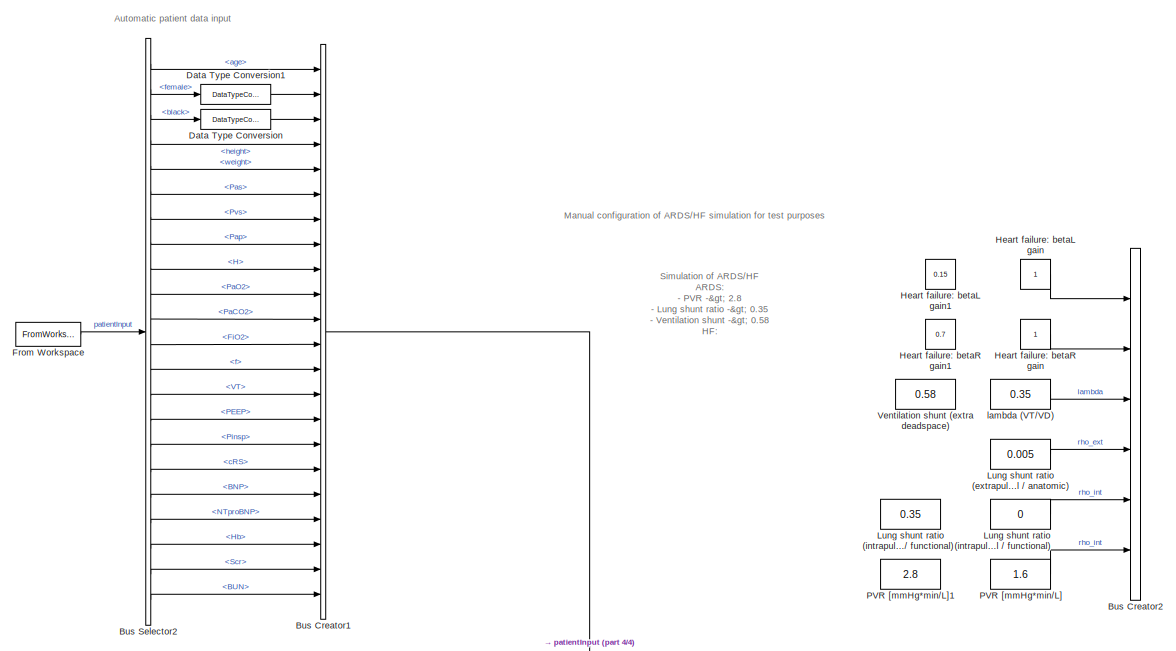
[diagram: root canvas - part 1/4, top left region]
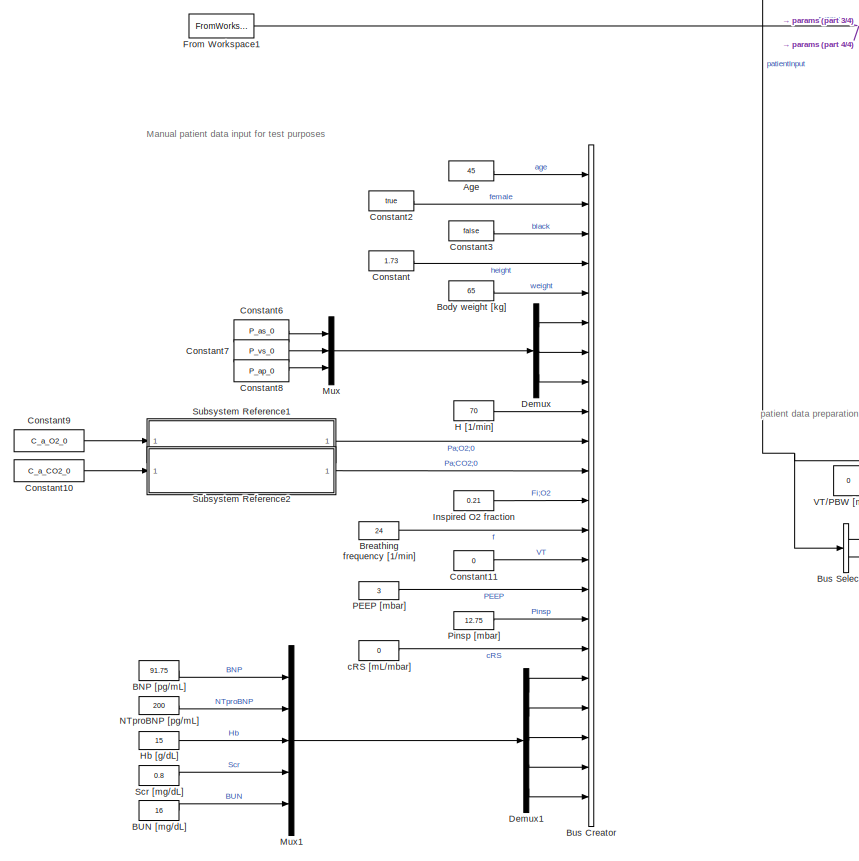
[diagram: root canvas - part 2/4, middle left region]
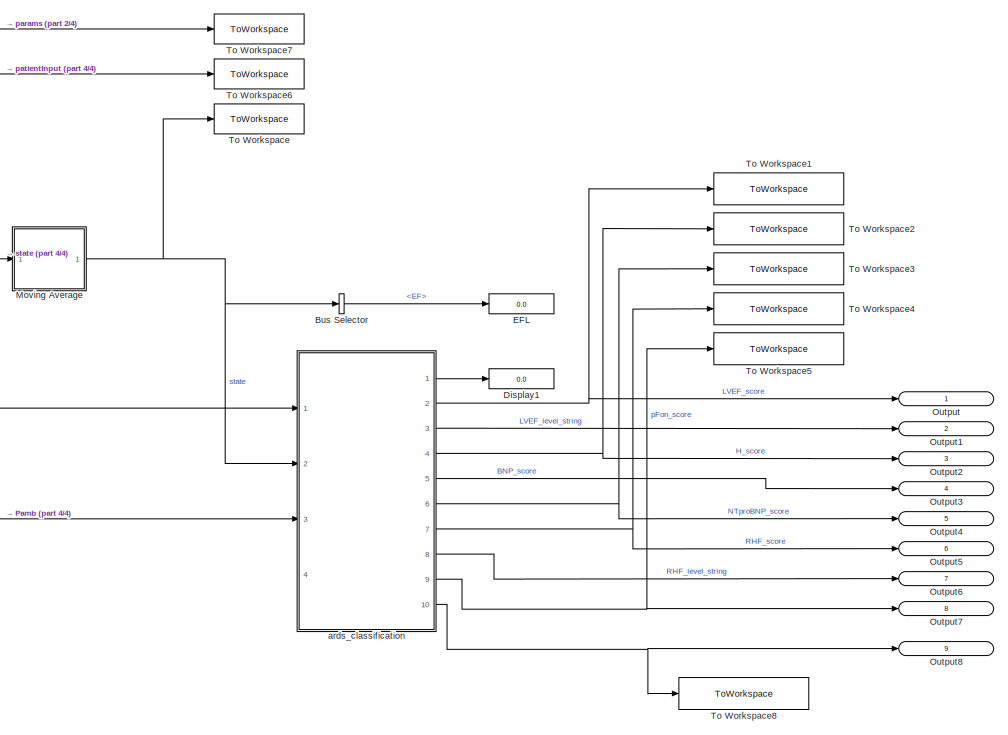
[diagram: root canvas - part 3/4, bottom right region]
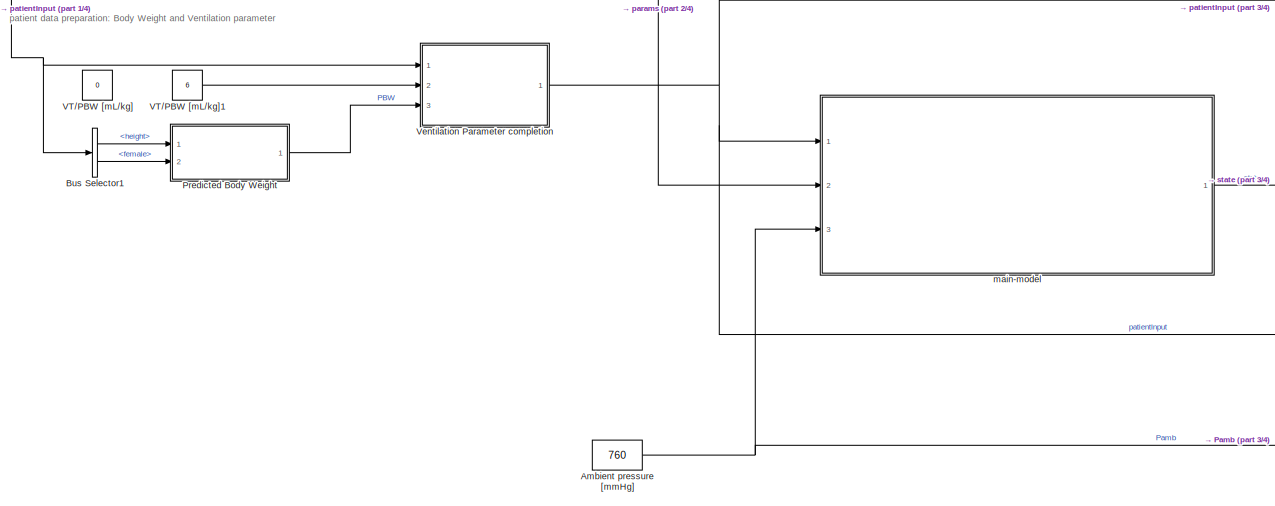
[diagram: root canvas - part 4/4, bottom center region]
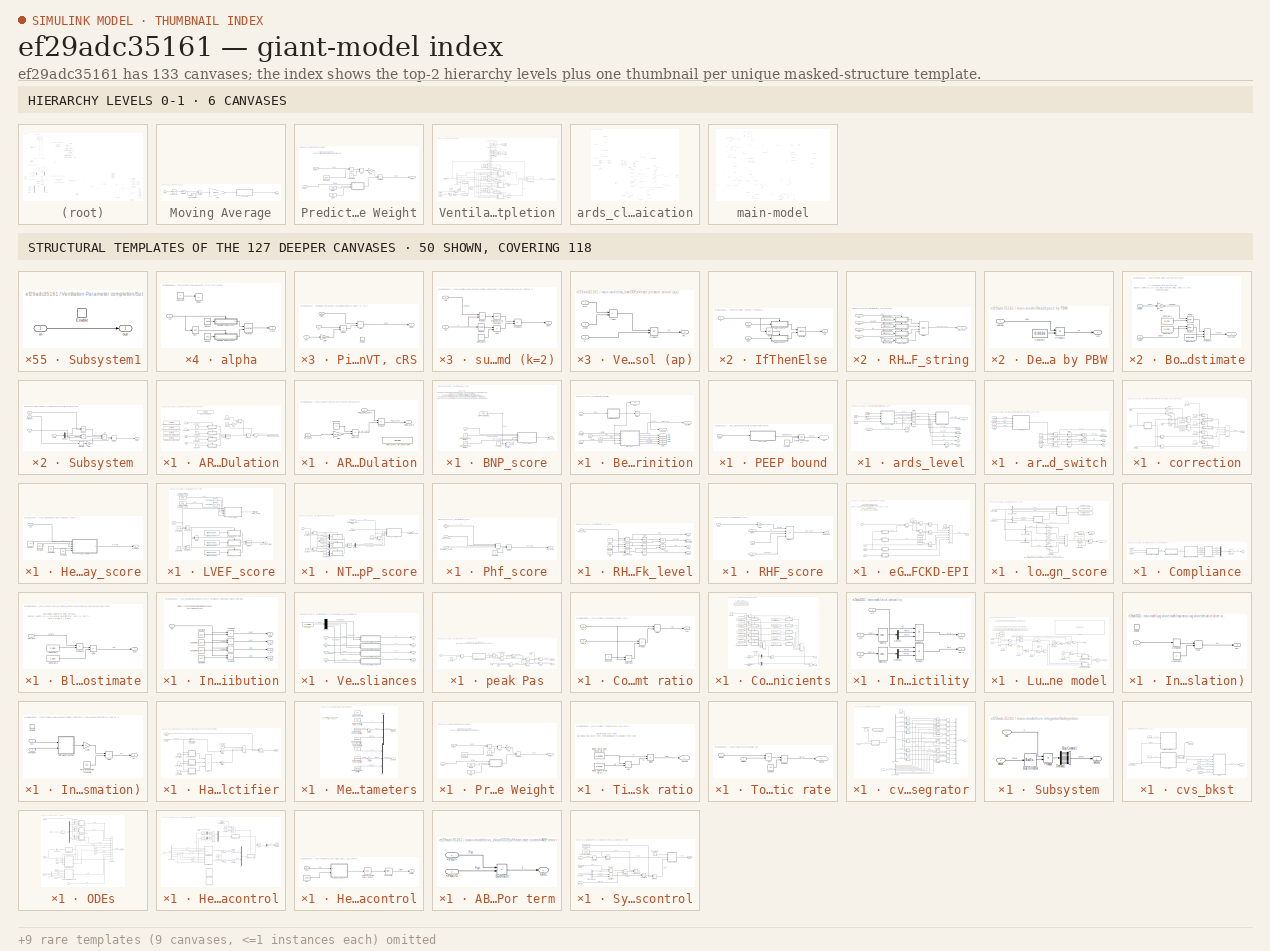
[diagram: thumbnail index - top-2 hierarchy levels (6 canvases) + 50 structural-template representatives of the remaining 127 canvases]
MODEL slx_ef29adc35161
KIND model
CONFIG AbsTol = auto
CONFIG EnableMultiTasking = off
CONFIG FixedStep = auto
CONFIG MaxStep = 0.2
CONFIG MinStep = auto
CONFIG RelTol = 1e-3
CONFIG SampleTimeConstraint = Unconstrained
CONFIG SolverName = VariableStepAuto
CONFIG StartTime = 0.0
CONFIG StopTime = 480
WORKSPACE source: external: MAT-File  (data not in archive)
BLOCK [Constant] Age
  Value = 45
BLOCK [Constant] Ambient pressure [mmHg]
  Value = 760
BLOCK [Constant] BNP [pg//mL]
  Value = 91.75
BLOCK [Constant] BUN [mg//dL]
  Value = 16
BLOCK [Constant] Body weight [kg]
  OutDataTypeStr = double
  Value = 65
BLOCK [Constant] Breathing frequency [1//min]
  Value = 24
BLOCK [BusCreator] Bus Creator
  DisplayOption = bar
  InheritFromInputs = off
  Inputs = 22
  OutDataTypeStr = Bus: PatientInput
  Ports = [22, 1]
BLOCK [BusCreator] Bus Creator1
  DisplayOption = bar
  InheritFromInputs = off
  Inputs = 22
  OutDataTypeStr = Bus: PatientInput
  Ports = [22, 1]
BLOCK [BusCreator] Bus Creator2
  DisplayOption = bar
  InheritFromInputs = off
  Inputs = 6
  OutDataTypeStr = Bus: PatientParams
  Ports = [6, 1]
BLOCK [BusSelector] Bus Selector
  OutputSignals = cvs.LV.EF
  Ports = [1, 1]
BLOCK [BusSelector] Bus Selector1
  OutputSignals = height,female
  Ports = [1, 2]
BLOCK [BusSelector] Bus Selector2
  OutputSignals = age,female,black,height,weight,Pas,Pvs,Pap,H,PaO2,PaCO2,FiO2,f,VT,PEEP,Pinsp,cRS,BNP,NTproBNP,Hb,Scr,BUN
  Ports = [1, 22]
BLOCK [Constant] Constant
  Value = 1.73
BLOCK [Constant] Constant10
  Value = C_a_CO2_0
BLOCK [Constant] Constant11
  Value = 0
BLOCK [Constant] Constant2
  Value = true
BLOCK [Constant] Constant3
  Value = false
BLOCK [Constant] Constant6
  Value = P_as_0
BLOCK [Constant] Constant7
  Value = P_vs_0
BLOCK [Constant] Constant8
  Value = P_ap_0
BLOCK [Constant] Constant9
  Value = C_a_O2_0
BLOCK [DataTypeConversion] Data Type Conversion
  Commented = through
  OutDataTypeStr = double
  RndMeth = Floor
  SaturateOnIntegerOverflow = off
BLOCK [DataTypeConversion] Data Type Conversion1
  Commented = through
  OutDataTypeStr = double
  RndMeth = Floor
  SaturateOnIntegerOverflow = off
BLOCK [Demux] Demux
  Outputs = 3
  Ports = [1, 3]
BLOCK [Demux] Demux1
  Outputs = 5
  Ports = [1, 5]
BLOCK [Display] Display1
  Decimation = 1
  Ports = [1]
BLOCK [Display] EFL
  Decimation = 1
  Ports = [1]
BLOCK [FromWorkspace] From Workspace
  OutDataTypeStr = Bus: PatientInput
  OutputAfterFinalValue = Holding final value
  VariableName = ptin
BLOCK [FromWorkspace] From Workspace1
  OutDataTypeStr = Bus: PatientParams
  OutputAfterFinalValue = Holding final value
  VariableName = ptpars
BLOCK [Constant] H [1//min]
  Value = 70
BLOCK [Constant] Hb [g//dL]
  Value = 15
BLOCK [Constant] Heart failure: betaL gain
BLOCK [Constant] Heart failure: betaL gain1
  Value = 0.15
BLOCK [Constant] Heart failure: betaR gain
BLOCK [Constant] Heart failure: betaR gain1
  Value = 0.7
BLOCK [Constant] Inspired O2 fraction
  Value = 0.21
BLOCK [Constant] Lung shunt ratio (extrapulmonal // anatomic)
  Value = 0.005
BLOCK [Constant] Lung shunt ratio (intrapulmonal // functional)
  Value = 0
BLOCK [Constant] Lung shunt ratio (intrapulmonal // functional)1
  Value = 0.35
BLOCK [SubSystem] Moving Average
  Commented = through
  Ports = [1, 1]
  RequestExecContextInheritance = off
BLOCK [BusToVector] Moving Average/Bus to Vector
BLOCK [Gain] Moving Average/Gain
  Gain = 1/moving_average_period
BLOCK [Integrator] Moving Average/Integrator
  Ports = [1, 1]
BLOCK [SubSystem] Moving Average/Subsystem
  Ports = [1, 1]
  ReferencedSubsystem = patient_state_to_bus
  RequestExecContextInheritance = off
BLOCK [Sum] Moving Average/Subtract
  IconShape = rectangular
  Inputs = +-
  Ports = [2, 1]
BLOCK [TransportDelay] Moving Average/Transport Delay
  DelayTime = moving_average_period
  Ports = [1, 1]
BLOCK [Inport] Moving Average/state
BLOCK [Outport] Moving Average/state*
  OutDataTypeStr = Bus: PatientState
BLOCK [Mux] Mux
  DisplayOption = bar
  Inputs = 3
  Ports = [3, 1]
BLOCK [Mux] Mux1
  DisplayOption = bar
  Inputs = 5
  Ports = [5, 1]
BLOCK [Constant] NTproBNP [pg//mL]
  Value = 200
BLOCK [Outport] Output
  IconDisplay = Signal name
BLOCK [Outport] Output1
  IconDisplay = Signal name
  Port = 2
BLOCK [Outport] Output2
  IconDisplay = Signal name
  Port = 3
BLOCK [Outport] Output3
  IconDisplay = Signal name
  Port = 4
BLOCK [Outport] Output4
  IconDisplay = Signal name
  Port = 5
BLOCK [Outport] Output5
  IconDisplay = Signal name
  Port = 6
BLOCK [Outport] Output6
  IconDisplay = Signal name
  Port = 7
BLOCK [Outport] Output7
  IconDisplay = Signal name
  Port = 8
BLOCK [Outport] Output8
  IconDisplay = Signal name
  Port = 9
BLOCK [Constant] PEEP [mbar]
  Value = 3
BLOCK [Constant] PVR [mmHg*min//L]
  Value = 1.6
BLOCK [Constant] PVR [mmHg*min//L]1
  Value = 2.8
BLOCK [Constant] Pinsp [mbar]
  Value = 12.75
BLOCK [SubSystem] Predicted Body Weight
  Ports = [2, 1]
  RequestExecContextInheritance = off
  TreatAsAtomicUnit = on
BLOCK [Sum] Predicted Body Weight/Add4
  IconShape = rectangular
  Inputs = +-
  Ports = [2, 1]
BLOCK [Constant] Predicted Body Weight/Constant1
  Value = 1.524
BLOCK [Constant] Predicted Body Weight/Constant3
  Value = 0
BLOCK [Gain] Predicted Body Weight/Gain
  Gain = 91
BLOCK [SubSystem] Predicted Body Weight/IfThenElse
  Ports = [3, 1]
  RequestExecContextInheritance = off
BLOCK [Merge] Predicted Body Weight/IfThenElse/Merge
  Ports = [2, 1]
BLOCK [Logic] Predicted Body Weight/IfThenElse/NOT
  AllPortsSameDT = off
  IconShape = distinctive
  Operator = NOT
  OutDataTypeStr = boolean
  Ports = [1, 1]
BLOCK [SubSystem] Predicted Body Weight/IfThenElse/Subsystem1
  Ports = [1, 1, 1]
  RequestExecContextInheritance = off
BLOCK [EnablePort] Predicted Body Weight/IfThenElse/Subsystem1/Enable
  Ports = []
BLOCK [Inport] Predicted Body Weight/IfThenElse/Subsystem1/in
BLOCK [Outport] Predicted Body Weight/IfThenElse/Subsystem1/out
BLOCK [SubSystem] Predicted Body Weight/IfThenElse/Subsystem2
  Ports = [1, 1, 1]
  RequestExecContextInheritance = off
BLOCK [EnablePort] Predicted Body Weight/IfThenElse/Subsystem2/Enable
  Ports = []
BLOCK [Inport] Predicted Body Weight/IfThenElse/Subsystem2/in
BLOCK [Outport] Predicted Body Weight/IfThenElse/Subsystem2/out
BLOCK [Inport] Predicted Body Weight/IfThenElse/else
  Port = 3
BLOCK [Inport] Predicted Body Weight/IfThenElse/if
  OutDataTypeStr = boolean
BLOCK [Outport] Predicted Body Weight/IfThenElse/out
BLOCK [Inport] Predicted Body Weight/IfThenElse/then
  Port = 2
BLOCK [Inport] Predicted Body Weight/Input
  IconDisplay = Signal name
  OutDataTypeStr = boolean
  Port = 2
BLOCK [MinMax] Predicted Body Weight/Max
  Function = max
  Inputs = 2
  Ports = [2, 1]
BLOCK [Sum] Predicted Body Weight/Subtract1
  IconShape = rectangular
  Ports = [2, 1]
BLOCK [Outport] Predicted Body Weight/Weight
  IconDisplay = Signal name
  Unit = kg
BLOCK [Constant] Predicted Body Weight/female
  Value = 45.5
BLOCK [Inport] Predicted Body Weight/height
  IconDisplay = Signal name
  Unit = m
BLOCK [Constant] Predicted Body Weight/male
  Value = 50
BLOCK [Constant] Scr [mg//dL]
  Value = 0.8
BLOCK [SubSystem] Subsystem Reference1
  Ports = [1, 1]
  ReferencedSubsystem = O2_dissociation_inv
  RequestExecContextInheritance = off
BLOCK [SubSystem] Subsystem Reference2
  Ports = [1, 1]
  ReferencedSubsystem = CO2_dissociation_inv
  RequestExecContextInheritance = off
BLOCK [ToWorkspace] To Workspace
  FixptAsFi = on
  MaxDataPoints = inf
  Ports = [1]
  SampleTime = -1
  SaveFormat = Timeseries
  VariableName = ptstate
BLOCK [ToWorkspace] To Workspace1
  FixptAsFi = on
  MaxDataPoints = inf
  Ports = [1]
  SampleTime = -1
  SaveFormat = Timeseries
  VariableName = LVEF_score
BLOCK [ToWorkspace] To Workspace2
  FixptAsFi = on
  MaxDataPoints = inf
  Ports = [1]
  SampleTime = -1
  SaveFormat = Timeseries
  VariableName = H_score
BLOCK [ToWorkspace] To Workspace3
  FixptAsFi = on
  MaxDataPoints = inf
  Ports = [1]
  SampleTime = -1
  SaveFormat = Timeseries
  VariableName = NTproBNP_score
BLOCK [ToWorkspace] To Workspace4
  FixptAsFi = on
  MaxDataPoints = inf
  Ports = [1]
  SampleTime = -1
  SaveFormat = Timeseries
  VariableName = RHF_score
BLOCK [ToWorkspace] To Workspace5
  FixptAsFi = on
  MaxDataPoints = inf
  Ports = [1]
  SampleTime = -1
  SaveFormat = Timeseries
  VariableName = logFon_score
BLOCK [ToWorkspace] To Workspace6
  FixptAsFi = on
  MaxDataPoints = inf
  Ports = [1]
  SampleTime = -1
  SaveFormat = Timeseries
  VariableName = ptin
BLOCK [ToWorkspace] To Workspace7
  FixptAsFi = on
  MaxDataPoints = inf
  Ports = [1]
  SampleTime = -1
  SaveFormat = Timeseries
  VariableName = ptpars
BLOCK [ToWorkspace] To Workspace8
  FixptAsFi = on
  MaxDataPoints = inf
  Ports = [1]
  SampleTime = -1
  SaveFormat = Timeseries
  VariableName = Phf_score
BLOCK [Constant] VT//PBW [mL//kg]
  Value = 0
BLOCK [Constant] VT//PBW [mL//kg]1
  Value = 6
BLOCK [SubSystem] Ventilation Parameter completion
  Ports = [3, 1]
  RequestExecContextInheritance = off
BLOCK [Logic] Ventilation Parameter completion/AND
  AllPortsSameDT = off
  IconShape = distinctive
  OutDataTypeStr = boolean
  Ports = [2, 1]
BLOCK [Logic] Ventilation Parameter completion/AND1
  AllPortsSameDT = off
  IconShape = distinctive
  OutDataTypeStr = boolean
  Ports = [2, 1]
BLOCK [Logic] Ventilation Parameter completion/AND2
  AllPortsSameDT = off
  IconShape = distinctive
  OutDataTypeStr = boolean
  Ports = [2, 1]
BLOCK [Assertion] Ventilation Parameter completion/Assertion
BLOCK [Assertion] Ventilation Parameter completion/Assertion2
BLOCK [BusAssignment] Ventilation Parameter completion/Bus Assignment
  AssignedSignals = VT,cRS,Pinsp
  Ports = [4, 1]
BLOCK [BusSelector] Ventilation Parameter completion/Bus Selector
  OutputSignals = PEEP,Pinsp,cRS,VT
  Ports = [1, 4]
BLOCK [Constant] Ventilation Parameter completion/Constant
  Value = 0
BLOCK [Constant] Ventilation Parameter completion/Constant1
  Value = 0
BLOCK [Constant] Ventilation Parameter completion/Constant2
  Value = 0
BLOCK [Constant] Ventilation Parameter completion/Constant3
  Value = 0
BLOCK [RelationalOperator] Ventilation Parameter completion/Equal
  InputSameDT = off
  Operator = <=
  OutDataTypeStr = boolean
  Ports = [2, 1]
  RndMeth = Simplest
BLOCK [RelationalOperator] Ventilation Parameter completion/Equal1
  InputSameDT = off
  Operator = <=
  OutDataTypeStr = boolean
  Ports = [2, 1]
  RndMeth = Simplest
BLOCK [RelationalOperator] Ventilation Parameter completion/Equal2
  InputSameDT = off
  Operator = <=
  OutDataTypeStr = boolean
  Ports = [2, 1]
  RndMeth = Simplest
BLOCK [Gain] Ventilation Parameter completion/Gain
  Gain = 0.001
BLOCK [Inport] Ventilation Parameter completion/Input4
  IconDisplay = Signal name
  OutDataTypeStr = Bus: PatientInput
BLOCK [Merge] Ventilation Parameter completion/Merge
  Ports = [2, 1]
BLOCK [Merge] Ventilation Parameter completion/Merge1
  Ports = [2, 1]
BLOCK [Merge] Ventilation Parameter completion/Merge2
  Ports = [2, 1]
BLOCK [Merge] Ventilation Parameter completion/Merge3
  Ports = [2, 1]
BLOCK [Logic] Ventilation Parameter completion/NOR
  AllPortsSameDT = off
  IconShape = distinctive
  Inputs = 3
  Operator = NOR
  OutDataTypeStr = boolean
  Ports = [3, 1]
BLOCK [Logic] Ventilation Parameter completion/NOT
  AllPortsSameDT = off
  IconShape = distinctive
  Operator = NOT
  OutDataTypeStr = boolean
  Ports = [1, 1]
BLOCK [RelationalOperator] Ventilation Parameter completion/NotEqual
  InputSameDT = off
  Operator = >
  OutDataTypeStr = boolean
  Ports = [2, 1]
  RndMeth = Simplest
BLOCK [RelationalOperator] Ventilation Parameter completion/NotEqual1
  InputSameDT = off
  Operator = >
  OutDataTypeStr = boolean
  Ports = [2, 1]
  RndMeth = Simplest
BLOCK [RelationalOperator] Ventilation Parameter completion/NotEqual2
  InputSameDT = off
  Operator = >
  OutDataTypeStr = boolean
  Ports = [2, 1]
  RndMeth = Simplest
BLOCK [RelationalOperator] Ventilation Parameter completion/NotEqual3
  InputSameDT = off
  Operator = ~=
  OutDataTypeStr = boolean
  Ports = [2, 1]
  RndMeth = Simplest
BLOCK [Logic] Ventilation Parameter completion/OR
  AllPortsSameDT = off
  IconShape = distinctive
  Inputs = 3
  Operator = OR
  OutDataTypeStr = boolean
  Ports = [3, 1]
BLOCK [Outport] Ventilation Parameter completion/Output1
  IconDisplay = Signal name
  OutDataTypeStr = Bus: PatientInput
BLOCK [SubSystem] Ventilation Parameter completion/Pinsp by PEEP, VT, cRS
  Ports = [3, 1, 1]
  RequestExecContextInheritance = off
BLOCK [Sum] Ventilation Parameter completion/Pinsp by PEEP, VT, cRS/Add
  IconShape = rectangular
  Ports = [2, 1]
BLOCK [Product] Ventilation Parameter completion/Pinsp by PEEP, VT, cRS/Divide1
  Inputs = */
  Ports = [2, 1]
BLOCK [EnablePort] Ventilation Parameter completion/Pinsp by PEEP, VT, cRS/Enable
  Ports = []
BLOCK [Gain] Ventilation Parameter completion/Pinsp by PEEP, VT, cRS/Gain
  Gain = 0.001
BLOCK [Inport] Ventilation Parameter completion/Pinsp by PEEP, VT, cRS/PEEP
  Unit = mbar
BLOCK [Outport] Ventilation Parameter completion/Pinsp by PEEP, VT, cRS/Pinsp
  Unit = mbar
BLOCK [Inport] Ventilation Parameter completion/Pinsp by PEEP, VT, cRS/VT
  Port = 2
  Unit = L
BLOCK [Inport] Ventilation Parameter completion/Pinsp by PEEP, VT, cRS/cRS
  Port = 3
  Unit = mL/mbar
BLOCK [Product] Ventilation Parameter completion/Product
  Ports = [2, 1]
BLOCK [SubSystem] Ventilation Parameter completion/Subsystem1
  Ports = [1, 1, 1]
  RequestExecContextInheritance = off
BLOCK [EnablePort] Ventilation Parameter completion/Subsystem1/Enable
  Ports = []
BLOCK [Inport] Ventilation Parameter completion/Subsystem1/in
BLOCK [Outport] Ventilation Parameter completion/Subsystem1/out
BLOCK [SubSystem] Ventilation Parameter completion/Subsystem2
  Ports = [1, 1, 1]
  RequestExecContextInheritance = off
BLOCK [EnablePort] Ventilation Parameter completion/Subsystem2/Enable
  Ports = []
BLOCK [Inport] Ventilation Parameter completion/Subsystem2/in
BLOCK [Outport] Ventilation Parameter completion/Subsystem2/out
BLOCK [SubSystem] Ventilation Parameter completion/Subsystem3
  Ports = [1, 1, 1]
  RequestExecContextInheritance = off
BLOCK [EnablePort] Ventilation Parameter completion/Subsystem3/Enable
  Ports = []
BLOCK [Inport] Ventilation Parameter completion/Subsystem3/in
BLOCK [Outport] Ventilation Parameter completion/Subsystem3/out
BLOCK [SubSystem] Ventilation Parameter completion/Subsystem4
  Ports = [1, 1, 1]
  RequestExecContextInheritance = off
BLOCK [EnablePort] Ventilation Parameter completion/Subsystem4/Enable
  Ports = []
BLOCK [Inport] Ventilation Parameter completion/Subsystem4/in
BLOCK [Outport] Ventilation Parameter completion/Subsystem4/out
BLOCK [SubSystem] Ventilation Parameter completion/Subsystem5
  Ports = [1, 1, 1]
  RequestExecContextInheritance = off
BLOCK [EnablePort] Ventilation Parameter completion/Subsystem5/Enable
  Ports = []
BLOCK [Inport] Ventilation Parameter completion/Subsystem5/in
BLOCK [Outport] Ventilation Parameter completion/Subsystem5/out
BLOCK [SubSystem] Ventilation Parameter completion/VT by PEEP, Pinsp, cRS
  Ports = [3, 1, 1]
  RequestExecContextInheritance = off
BLOCK [EnablePort] Ventilation Parameter completion/VT by PEEP, Pinsp, cRS/Enable
  Ports = []
BLOCK [Gain] Ventilation Parameter completion/VT by PEEP, Pinsp, cRS/Gain
  Gain = 0.001
BLOCK [Inport] Ventilation Parameter completion/VT by PEEP, Pinsp, cRS/PEEP
  Unit = mbar
BLOCK [Inport] Ventilation Parameter completion/VT by PEEP, Pinsp, cRS/Pinsp
  Port = 2
  Unit = mbar
BLOCK [Product] Ventilation Parameter completion/VT by PEEP, Pinsp, cRS/Product
  Ports = [2, 1]
BLOCK [Sum] Ventilation Parameter completion/VT by PEEP, Pinsp, cRS/Subtract
  IconShape = rectangular
  Inputs = -+
  Ports = [2, 1]
BLOCK [Outport] Ventilation Parameter completion/VT by PEEP, Pinsp, cRS/VT
  Unit = L
BLOCK [Inport] Ventilation Parameter completion/VT by PEEP, Pinsp, cRS/cRS
  Port = 3
  Unit = mL/mbar
BLOCK [Inport] Ventilation Parameter completion/VT per PBW [mL//kg]
  IconDisplay = Signal name
  Port = 2
  Unit = mL/kg
BLOCK [Inport] Ventilation Parameter completion/VT per PBW [mL//kg]1
  IconDisplay = Signal name
  Port = 3
  Unit = kg
BLOCK [SubSystem] Ventilation Parameter completion/cRS by PEEP, Pinsp, VT
  Ports = [3, 1, 1]
  RequestExecContextInheritance = off
BLOCK [Product] Ventilation Parameter completion/cRS by PEEP, Pinsp, VT/Divide
  Inputs = */
  Ports = [2, 1]
BLOCK [EnablePort] Ventilation Parameter completion/cRS by PEEP, Pinsp, VT/Enable
  Ports = []
BLOCK [Gain] Ventilation Parameter completion/cRS by PEEP, Pinsp, VT/Gain
  Gain = 1000
BLOCK [Inport] Ventilation Parameter completion/cRS by PEEP, Pinsp, VT/PEEP
  Unit = mbar
BLOCK [Inport] Ventilation Parameter completion/cRS by PEEP, Pinsp, VT/Pinsp
  Port = 2
  Unit = mbar
BLOCK [Sum] Ventilation Parameter completion/cRS by PEEP, Pinsp, VT/Subtract1
  IconShape = rectangular
  Inputs = +-
  Ports = [2, 1]
BLOCK [Inport] Ventilation Parameter completion/cRS by PEEP, Pinsp, VT/VT
  Port = 3
  Unit = L
BLOCK [Outport] Ventilation Parameter completion/cRS by PEEP, Pinsp, VT/cRS
  Unit = mL/mbar
BLOCK [Constant] Ventilation shunt (extra deadspace)
  Value = 0.58
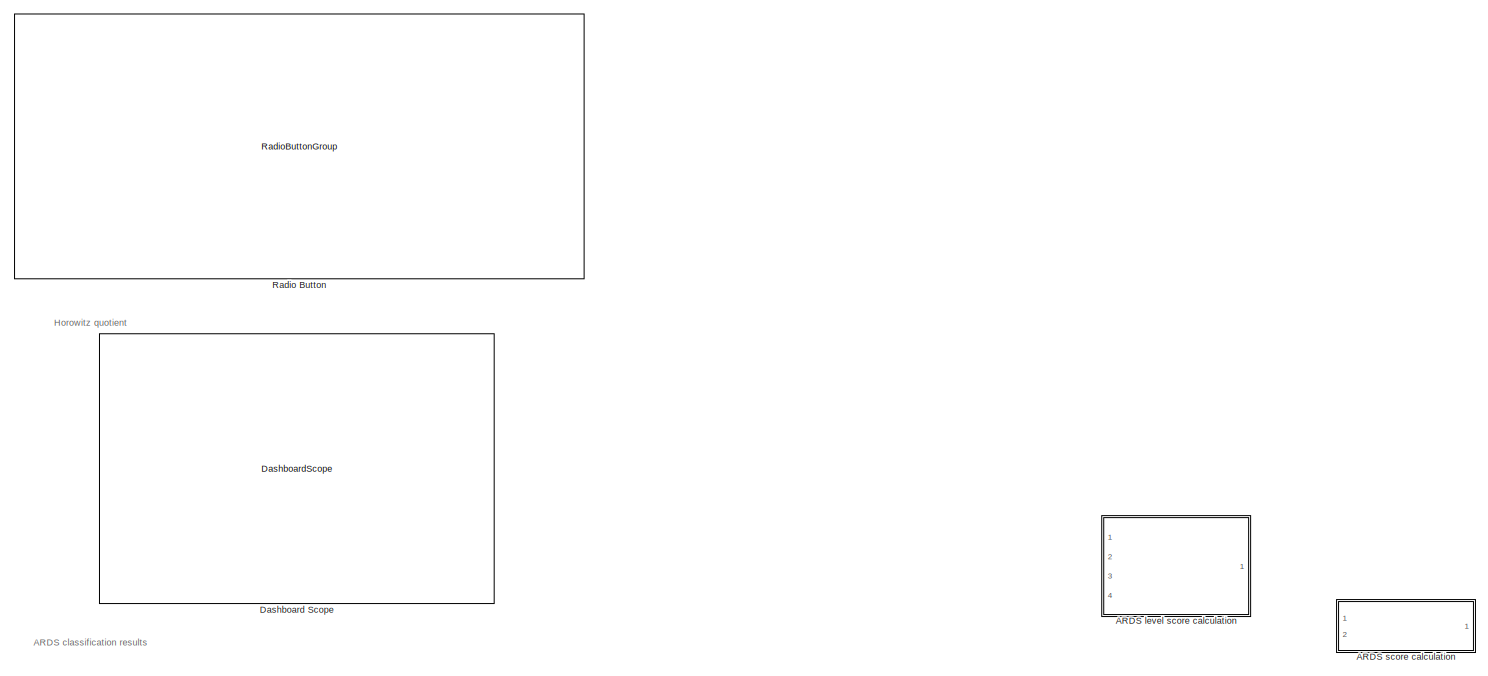
[diagram: ards_classification - part 1/4, full width, top band]
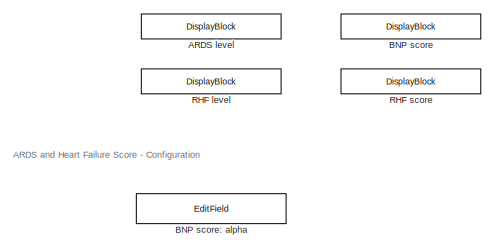
[diagram: ards_classification - part 2/4, middle left region]
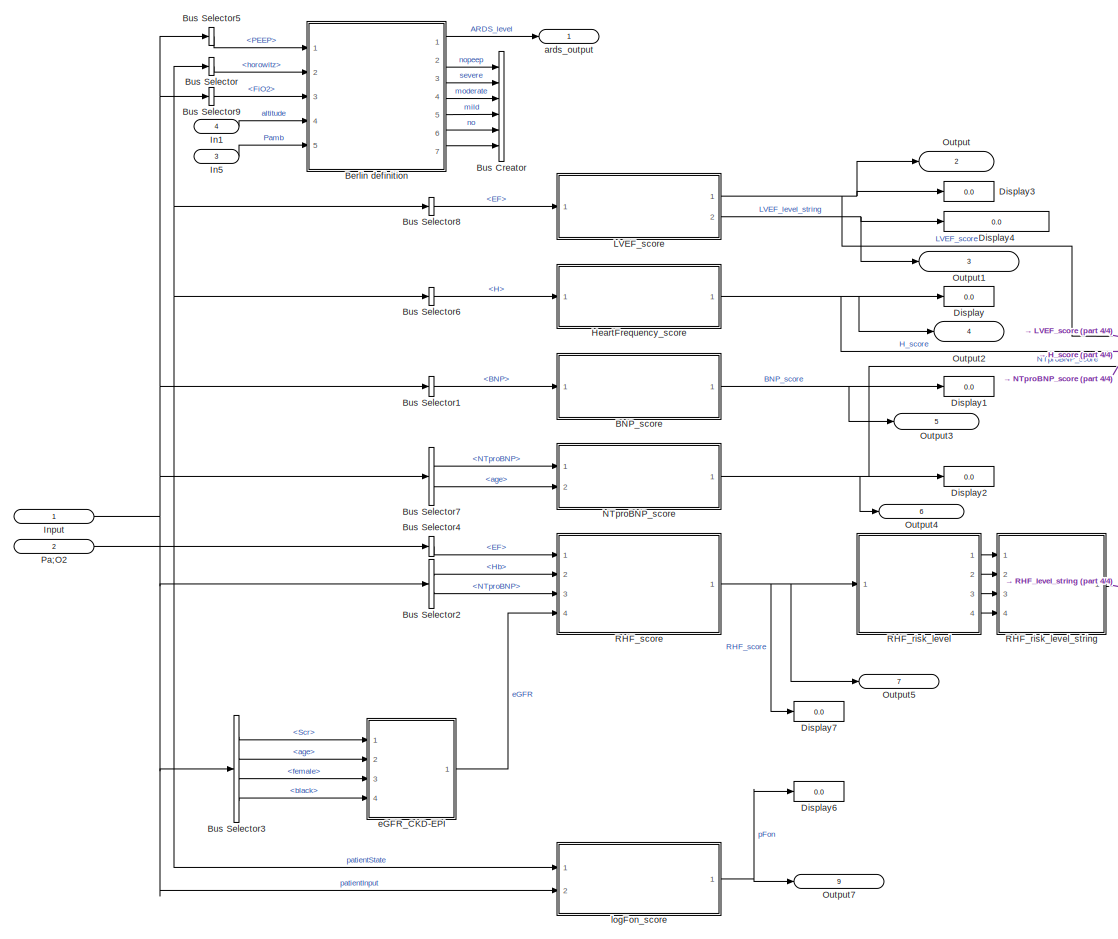
[diagram: ards_classification - part 3/4, bottom center region]
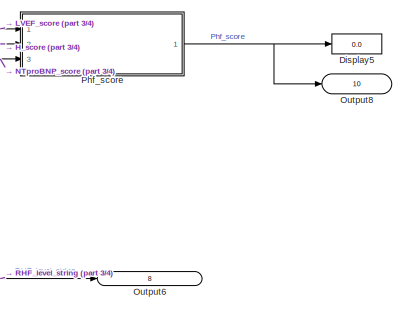
[diagram: ards_classification - part 4/4, bottom right region]
BLOCK [SubSystem] ards_classification
  Ports = [4, 10]
  RequestExecContextInheritance = off
BLOCK [DisplayBlock] ards_classification/ARDS level
  Format = short
  LabelPosition = Hide
  Transparency = 1
BLOCK [SubSystem] ards_classification/ARDS level score calculation
  Commented = on
  Ports = [4, 1]
  RequestExecContextInheritance = off
BLOCK [EditField] ards_classification/ARDS level score calculation/ARDS level score: mild ARDS
  Alignment = Center
  LabelPosition = Hide
  ShowInitialText = on
BLOCK [EditField] ards_classification/ARDS level score calculation/ARDS level score: moderate ARDS
  Alignment = Center
  LabelPosition = Hide
  ShowInitialText = on
BLOCK [EditField] ards_classification/ARDS level score calculation/ARDS level score: no ARDS
  Alignment = Center
  LabelPosition = Hide
  ShowInitialText = on
BLOCK [EditField] ards_classification/ARDS level score calculation/ARDS level score: severe ARDS
  Alignment = Center
  LabelPosition = Hide
  ShowInitialText = on
BLOCK [EditField] ards_classification/ARDS level score calculation/ARDS score: alpha
  Alignment = Center
  LabelPosition = Hide
  ShowInitialText = on
BLOCK [Sum] ards_classification/ARDS level score calculation/Add
  IconShape = rectangular
  Ports = [2, 1]
BLOCK [Constant] ards_classification/ARDS level score calculation/Constant
BLOCK [Constant] ards_classification/ARDS level score calculation/Constant1
BLOCK [Constant] ards_classification/ARDS level score calculation/Constant2
  Value = 0.9
BLOCK [Constant] ards_classification/ARDS level score calculation/Constant3
  Value = 0.7
BLOCK [Constant] ards_classification/ARDS level score calculation/Constant4
  Value = 0
BLOCK [Gain] ards_classification/ARDS level score calculation/Gain
  Gain = 2
BLOCK [Merge] ards_classification/ARDS level score calculation/Merge
  Inputs = 4
  Ports = [4, 1]
BLOCK [Product] ards_classification/ARDS level score calculation/Product
  Ports = [2, 1]
BLOCK [SubSystem] ards_classification/ARDS level score calculation/Subsystem
  Ports = [1, 1, 1]
  RequestExecContextInheritance = off
BLOCK [EnablePort] ards_classification/ARDS level score calculation/Subsystem/Enable
  Ports = []
BLOCK [Inport] ards_classification/ARDS level score calculation/Subsystem/in
BLOCK [Outport] ards_classification/ARDS level score calculation/Subsystem/out
BLOCK [SubSystem] ards_classification/ARDS level score calculation/Subsystem1
  Ports = [1, 1, 1]
  RequestExecContextInheritance = off
BLOCK [EnablePort] ards_classification/ARDS level score calculation/Subsystem1/Enable
  Ports = []
BLOCK [Inport] ards_classification/ARDS level score calculation/Subsystem1/in
BLOCK [Outport] ards_classification/ARDS level score calculation/Subsystem1/out
BLOCK [SubSystem] ards_classification/ARDS level score calculation/Subsystem2
  Ports = [1, 1, 1]
  RequestExecContextInheritance = off
BLOCK [EnablePort] ards_classification/ARDS level score calculation/Subsystem2/Enable
  Ports = []
BLOCK [Inport] ards_classification/ARDS level score calculation/Subsystem2/in
BLOCK [Outport] ards_classification/ARDS level score calculation/Subsystem2/out
BLOCK [SubSystem] ards_classification/ARDS level score calculation/Subsystem3
  Ports = [1, 1, 1]
  RequestExecContextInheritance = off
BLOCK [EnablePort] ards_classification/ARDS level score calculation/Subsystem3/Enable
  Ports = []
BLOCK [Inport] ards_classification/ARDS level score calculation/Subsystem3/in
BLOCK [Outport] ards_classification/ARDS level score calculation/Subsystem3/out
BLOCK [Sum] ards_classification/ARDS level score calculation/Subtract
  IconShape = rectangular
  Inputs = +-
  Ports = [2, 1]
BLOCK [Constant] ards_classification/ARDS level score calculation/alpha
  Value = 0.05
BLOCK [Outport] ards_classification/ARDS level score calculation/ards_level_score
  IconDisplay = Signal name
  Unit = 1
BLOCK [Inport] ards_classification/ARDS level score calculation/mild
  Port = 3
BLOCK [Inport] ards_classification/ARDS level score calculation/moderate
  Port = 2
BLOCK [Inport] ards_classification/ARDS level score calculation/no
  Port = 4
BLOCK [Inport] ards_classification/ARDS level score calculation/severe
BLOCK [SubSystem] ards_classification/ARDS score calculation
  Commented = on
  Ports = [2, 1]
  RequestExecContextInheritance = off
BLOCK [EditField] ards_classification/ARDS score calculation/ARDS score: HF score gain
  Alignment = Center
  LabelPosition = Hide
  ShowInitialText = on
BLOCK [Inport] ards_classification/ARDS score calculation/ARDS_level_score
  Unit = 1
BLOCK [Outport] ards_classification/ARDS score calculation/ARDS_score
  Unit = 1
BLOCK [Constant] ards_classification/ARDS score calculation/Constant
BLOCK [Gain] ards_classification/ARDS score calculation/Gain
  Gain = 0.75
BLOCK [Inport] ards_classification/ARDS score calculation/HF_score
  Port = 2
  Unit = 1
BLOCK [Product] ards_classification/ARDS score calculation/Product
  Ports = [2, 1]
BLOCK [Sum] ards_classification/ARDS score calculation/Subtract
  IconShape = rectangular
  Inputs = +-
  Ports = [2, 1]
BLOCK [DisplayBlock] ards_classification/BNP score
  Format = short
  LabelPosition = Hide
  Transparency = 1
BLOCK [EditField] ards_classification/BNP score: alpha
  Alignment = Center
  LabelPosition = Hide
  ShowInitialText = on
BLOCK [SubSystem] ards_classification/BNP_score
  Ports = [1, 1]
  RequestExecContextInheritance = off
BLOCK [Inport] ards_classification/BNP_score/BNP
  Unit = pg/mL
BLOCK [Constant] ards_classification/BNP_score/BNP rule-in bound [pg//mL]
  Value = 400
BLOCK [Constant] ards_classification/BNP_score/BNP rule-out bound [pg//mL]
  Value = 35
BLOCK [Constant] ards_classification/BNP_score/BNP score: alpha
  Value = 0.05
BLOCK [Outport] ards_classification/BNP_score/BNPscore
  Unit = 1
BLOCK [Constant] ards_classification/BNP_score/Constant
BLOCK [SubSystem] ards_classification/BNP_score/Subsystem2
  Ports = [5, 1]
  ReferencedSubsystem = linear_slope_score
  RequestExecContextInheritance = off
BLOCK [Sum] ards_classification/BNP_score/Subtract
  IconShape = rectangular
  Inputs = +-
  Ports = [2, 1]
BLOCK [SubSystem] ards_classification/Berlin definition
  Ports = [5, 7]
  RequestExecContextInheritance = off
BLOCK [Display] ards_classification/Berlin definition/Display
  Decimation = 1
  Ports = [1]
BLOCK [Inport] ards_classification/Berlin definition/Input
  IconDisplay = Signal name
  Port = 3
  Unit = 1
BLOCK [Inport] ards_classification/Berlin definition/Input1
  IconDisplay = Signal name
  Port = 4
  Unit = m
BLOCK [Logic] ards_classification/Berlin definition/NOT
  AllPortsSameDT = off
  IconShape = distinctive
  Operator = NOT
  OutDataTypeStr = boolean
  Ports = [1, 1]
BLOCK [Outport] ards_classification/Berlin definition/Out1
  IconDisplay = Signal name
  Port = 7
BLOCK [Outport] ards_classification/Berlin definition/Out3
  IconDisplay = Signal name
  Port = 3
BLOCK [Outport] ards_classification/Berlin definition/Out4
  IconDisplay = Signal name
  Port = 4
BLOCK [Outport] ards_classification/Berlin definition/Out5
  IconDisplay = Signal name
  Port = 5
BLOCK [Outport] ards_classification/Berlin definition/Out6
  IconDisplay = Signal name
  Port = 6
BLOCK [Inport] ards_classification/Berlin definition/PEEP
  IconDisplay = Signal name
  Unit = mbar
BLOCK [SubSystem] ards_classification/Berlin definition/PEEP bound
  Ports = [1, 1]
  RequestExecContextInheritance = off
BLOCK [Constant] ards_classification/Berlin definition/PEEP bound/Constant
  Value = 5
BLOCK [RelationalOperator] ards_classification/Berlin definition/PEEP bound/GreaterThanOrEqual
  InputSameDT = off
  OutDataTypeStr = boolean
  Ports = [2, 1]
  RndMeth = Simplest
BLOCK [Outport] ards_classification/Berlin definition/PEEP bound/Out1
  IconDisplay = Signal name
  OutDataTypeStr = boolean
BLOCK [Inport] ards_classification/Berlin definition/PEEP bound/PEEP
  Unit = mbar
BLOCK [SubSystem] ards_classification/Berlin definition/PEEP bound/Subsystem2
  Ports = [1, 1]
  ReferencedSubsystem = convert_mbar_to_cmh2o
  RequestExecContextInheritance = off
BLOCK [Inport] ards_classification/Berlin definition/Pamb
  IconDisplay = Signal name
  Port = 5
  Unit = mmHg
BLOCK [SubSystem] ards_classification/Berlin definition/ards_level
  Ports = [5, 6]
  RequestExecContextInheritance = off
BLOCK [Logic] ards_classification/Berlin definition/ards_level/AND
  AllPortsSameDT = off
  IconShape = distinctive
  OutDataTypeStr = boolean
  Ports = [2, 1]
BLOCK [Logic] ards_classification/Berlin definition/ards_level/AND1
  AllPortsSameDT = off
  IconShape = distinctive
  OutDataTypeStr = boolean
  Ports = [2, 1]
BLOCK [Logic] ards_classification/Berlin definition/ards_level/AND2
  AllPortsSameDT = off
  IconShape = distinctive
  OutDataTypeStr = boolean
  Ports = [2, 1]
BLOCK [Inport] ards_classification/Berlin definition/ards_level/Fi;O2
  Port = 2
  Unit = 1
BLOCK [Inport] ards_classification/Berlin definition/ards_level/Input
  IconDisplay = Signal name
  Port = 5
BLOCK [Logic] ards_classification/Berlin definition/ards_level/NOT
  AllPortsSameDT = off
  IconShape = distinctive
  Operator = NOT
  OutDataTypeStr = boolean
  Ports = [1, 1]
BLOCK [Logic] ards_classification/Berlin definition/ards_level/NOT1
  AllPortsSameDT = off
  IconShape = distinctive
  Operator = NOT
  OutDataTypeStr = boolean
  Ports = [1, 1]
BLOCK [Logic] ards_classification/Berlin definition/ards_level/OR
  AllPortsSameDT = off
  IconShape = distinctive
  Operator = OR
  OutDataTypeStr = boolean
  Ports = [2, 1]
BLOCK [Outport] ards_classification/Berlin definition/ards_level/Out1
  IconDisplay = Signal name
BLOCK [Inport] ards_classification/Berlin definition/ards_level/Pamb
  Port = 4
  Unit = mmHg
BLOCK [Inport] ards_classification/Berlin definition/ards_level/altitude
  Port = 3
  Unit = m
BLOCK [Outport] ards_classification/Berlin definition/ards_level/ards
  Port = 2
BLOCK [SubSystem] ards_classification/Berlin definition/ards_level/ards_level_string
  Ports = [4, 1]
  RequestExecContextInheritance = off
BLOCK [Inport] ards_classification/Berlin definition/ards_level/ards_level_string/In1
  IconDisplay = Signal name
BLOCK [Inport] ards_classification/Berlin definition/ards_level/ards_level_string/In2
  IconDisplay = Signal name
  Port = 2
BLOCK [Inport] ards_classification/Berlin definition/ards_level/ards_level_string/In3
  IconDisplay = Signal name
  Port = 3
BLOCK [Inport] ards_classification/Berlin definition/ards_level/ards_level_string/In4
  IconDisplay = Signal name
  Port = 4
BLOCK [Merge] ards_classification/Berlin definition/ards_level/ards_level_string/Merge
  Inputs = 4
  Ports = [4, 1]
BLOCK [StringConstant] ards_classification/Berlin definition/ards_level/ards_level_string/String Constant
  String = "severe"
BLOCK [StringConstant] ards_classification/Berlin definition/ards_level/ards_level_string/String Constant1
  String = "moderate"
BLOCK [StringConstant] ards_classification/Berlin definition/ards_level/ards_level_string/String Constant2
  String = "mild"
BLOCK [StringConstant] ards_classification/Berlin definition/ards_level/ards_level_string/String Constant3
  String = "no"
BLOCK [SubSystem] ards_classification/Berlin definition/ards_level/ards_level_string/Subsystem
  Ports = [1, 1, 1]
  RequestExecContextInheritance = off
BLOCK [EnablePort] ards_classification/Berlin definition/ards_level/ards_level_string/Subsystem/Enable
  Ports = []
BLOCK [Inport] ards_classification/Berlin definition/ards_level/ards_level_string/Subsystem/in
BLOCK [Outport] ards_classification/Berlin definition/ards_level/ards_level_string/Subsystem/out
BLOCK [SubSystem] ards_classification/Berlin definition/ards_level/ards_level_string/Subsystem1
  Ports = [1, 1, 1]
  RequestExecContextInheritance = off
BLOCK [EnablePort] ards_classification/Berlin definition/ards_level/ards_level_string/Subsystem1/Enable
  Ports = []
BLOCK [Inport] ards_classification/Berlin definition/ards_level/ards_level_string/Subsystem1/in
BLOCK [Outport] ards_classification/Berlin definition/ards_level/ards_level_string/Subsystem1/out
BLOCK [SubSystem] ards_classification/Berlin definition/ards_level/ards_level_string/Subsystem2
  Ports = [1, 1, 1]
  RequestExecContextInheritance = off
BLOCK [EnablePort] ards_classification/Berlin definition/ards_level/ards_level_string/Subsystem2/Enable
  Ports = []
BLOCK [Inport] ards_classification/Berlin definition/ards_level/ards_level_string/Subsystem2/in
BLOCK [Outport] ards_classification/Berlin definition/ards_level/ards_level_string/Subsystem2/out
BLOCK [SubSystem] ards_classification/Berlin definition/ards_level/ards_level_string/Subsystem3
  Ports = [1, 1, 1]
  RequestExecContextInheritance = off
BLOCK [EnablePort] ards_classification/Berlin definition/ards_level/ards_level_string/Subsystem3/Enable
  Ports = []
BLOCK [Inport] ards_classification/Berlin definition/ards_level/ards_level_string/Subsystem3/in
BLOCK [Outport] ards_classification/Berlin definition/ards_level/ards_level_string/Subsystem3/out
BLOCK [Outport] ards_classification/Berlin definition/ards_level/ards_level_string/ards_level
  IconDisplay = Signal name
BLOCK [SubSystem] ards_classification/Berlin definition/ards_level/ards_level_switch
  Ports = [4, 4]
  RequestExecContextInheritance = off
BLOCK [Logic] ards_classification/Berlin definition/ards_level/ards_level_switch/AND
  AllPortsSameDT = off
  IconShape = distinctive
  OutDataTypeStr = boolean
  Ports = [2, 1]
BLOCK [Logic] ards_classification/Berlin definition/ards_level/ards_level_switch/AND1
  AllPortsSameDT = off
  IconShape = distinctive
  OutDataTypeStr = boolean
  Ports = [2, 1]
BLOCK [RelationalOperator] ards_classification/Berlin definition/ards_level/ards_level_switch/LessThan1
  InputSameDT = off
  Operator = <=
  OutDataTypeStr = boolean
  Ports = [2, 1]
  RndMeth = Simplest
BLOCK [RelationalOperator] ards_classification/Berlin definition/ards_level/ards_level_switch/LessThan2
  InputSameDT = off
  Operator = <=
  OutDataTypeStr = boolean
  Ports = [2, 1]
  RndMeth = Simplest
BLOCK [RelationalOperator] ards_classification/Berlin definition/ards_level/ards_level_switch/LessThan3
  InputSameDT = off
  Operator = <=
  OutDataTypeStr = boolean
  Ports = [2, 1]
  RndMeth = Simplest
BLOCK [Logic] ards_classification/Berlin definition/ards_level/ards_level_switch/NOT
  AllPortsSameDT = off
  IconShape = distinctive
  Operator = NOT
  OutDataTypeStr = boolean
  Ports = [1, 1]
BLOCK [Logic] ards_classification/Berlin definition/ards_level/ards_level_switch/NOT1
  AllPortsSameDT = off
  IconShape = distinctive
  Operator = NOT
  OutDataTypeStr = boolean
  Ports = [1, 1]
BLOCK [Logic] ards_classification/Berlin definition/ards_level/ards_level_switch/NOT2
  AllPortsSameDT = off
  IconShape = distinctive
  Operator = NOT
  OutDataTypeStr = boolean
  Ports = [1, 1]
BLOCK [Inport] ards_classification/Berlin definition/ards_level/ards_level_switch/Pamb
  IconDisplay = Signal name
  Port = 4
  Unit = mmHg
BLOCK [Inport] ards_classification/Berlin definition/ards_level/ards_level_switch/Pamb1
  IconDisplay = Signal name
  Port = 3
  Unit = m
BLOCK [SubSystem] ards_classification/Berlin definition/ards_level/ards_level_switch/correction
  Ports = [4, 1]
  RequestExecContextInheritance = off
BLOCK [Sum] ards_classification/Berlin definition/ards_level/ards_level_switch/correction/Add
  IconShape = rectangular
  Inputs = ++++
  Ports = [4, 1]
BLOCK [Sum] ards_classification/Berlin definition/ards_level/ards_level_switch/correction/Add1
  IconShape = rectangular
  Inputs = ++++
  Ports = [4, 1]
BLOCK [Constant] ards_classification/Berlin definition/ards_level/ards_level_switch/correction/Constant
BLOCK [Constant] ards_classification/Berlin definition/ards_level/ards_level_switch/correction/Constant1
  Value = 2
BLOCK [Constant] ards_classification/Berlin definition/ards_level/ards_level_switch/correction/Constant2
  Value = -88
BLOCK [Constant] ards_classification/Berlin definition/ards_level/ards_level_switch/correction/Constant3
  Value = 224.46
BLOCK [Constant] ards_classification/Berlin definition/ards_level/ards_level_switch/correction/Constant4
  Value = 4
BLOCK [Constant] ards_classification/Berlin definition/ards_level/ards_level_switch/correction/Constant5
  Value = 3
BLOCK [Constant] ards_classification/Berlin definition/ards_level/ards_level_switch/correction/Constant6
BLOCK [SubSystem] ards_classification/Berlin definition/ards_level/ards_level_switch/correction/Correction factor
  Ports = [1, 1]
  RequestExecContextInheritance = off
BLOCK [Constant] ards_classification/Berlin definition/ards_level/ards_level_switch/correction/Correction factor/Constant
  Value = 760
BLOCK [Product] ards_classification/Berlin definition/ards_level/ards_level_switch/correction/Correction factor/Divide2
  Inputs = */
  Ports = [2, 1]
BLOCK [Outport] ards_classification/Berlin definition/ards_level/ards_level_switch/correction/Correction factor/Out1
  IconDisplay = Signal name
  Unit = 1
BLOCK [Inport] ards_classification/Berlin definition/ards_level/ards_level_switch/correction/Correction factor/Pamb
  IconDisplay = Signal name
  Unit = mmHg
BLOCK [Product] ards_classification/Berlin definition/ards_level/ards_level_switch/correction/Divide
  Inputs = */
  Ports = [2, 1]
BLOCK [SubSystem] ards_classification/Berlin definition/ards_level/ards_level_switch/correction/Enabled Subsystem
  Ports = [1, 1, 1]
  RequestExecContextInheritance = off
  TreatAsAtomicUnit = on
BLOCK [EnablePort] ards_classification/Berlin definition/ards_level/ards_level_switch/correction/Enabled Subsystem/Enable
  Ports = []
BLOCK [Inport] ards_classification/Berlin definition/ards_level/ards_level_switch/correction/Enabled Subsystem/In1
BLOCK [Outport] ards_classification/Berlin definition/ards_level/ards_level_switch/correction/Enabled Subsystem/Out1
BLOCK [SubSystem] ards_classification/Berlin definition/ards_level/ards_level_switch/correction/Enabled Subsystem1
  Ports = [1, 1, 1]
  RequestExecContextInheritance = off
  TreatAsAtomicUnit = on
BLOCK [EnablePort] ards_classification/Berlin definition/ards_level/ards_level_switch/correction/Enabled Subsystem1/Enable
  Ports = []
BLOCK [Inport] ards_classification/Berlin definition/ards_level/ards_level_switch/correction/Enabled Subsystem1/In1
BLOCK [Outport] ards_classification/Berlin definition/ards_level/ards_level_switch/correction/Enabled Subsystem1/Out1
BLOCK [SubSystem] ards_classification/Berlin definition/ards_level/ards_level_switch/correction/Enabled Subsystem2
  Ports = [1, 1, 1]
  RequestExecContextInheritance = off
  TreatAsAtomicUnit = on
BLOCK [EnablePort] ards_classification/Berlin definition/ards_level/ards_level_switch/correction/Enabled Subsystem2/Enable
  Ports = []
BLOCK [Inport] ards_classification/Berlin definition/ards_level/ards_level_switch/correction/Enabled Subsystem2/In1
BLOCK [Outport] ards_classification/Berlin definition/ards_level/ards_level_switch/correction/Enabled Subsystem2/Out1
BLOCK [SubSystem] ards_classification/Berlin definition/ards_level/ards_level_switch/correction/Enabled Subsystem3
  Ports = [1, 1, 1]
  RequestExecContextInheritance = off
  TreatAsAtomicUnit = on
BLOCK [EnablePort] ards_classification/Berlin definition/ards_level/ards_level_switch/correction/Enabled Subsystem3/Enable
  Ports = []
BLOCK [Inport] ards_classification/Berlin definition/ards_level/ards_level_switch/correction/Enabled Subsystem3/In1
BLOCK [Outport] ards_classification/Berlin definition/ards_level/ards_level_switch/correction/Enabled Subsystem3/Out1
BLOCK [RelationalOperator] ards_classification/Berlin definition/ards_level/ards_level_switch/correction/Equal
  InputSameDT = off
  Operator = ==
  OutDataTypeStr = boolean
  Ports = [2, 1]
  RndMeth = Simplest
BLOCK [RelationalOperator] ards_classification/Berlin definition/ards_level/ards_level_switch/correction/Equal1
  InputSameDT = off
  Operator = ==
  OutDataTypeStr = boolean
  Ports = [2, 1]
  RndMeth = Simplest
BLOCK [RelationalOperator] ards_classification/Berlin definition/ards_level/ards_level_switch/correction/Equal2
  InputSameDT = off
  Operator = ==
  OutDataTypeStr = boolean
  Ports = [2, 1]
  RndMeth = Simplest
BLOCK [RelationalOperator] ards_classification/Berlin definition/ards_level/ards_level_switch/correction/Equal3
  InputSameDT = off
  Operator = ==
  OutDataTypeStr = boolean
  Ports = [2, 1]
  RndMeth = Simplest
BLOCK [Inport] ards_classification/Berlin definition/ards_level/ards_level_switch/correction/Fi;O2
  Port = 2
BLOCK [Gain] ards_classification/Berlin definition/ards_level/ards_level_switch/correction/Gain
  Gain = 1.245
BLOCK [Gain] ards_classification/Berlin definition/ards_level/ards_level_switch/correction/Gain1
  Gain = 51.51
BLOCK [Gain] ards_classification/Berlin definition/ards_level/ards_level_switch/correction/Gain2
  Gain = 0.0307
BLOCK [Gain] ards_classification/Berlin definition/ards_level/ards_level_switch/correction/Gain3
  Gain = -0.413389
BLOCK [Merge] ards_classification/Berlin definition/ards_level/ards_level_switch/correction/Merge
  Inputs = 4
  Ports = [4, 1]
BLOCK [Inport] ards_classification/Berlin definition/ards_level/ards_level_switch/correction/Pamb
  Port = 4
BLOCK [Product] ards_classification/Berlin definition/ards_level/ards_level_switch/correction/Product
  Ports = [2, 1]
BLOCK [Inport] ards_classification/Berlin definition/ards_level/ards_level_switch/correction/altitude
  Port = 3
BLOCK [Inport] ards_classification/Berlin definition/ards_level/ards_level_switch/correction/horowitz
BLOCK [Outport] ards_classification/Berlin definition/ards_level/ards_level_switch/correction/horowitz*
BLOCK [Inport] ards_classification/Berlin definition/ards_level/ards_level_switch/horowitz
  IconDisplay = Signal name
  Unit = mmHg
BLOCK [Inport] ards_classification/Berlin definition/ards_level/ards_level_switch/horowitz1
  IconDisplay = Signal name
  Port = 2
  Unit = 1
BLOCK [Outport] ards_classification/Berlin definition/ards_level/ards_level_switch/ismild
  Port = 3
BLOCK [Outport] ards_classification/Berlin definition/ards_level/ards_level_switch/ismoderate
  Port = 2
BLOCK [Outport] ards_classification/Berlin definition/ards_level/ards_level_switch/isno
  Port = 4
BLOCK [Outport] ards_classification/Berlin definition/ards_level/ards_level_switch/issevere
BLOCK [Constant] ards_classification/Berlin definition/ards_level/ards_level_switch/mild
  Value = 300
BLOCK [Constant] ards_classification/Berlin definition/ards_level/ards_level_switch/moderate
  Value = 200
BLOCK [Constant] ards_classification/Berlin definition/ards_level/ards_level_switch/severe
  Value = 100
BLOCK [Inport] ards_classification/Berlin definition/ards_level/horowitz
  Unit = mmHg
BLOCK [Outport] ards_classification/Berlin definition/ards_level/mild
  Port = 4
BLOCK [Outport] ards_classification/Berlin definition/ards_level/moderate
  Port = 5
BLOCK [Outport] ards_classification/Berlin definition/ards_level/no
  Port = 3
BLOCK [Outport] ards_classification/Berlin definition/ards_level/severe
  Port = 6
BLOCK [Inport] ards_classification/Berlin definition/horowitz
  IconDisplay = Signal name
  Port = 2
  Unit = mmHg
BLOCK [Outport] ards_classification/Berlin definition/nopeep
  IconDisplay = Signal name
  Port = 2
BLOCK [Outport] ards_classification/Berlin definition/out_string
  IconDisplay = Signal name
BLOCK [BusCreator] ards_classification/Bus Creator
  DisplayOption = bar
  InheritFromInputs = on
  Inputs = 6
  Ports = [6, 1]
BLOCK [BusSelector] ards_classification/Bus Selector
  OutputSignals = rs.horowitz
  Ports = [1, 1]
BLOCK [BusSelector] ards_classification/Bus Selector1
  OutputSignals = BNP
  Ports = [1, 1]
BLOCK [BusSelector] ards_classification/Bus Selector2
  OutputSignals = Hb,NTproBNP
  Ports = [1, 2]
BLOCK [BusSelector] ards_classification/Bus Selector3
  OutputSignals = Scr,age,female,black
  Ports = [1, 4]
BLOCK [BusSelector] ards_classification/Bus Selector4
  OutputSignals = cvs.LV.EF
  Ports = [1, 1]
BLOCK [BusSelector] ards_classification/Bus Selector5
  OutputSignals = PEEP
  Ports = [1, 1]
BLOCK [BusSelector] ards_classification/Bus Selector6
  OutputSignals = cvs.H
  Ports = [1, 1]
BLOCK [BusSelector] ards_classification/Bus Selector7
  OutputSignals = NTproBNP,age
  Ports = [1, 2]
BLOCK [BusSelector] ards_classification/Bus Selector8
  OutputSignals = cvs.LV.EF
  Ports = [1, 1]
BLOCK [BusSelector] ards_classification/Bus Selector9
  OutputSignals = FiO2
  Ports = [1, 1]
BLOCK [DashboardScope] ards_classification/Dashboard Scope
  ShowInitialText = off
  Ymax = 750
  Ymin = 0
BLOCK [Display] ards_classification/Display
  Decimation = 1
  Ports = [1]
BLOCK [Display] ards_classification/Display1
  Decimation = 1
  Ports = [1]
BLOCK [Display] ards_classification/Display2
  Decimation = 1
  Ports = [1]
BLOCK [Display] ards_classification/Display3
  Decimation = 1
  Ports = [1]
BLOCK [Display] ards_classification/Display4
  Decimation = 1
  Ports = [1]
BLOCK [Display] ards_classification/Display5
  Decimation = 1
  Ports = [1]
BLOCK [Display] ards_classification/Display6
  Decimation = 1
  Ports = [1]
BLOCK [Display] ards_classification/Display7
  Decimation = 1
  Ports = [1]
BLOCK [SubSystem] ards_classification/HeartFrequency_score
  Ports = [1, 1]
  RequestExecContextInheritance = off
BLOCK [Inport] ards_classification/HeartFrequency_score/<H>
BLOCK [Constant] ards_classification/HeartFrequency_score/Constant
  Value = 75
BLOCK [Constant] ards_classification/HeartFrequency_score/Constant1
  Value = 200
BLOCK [Constant] ards_classification/HeartFrequency_score/Constant2
  Value = 0.2
BLOCK [Constant] ards_classification/HeartFrequency_score/Constant3
  Value = 0.5
BLOCK [Outport] ards_classification/HeartFrequency_score/H_score
BLOCK [SubSystem] ards_classification/HeartFrequency_score/Subsystem2
  Ports = [5, 1]
  ReferencedSubsystem = linear_slope_score
  RequestExecContextInheritance = off
BLOCK [Inport] ards_classification/In1
  IconDisplay = Signal name
  Port = 4
  Unit = m
BLOCK [Inport] ards_classification/In5
  IconDisplay = Signal name
  Port = 3
  Unit = mmHg
BLOCK [Inport] ards_classification/Input
  IconDisplay = Signal name
  OutDataTypeStr = Bus: PatientInput
BLOCK [SubSystem] ards_classification/LVEF_score
  Ports = [1, 2]
  RequestExecContextInheritance = off
BLOCK [Constant] ards_classification/LVEF_score/Constant1
  Value = 0.5
BLOCK [Constant] ards_classification/LVEF_score/Constant2
  Value = 0.3
BLOCK [Constant] ards_classification/LVEF_score/Constant7
  Value = 0.4
BLOCK [Constant] ards_classification/LVEF_score/Constant8
  Value = 0.5
BLOCK [Inport] ards_classification/LVEF_score/EFL
  Unit = 1
BLOCK [SubSystem] ards_classification/LVEF_score/Enabled Subsystem
  Ports = [1, 1, 1]
  RequestExecContextInheritance = off
  TreatAsAtomicUnit = on
BLOCK [EnablePort] ards_classification/LVEF_score/Enabled Subsystem/Enable
  Ports = []
BLOCK [Inport] ards_classification/LVEF_score/Enabled Subsystem/In1
BLOCK [Outport] ards_classification/LVEF_score/Enabled Subsystem/Out1
BLOCK [SubSystem] ards_classification/LVEF_score/Enabled Subsystem1
  Ports = [1, 1, 1]
  RequestExecContextInheritance = off
  TreatAsAtomicUnit = on
BLOCK [EnablePort] ards_classification/LVEF_score/Enabled Subsystem1/Enable
  Ports = []
BLOCK [Inport] ards_classification/LVEF_score/Enabled Subsystem1/In1
BLOCK [Outport] ards_classification/LVEF_score/Enabled Subsystem1/Out1
BLOCK [SubSystem] ards_classification/LVEF_score/Enabled Subsystem2
  Ports = [1, 1, 1]
  RequestExecContextInheritance = off
  TreatAsAtomicUnit = on
BLOCK [EnablePort] ards_classification/LVEF_score/Enabled Subsystem2/Enable
  Ports = []
BLOCK [Inport] ards_classification/LVEF_score/Enabled Subsystem2/In1
BLOCK [Outport] ards_classification/LVEF_score/Enabled Subsystem2/Out1
BLOCK [RelationalOperator] ards_classification/LVEF_score/GreaterThan
  InputSameDT = off
  Operator = >
  OutDataTypeStr = boolean
  Ports = [2, 1]
  RndMeth = Simplest
BLOCK [Constant] ards_classification/LVEF_score/LVEF score: max score (at EF < 30%)
  Value = 0.95
BLOCK [Constant] ards_classification/LVEF_score/LVEF score: min score (at EF > 50%)
  Value = 0.05
BLOCK [Outport] ards_classification/LVEF_score/LVEF_level_string
  Port = 2
  Unit = 1
BLOCK [Outport] ards_classification/LVEF_score/LVEF_score
  Unit = 1
BLOCK [RelationalOperator] ards_classification/LVEF_score/Less Than
  InputSameDT = off
  Operator = <
  OutDataTypeStr = boolean
  Ports = [2, 1]
  RndMeth = Simplest
BLOCK [Merge] ards_classification/LVEF_score/Merge
  Inputs = 3
  Ports = [3, 1]
BLOCK [Logic] ards_classification/LVEF_score/NOR
  AllPortsSameDT = off
  IconShape = distinctive
  Operator = NOR
  OutDataTypeStr = boolean
  Ports = [2, 1]
BLOCK [StringConstant] ards_classification/LVEF_score/String Constant
  String = "reduced LVEF"
BLOCK [StringConstant] ards_classification/LVEF_score/String Constant1
  String = "moderate LVEF"
BLOCK [StringConstant] ards_classification/LVEF_score/String Constant2
  String = "preserved LVEF"
BLOCK [SubSystem] ards_classification/LVEF_score/Subsystem2
  Ports = [5, 1]
  ReferencedSubsystem = linear_slope_score
  RequestExecContextInheritance = off
BLOCK [SubSystem] ards_classification/NTproBNP_score
  Ports = [2, 1]
  RequestExecContextInheritance = off
BLOCK [Constant] ards_classification/NTproBNP_score/Constant
BLOCK [Constant] ards_classification/NTproBNP_score/Constant1
  Value = 300
BLOCK [Constant] ards_classification/NTproBNP_score/Constant2
  Value = 450
BLOCK [Constant] ards_classification/NTproBNP_score/Constant3
  Value = 300
BLOCK [Constant] ards_classification/NTproBNP_score/Constant4
  Value = 900
BLOCK [Constant] ards_classification/NTproBNP_score/Constant5
  Value = 300
BLOCK [Constant] ards_classification/NTproBNP_score/Constant6
  Value = 1800
BLOCK [Constant] ards_classification/NTproBNP_score/Constant7
  Value = 50
BLOCK [Constant] ards_classification/NTproBNP_score/Constant8
  Value = 75
BLOCK [Demux] ards_classification/NTproBNP_score/Demux
  Outputs = 2
  Ports = [1, 2]
BLOCK [SubSystem] ards_classification/NTproBNP_score/Enabled Subsystem
  Ports = [1, 1, 1]
  RequestExecContextInheritance = off
  TreatAsAtomicUnit = on
BLOCK [EnablePort] ards_classification/NTproBNP_score/Enabled Subsystem/Enable
  Ports = []
BLOCK [Inport] ards_classification/NTproBNP_score/Enabled Subsystem/In1
BLOCK [Outport] ards_classification/NTproBNP_score/Enabled Subsystem/Out1
BLOCK [SubSystem] ards_classification/NTproBNP_score/Enabled Subsystem1
  Ports = [1, 1, 1]
  RequestExecContextInheritance = off
  TreatAsAtomicUnit = on
BLOCK [EnablePort] ards_classification/NTproBNP_score/Enabled Subsystem1/Enable
  Ports = []
BLOCK [Inport] ards_classification/NTproBNP_score/Enabled Subsystem1/In1
BLOCK [Outport] ards_classification/NTproBNP_score/Enabled Subsystem1/Out1
BLOCK [SubSystem] ards_classification/NTproBNP_score/Enabled Subsystem2
  Ports = [1, 1, 1]
  RequestExecContextInheritance = off
  TreatAsAtomicUnit = on
BLOCK [EnablePort] ards_classification/NTproBNP_score/Enabled Subsystem2/Enable
  Ports = []
BLOCK [Inport] ards_classification/NTproBNP_score/Enabled Subsystem2/In1
BLOCK [Outport] ards_classification/NTproBNP_score/Enabled Subsystem2/Out1
BLOCK [RelationalOperator] ards_classification/NTproBNP_score/GreaterThan
  InputSameDT = off
  Operator = >
  OutDataTypeStr = boolean
  Ports = [2, 1]
  RndMeth = Simplest
BLOCK [RelationalOperator] ards_classification/NTproBNP_score/Less Than
  InputSameDT = off
  Operator = <
  OutDataTypeStr = boolean
  Ports = [2, 1]
  RndMeth = Simplest
BLOCK [Merge] ards_classification/NTproBNP_score/Merge
  Inputs = 3
  Ports = [3, 1]
BLOCK [Mux] ards_classification/NTproBNP_score/Mux
  DisplayOption = bar
  Inputs = 2
  Ports = [2, 1]
BLOCK [Mux] ards_classification/NTproBNP_score/Mux1
  DisplayOption = bar
  Inputs = 2
  Ports = [2, 1]
BLOCK [Mux] ards_classification/NTproBNP_score/Mux2
  DisplayOption = bar
  Inputs = 2
  Ports = [2, 1]
BLOCK [Logic] ards_classification/NTproBNP_score/NOR
  AllPortsSameDT = off
  IconShape = distinctive
  Operator = NOR
  OutDataTypeStr = boolean
  Ports = [2, 1]
BLOCK [Inport] ards_classification/NTproBNP_score/NTproBNP
  Unit = pg/mL
BLOCK [Constant] ards_classification/NTproBNP_score/NTproBNP score: alpha
  Value = 0.05
BLOCK [Outport] ards_classification/NTproBNP_score/NTproBNP_score
  Unit = 1
BLOCK [SubSystem] ards_classification/NTproBNP_score/Subsystem2
  Ports = [5, 1]
  ReferencedSubsystem = linear_slope_score
  RequestExecContextInheritance = off
BLOCK [Sum] ards_classification/NTproBNP_score/Subtract
  IconShape = rectangular
  Inputs = +-
  Ports = [2, 1]
BLOCK [Inport] ards_classification/NTproBNP_score/age
  Port = 2
BLOCK [Outport] ards_classification/Output
  IconDisplay = Signal name
  Port = 2
BLOCK [Outport] ards_classification/Output1
  IconDisplay = Signal name
  Port = 3
BLOCK [Outport] ards_classification/Output2
  IconDisplay = Signal name
  Port = 4
BLOCK [Outport] ards_classification/Output3
  IconDisplay = Signal name
  Port = 5
BLOCK [Outport] ards_classification/Output4
  IconDisplay = Signal name
  Port = 6
BLOCK [Outport] ards_classification/Output5
  IconDisplay = Signal name
  Port = 7
BLOCK [Outport] ards_classification/Output6
  IconDisplay = Signal name
  Port = 8
BLOCK [Outport] ards_classification/Output7
  IconDisplay = Signal name
  Port = 9
BLOCK [Outport] ards_classification/Output8
  IconDisplay = Signal name
  Port = 10
BLOCK [Inport] ards_classification/Pa;O2
  IconDisplay = Signal name
  OutDataTypeStr = Bus: PatientState
  Port = 2
BLOCK [SubSystem] ards_classification/Phf_score
  Ports = [3, 1]
  RequestExecContextInheritance = off
BLOCK [Inport] ards_classification/Phf_score/<H>
  Port = 2
BLOCK [Sum] ards_classification/Phf_score/Add
  IconShape = rectangular
  Inputs = +++
  Ports = [3, 1]
BLOCK [Constant] ards_classification/Phf_score/Constant
  Value = 3
BLOCK [Product] ards_classification/Phf_score/Divide
  Inputs = */
  Ports = [2, 1]
BLOCK [Inport] ards_classification/Phf_score/LVEF_score
BLOCK [Inport] ards_classification/Phf_score/NTproBNP_score
  Port = 3
BLOCK [Outport] ards_classification/Phf_score/Phf_score
BLOCK [DisplayBlock] ards_classification/RHF level
  Format = short
  LabelPosition = Hide
  Transparency = 1
BLOCK [DisplayBlock] ards_classification/RHF score
  Format = short
  LabelPosition = Hide
  Transparency = 1
BLOCK [SubSystem] ards_classification/RHF_risk_level
  Ports = [1, 4]
  RequestExecContextInheritance = off
BLOCK [Logic] ards_classification/RHF_risk_level/AND
  AllPortsSameDT = off
  IconShape = distinctive
  OutDataTypeStr = boolean
  Ports = [2, 1]
BLOCK [Logic] ards_classification/RHF_risk_level/AND1
  AllPortsSameDT = off
  IconShape = distinctive
  OutDataTypeStr = boolean
  Ports = [2, 1]
BLOCK [RelationalOperator] ards_classification/RHF_risk_level/LessThan1
  InputSameDT = off
  Operator = <=
  OutDataTypeStr = boolean
  Ports = [2, 1]
  RndMeth = Simplest
BLOCK [RelationalOperator] ards_classification/RHF_risk_level/LessThan2
  InputSameDT = off
  Operator = <=
  OutDataTypeStr = boolean
  Ports = [2, 1]
  RndMeth = Simplest
BLOCK [RelationalOperator] ards_classification/RHF_risk_level/LessThan3
  InputSameDT = off
  Operator = <=
  OutDataTypeStr = boolean
  Ports = [2, 1]
  RndMeth = Simplest
BLOCK [Logic] ards_classification/RHF_risk_level/NOT
  AllPortsSameDT = off
  IconShape = distinctive
  Operator = NOT
  OutDataTypeStr = boolean
  Ports = [1, 1]
BLOCK [Logic] ards_classification/RHF_risk_level/NOT1
  AllPortsSameDT = off
  IconShape = distinctive
  Operator = NOT
  OutDataTypeStr = boolean
  Ports = [1, 1]
BLOCK [Logic] ards_classification/RHF_risk_level/NOT2
  AllPortsSameDT = off
  IconShape = distinctive
  Operator = NOT
  OutDataTypeStr = boolean
  Ports = [1, 1]
BLOCK [Inport] ards_classification/RHF_risk_level/RHF_score
BLOCK [Constant] ards_classification/RHF_risk_level/high
  Value = 5
BLOCK [Outport] ards_classification/RHF_risk_level/ishigh
BLOCK [Outport] ards_classification/RHF_risk_level/islow
  Port = 3
BLOCK [Outport] ards_classification/RHF_risk_level/isminimal
  Port = 4
BLOCK [Outport] ards_classification/RHF_risk_level/ismoderate
  Port = 2
BLOCK [Constant] ards_classification/RHF_risk_level/low
  Value = 50
BLOCK [Constant] ards_classification/RHF_risk_level/moderate
  Value = 10
BLOCK [SubSystem] ards_classification/RHF_risk_level_string
  Ports = [4, 1]
  RequestExecContextInheritance = off
BLOCK [Inport] ards_classification/RHF_risk_level_string/In1
  IconDisplay = Signal name
BLOCK [Inport] ards_classification/RHF_risk_level_string/In2
  IconDisplay = Signal name
  Port = 2
BLOCK [Inport] ards_classification/RHF_risk_level_string/In3
  IconDisplay = Signal name
  Port = 3
BLOCK [Inport] ards_classification/RHF_risk_level_string/In4
  IconDisplay = Signal name
  Port = 4
BLOCK [Merge] ards_classification/RHF_risk_level_string/Merge
  Inputs = 4
  Ports = [4, 1]
BLOCK [StringConstant] ards_classification/RHF_risk_level_string/String Constant
  String = "high"
BLOCK [StringConstant] ards_classification/RHF_risk_level_string/String Constant1
  String = "moderate"
BLOCK [StringConstant] ards_classification/RHF_risk_level_string/String Constant2
  String = "low"
BLOCK [StringConstant] ards_classification/RHF_risk_level_string/String Constant3
  String = "minimal"
BLOCK [SubSystem] ards_classification/RHF_risk_level_string/Subsystem
  Ports = [1, 1, 1]
  RequestExecContextInheritance = off
BLOCK [EnablePort] ards_classification/RHF_risk_level_string/Subsystem/Enable
  Ports = []
BLOCK [Inport] ards_classification/RHF_risk_level_string/Subsystem/in
BLOCK [Outport] ards_classification/RHF_risk_level_string/Subsystem/out
BLOCK [SubSystem] ards_classification/RHF_risk_level_string/Subsystem1
  Ports = [1, 1, 1]
  RequestExecContextInheritance = off
BLOCK [EnablePort] ards_classification/RHF_risk_level_string/Subsystem1/Enable
  Ports = []
BLOCK [Inport] ards_classification/RHF_risk_level_string/Subsystem1/in
BLOCK [Outport] ards_classification/RHF_risk_level_string/Subsystem1/out
BLOCK [SubSystem] ards_classification/RHF_risk_level_string/Subsystem2
  Ports = [1, 1, 1]
  RequestExecContextInheritance = off
BLOCK [EnablePort] ards_classification/RHF_risk_level_string/Subsystem2/Enable
  Ports = []
BLOCK [Inport] ards_classification/RHF_risk_level_string/Subsystem2/in
BLOCK [Outport] ards_classification/RHF_risk_level_string/Subsystem2/out
BLOCK [SubSystem] ards_classification/RHF_risk_level_string/Subsystem3
  Ports = [1, 1, 1]
  RequestExecContextInheritance = off
BLOCK [EnablePort] ards_classification/RHF_risk_level_string/Subsystem3/Enable
  Ports = []
BLOCK [Inport] ards_classification/RHF_risk_level_string/Subsystem3/in
BLOCK [Outport] ards_classification/RHF_risk_level_string/Subsystem3/out
BLOCK [Outport] ards_classification/RHF_risk_level_string/ards_level
  IconDisplay = Signal name
BLOCK [SubSystem] ards_classification/RHF_score
  Ports = [4, 1]
  RequestExecContextInheritance = off
BLOCK [Inport] ards_classification/RHF_score/BNP1
  IconDisplay = Signal name
  Port = 3
  Unit = pg/mL
BLOCK [Inport] ards_classification/RHF_score/BNP2
  IconDisplay = Signal name
  Port = 2
  Unit = g/dL
BLOCK [Inport] ards_classification/RHF_score/EFL
  OutDataTypeStr = double
  Unit = 1
BLOCK [Gain] ards_classification/RHF_score/Gain
  Gain = 100
BLOCK [Product] ards_classification/RHF_score/Product
  Inputs = ***/
  Ports = [4, 1]
BLOCK [Outport] ards_classification/RHF_score/RHFscore
BLOCK [Inport] ards_classification/RHF_score/eGFR
  Port = 4
BLOCK [RadioButtonGroup] ards_classification/Radio Button
  ButtonGroupName = Horowitz correction mode
  LabelPosition = Hide
  SelectedLabel = Pérez-Padilla et al. (altitude)
BLOCK [Outport] ards_classification/ards_output
  IconDisplay = Signal name
BLOCK [SubSystem] ards_classification/eGFR_CKD-EPI
  Ports = [4, 1]
  RequestExecContextInheritance = off
BLOCK [Constant] ards_classification/eGFR_CKD-EPI/Constant
  Value = 141
BLOCK [Constant] ards_classification/eGFR_CKD-EPI/Constant2
BLOCK [Constant] ards_classification/eGFR_CKD-EPI/Constant3
  Value = -1.209
BLOCK [Constant] ards_classification/eGFR_CKD-EPI/Constant4
  Value = 0.993
BLOCK [Product] ards_classification/eGFR_CKD-EPI/Divide
  Inputs = */
  Ports = [2, 1]
BLOCK [MinMax] ards_classification/eGFR_CKD-EPI/Min
  Inputs = 2
  Ports = [2, 1]
BLOCK [MinMax] ards_classification/eGFR_CKD-EPI/Min1
  Function = max
  Inputs = 2
  Ports = [2, 1]
BLOCK [Math] ards_classification/eGFR_CKD-EPI/Power
  Operator = pow
  Ports = [2, 1]
BLOCK [Math] ards_classification/eGFR_CKD-EPI/Power1
  Operator = pow
  Ports = [2, 1]
BLOCK [Math] ards_classification/eGFR_CKD-EPI/Power2
  Operator = pow
  Ports = [2, 1]
BLOCK [Product] ards_classification/eGFR_CKD-EPI/Product1
  Inputs = 6
  Ports = [6, 1]
BLOCK [Inport] ards_classification/eGFR_CKD-EPI/Scr
  Unit = mg/dL
BLOCK [Inport] ards_classification/eGFR_CKD-EPI/age
  Port = 2
BLOCK [SubSystem] ards_classification/eGFR_CKD-EPI/alpha
  Ports = [1, 1]
  RequestExecContextInheritance = off
BLOCK [Constant] ards_classification/eGFR_CKD-EPI/alpha/Constant
BLOCK [SubSystem] ards_classification/eGFR_CKD-EPI/alpha/Enabled Subsystem
  Ports = [1, 1, 1]
  RequestExecContextInheritance = off
  TreatAsAtomicUnit = on
BLOCK [EnablePort] ards_classification/eGFR_CKD-EPI/alpha/Enabled Subsystem/Enable
  Ports = []
BLOCK [Inport] ards_classification/eGFR_CKD-EPI/alpha/Enabled Subsystem/In1
BLOCK [Outport] ards_classification/eGFR_CKD-EPI/alpha/Enabled Subsystem/Out1
BLOCK [SubSystem] ards_classification/eGFR_CKD-EPI/alpha/Enabled Subsystem1
  Ports = [1, 1, 1]
  RequestExecContextInheritance = off
  TreatAsAtomicUnit = on
BLOCK [EnablePort] ards_classification/eGFR_CKD-EPI/alpha/Enabled Subsystem1/Enable
  Ports = []
BLOCK [Inport] ards_classification/eGFR_CKD-EPI/alpha/Enabled Subsystem1/In1
BLOCK [Outport] ards_classification/eGFR_CKD-EPI/alpha/Enabled Subsystem1/Out1
BLOCK [RelationalOperator] ards_classification/eGFR_CKD-EPI/alpha/Equal
  InputSameDT = off
  Operator = ==
  OutDataTypeStr = boolean
  Ports = [2, 1]
  RndMeth = Simplest
BLOCK [Inport] ards_classification/eGFR_CKD-EPI/alpha/In1
BLOCK [Merge] ards_classification/eGFR_CKD-EPI/alpha/Merge
  Ports = [2, 1]
BLOCK [Logic] ards_classification/eGFR_CKD-EPI/alpha/NOT
  AllPortsSameDT = off
  IconShape = distinctive
  Operator = NOT
  OutDataTypeStr = boolean
  Ports = [1, 1]
BLOCK [Outport] ards_classification/eGFR_CKD-EPI/alpha/Out1
BLOCK [Constant] ards_classification/eGFR_CKD-EPI/alpha/alphaM
  Value = -0.411
BLOCK [Constant] ards_classification/eGFR_CKD-EPI/alpha/alphaW
  Value = -0.329
BLOCK [Inport] ards_classification/eGFR_CKD-EPI/black
  Port = 4
BLOCK [Outport] ards_classification/eGFR_CKD-EPI/eGFR
  Unit = mL/min
BLOCK [Inport] ards_classification/eGFR_CKD-EPI/female
  Port = 3
BLOCK [SubSystem] ards_classification/eGFR_CKD-EPI/kappa
  Ports = [1, 1]
  RequestExecContextInheritance = off
BLOCK [Constant] ards_classification/eGFR_CKD-EPI/kappa/Constant
BLOCK [SubSystem] ards_classification/eGFR_CKD-EPI/kappa/Enabled Subsystem
  Ports = [1, 1, 1]
  RequestExecContextInheritance = off
  TreatAsAtomicUnit = on
BLOCK [EnablePort] ards_classification/eGFR_CKD-EPI/kappa/Enabled Subsystem/Enable
  Ports = []
BLOCK [Inport] ards_classification/eGFR_CKD-EPI/kappa/Enabled Subsystem/In1
BLOCK [Outport] ards_classification/eGFR_CKD-EPI/kappa/Enabled Subsystem/Out1
BLOCK [SubSystem] ards_classification/eGFR_CKD-EPI/kappa/Enabled Subsystem1
  Ports = [1, 1, 1]
  RequestExecContextInheritance = off
  TreatAsAtomicUnit = on
BLOCK [EnablePort] ards_classification/eGFR_CKD-EPI/kappa/Enabled Subsystem1/Enable
  Ports = []
BLOCK [Inport] ards_classification/eGFR_CKD-EPI/kappa/Enabled Subsystem1/In1
BLOCK [Outport] ards_classification/eGFR_CKD-EPI/kappa/Enabled Subsystem1/Out1
BLOCK [RelationalOperator] ards_classification/eGFR_CKD-EPI/kappa/Equal
  InputSameDT = off
  Operator = ==
  OutDataTypeStr = boolean
  Ports = [2, 1]
  RndMeth = Simplest
BLOCK [Inport] ards_classification/eGFR_CKD-EPI/kappa/In1
BLOCK [Merge] ards_classification/eGFR_CKD-EPI/kappa/Merge
  Ports = [2, 1]
BLOCK [Logic] ards_classification/eGFR_CKD-EPI/kappa/NOT
  AllPortsSameDT = off
  IconShape = distinctive
  Operator = NOT
  OutDataTypeStr = boolean
  Ports = [1, 1]
BLOCK [Outport] ards_classification/eGFR_CKD-EPI/kappa/Out1
BLOCK [Constant] ards_classification/eGFR_CKD-EPI/kappa/kappaM
  Value = 0.9
BLOCK [Constant] ards_classification/eGFR_CKD-EPI/kappa/kappaW
  Value = 0.7
BLOCK [SubSystem] ards_classification/eGFR_CKD-EPI/sex factor
  Ports = [1, 1]
  RequestExecContextInheritance = off
BLOCK [Constant] ards_classification/eGFR_CKD-EPI/sex factor/Constant
BLOCK [SubSystem] ards_classification/eGFR_CKD-EPI/sex factor/Enabled Subsystem
  Ports = [1, 1, 1]
  RequestExecContextInheritance = off
  TreatAsAtomicUnit = on
BLOCK [EnablePort] ards_classification/eGFR_CKD-EPI/sex factor/Enabled Subsystem/Enable
  Ports = []
BLOCK [Inport] ards_classification/eGFR_CKD-EPI/sex factor/Enabled Subsystem/In1
BLOCK [Outport] ards_classification/eGFR_CKD-EPI/sex factor/Enabled Subsystem/Out1
BLOCK [SubSystem] ards_classification/eGFR_CKD-EPI/sex factor/Enabled Subsystem1
  Ports = [1, 1, 1]
  RequestExecContextInheritance = off
  TreatAsAtomicUnit = on
BLOCK [EnablePort] ards_classification/eGFR_CKD-EPI/sex factor/Enabled Subsystem1/Enable
  Ports = []
BLOCK [Inport] ards_classification/eGFR_CKD-EPI/sex factor/Enabled Subsystem1/In1
BLOCK [Outport] ards_classification/eGFR_CKD-EPI/sex factor/Enabled Subsystem1/Out1
BLOCK [RelationalOperator] ards_classification/eGFR_CKD-EPI/sex factor/Equal
  InputSameDT = off
  Operator = ==
  OutDataTypeStr = boolean
  Ports = [2, 1]
  RndMeth = Simplest
BLOCK [Inport] ards_classification/eGFR_CKD-EPI/sex factor/In1
BLOCK [Constant] ards_classification/eGFR_CKD-EPI/sex factor/M
BLOCK [Merge] ards_classification/eGFR_CKD-EPI/sex factor/Merge
  Ports = [2, 1]
BLOCK [Logic] ards_classification/eGFR_CKD-EPI/sex factor/NOT
  AllPortsSameDT = off
  IconShape = distinctive
  Operator = NOT
  OutDataTypeStr = boolean
  Ports = [1, 1]
BLOCK [Outport] ards_classification/eGFR_CKD-EPI/sex factor/Out1
BLOCK [Constant] ards_classification/eGFR_CKD-EPI/sex factor/W
  Value = 1.018
BLOCK [SubSystem] ards_classification/eGFR_CKD-EPI/skin color factor
  Ports = [1, 1]
  RequestExecContextInheritance = off
BLOCK [Constant] ards_classification/eGFR_CKD-EPI/skin color factor/B
  Value = 1.159
BLOCK [Constant] ards_classification/eGFR_CKD-EPI/skin color factor/Constant
BLOCK [SubSystem] ards_classification/eGFR_CKD-EPI/skin color factor/Enabled Subsystem
  Ports = [1, 1, 1]
  RequestExecContextInheritance = off
  TreatAsAtomicUnit = on
BLOCK [EnablePort] ards_classification/eGFR_CKD-EPI/skin color factor/Enabled Subsystem/Enable
  Ports = []
BLOCK [Inport] ards_classification/eGFR_CKD-EPI/skin color factor/Enabled Subsystem/In1
BLOCK [Outport] ards_classification/eGFR_CKD-EPI/skin color factor/Enabled Subsystem/Out1
BLOCK [SubSystem] ards_classification/eGFR_CKD-EPI/skin color factor/Enabled Subsystem1
  Ports = [1, 1, 1]
  RequestExecContextInheritance = off
  TreatAsAtomicUnit = on
BLOCK [EnablePort] ards_classification/eGFR_CKD-EPI/skin color factor/Enabled Subsystem1/Enable
  Ports = []
BLOCK [Inport] ards_classification/eGFR_CKD-EPI/skin color factor/Enabled Subsystem1/In1
BLOCK [Outport] ards_classification/eGFR_CKD-EPI/skin color factor/Enabled Subsystem1/Out1
BLOCK [RelationalOperator] ards_classification/eGFR_CKD-EPI/skin color factor/Equal
  InputSameDT = off
  Operator = ==
  OutDataTypeStr = boolean
  Ports = [2, 1]
  RndMeth = Simplest
BLOCK [Inport] ards_classification/eGFR_CKD-EPI/skin color factor/In1
BLOCK [Merge] ards_classification/eGFR_CKD-EPI/skin color factor/Merge
  Ports = [2, 1]
BLOCK [Logic] ards_classification/eGFR_CKD-EPI/skin color factor/NOT
  AllPortsSameDT = off
  IconShape = distinctive
  Operator = NOT
  OutDataTypeStr = boolean
  Ports = [1, 1]
BLOCK [Outport] ards_classification/eGFR_CKD-EPI/skin color factor/Out1
BLOCK [Constant] ards_classification/eGFR_CKD-EPI/skin color factor/W
BLOCK [SubSystem] ards_classification/logFon_score
  Ports = [2, 1]
  RequestExecContextInheritance = off
BLOCK [Sum] ards_classification/logFon_score/Add
  IconShape = rectangular
  Inputs = 5
  Ports = [5, 1]
BLOCK [BusSelector] ards_classification/logFon_score/Bus Selector10
  OutputSignals = cvs.H
  Ports = [1, 1]
BLOCK [BusSelector] ards_classification/logFon_score/Bus Selector11
  OutputSignals = height,weight
  Ports = [1, 2]
BLOCK [BusSelector] ards_classification/logFon_score/Bus Selector8
  OutputSignals = cvs.Pas,cvs.H,cvs.LV.Vstr
  Ports = [1, 3]
BLOCK [BusSelector] ards_classification/logFon_score/Bus Selector9
  OutputSignals = BUN,age
  Ports = [1, 2]
BLOCK [SubSystem] ards_classification/logFon_score/Compliance
  Ports = [2, 1]
  RequestExecContextInheritance = off
BLOCK [Inport] ards_classification/logFon_score/Compliance/<height>
  Unit = m
BLOCK [Inport] ards_classification/logFon_score/Compliance/<weight>
  Port = 2
  Unit = kg
BLOCK [SubSystem] ards_classification/logFon_score/Compliance/Blood volume estimate
  Ports = [1, 1]
  RequestExecContextInheritance = off
  TreatAsAtomicUnit = on
BLOCK [Sum] ards_classification/logFon_score/Compliance/Blood volume estimate/Add4
  IconShape = rectangular
  Inputs = +-
  Ports = [2, 1]
BLOCK [Constant] ards_classification/logFon_score/Compliance/Blood volume estimate/Constant1
  Value = 3.290
BLOCK [Constant] ards_classification/logFon_score/Compliance/Blood volume estimate/Constant2
  Value = 1.229
BLOCK [Product] ards_classification/logFon_score/Compliance/Blood volume estimate/Product2
  Ports = [2, 1]
BLOCK [Outport] ards_classification/logFon_score/Compliance/Blood volume estimate/Vtot
  Unit = L
BLOCK [Inport] ards_classification/logFon_score/Compliance/Blood volume estimate/surface
  Unit = m^2
BLOCK [SubSystem] ards_classification/logFon_score/Compliance/Body surface estimate
  Ports = [2, 1]
  RequestExecContextInheritance = off
  TreatAsAtomicUnit = on
BLOCK [Constant] ards_classification/logFon_score/Compliance/Body surface estimate/Constant1
  Value = 0.007184
BLOCK [Constant] ards_classification/logFon_score/Compliance/Body surface estimate/Constant2
  Value = 0.725
BLOCK [Constant] ards_classification/logFon_score/Compliance/Body surface estimate/Constant3
  Value = 0.425
BLOCK [Gain] ards_classification/logFon_score/Compliance/Body surface estimate/Gain
  Gain = 100
BLOCK [Math] ards_classification/logFon_score/Compliance/Body surface estimate/Power
  Operator = pow
  Ports = [2, 1]
BLOCK [Math] ards_classification/logFon_score/Compliance/Body surface estimate/Power1
  Operator = pow
  Ports = [2, 1]
BLOCK [Product] ards_classification/logFon_score/Compliance/Body surface estimate/Product2
  Inputs = ***
  Ports = [3, 1]
BLOCK [Inport] ards_classification/logFon_score/Compliance/Body surface estimate/Weight
  IconDisplay = Signal name
  Port = 2
  Unit = kg
BLOCK [Inport] ards_classification/logFon_score/Compliance/Body surface estimate/height
  IconDisplay = Signal name
  Unit = m
BLOCK [Outport] ards_classification/logFon_score/Compliance/Body surface estimate/surface
  IconDisplay = Signal name
  Unit = m^2
BLOCK [SubSystem] ards_classification/logFon_score/Compliance/Initial blood volume distribution
  Ports = [1, 4]
  RequestExecContextInheritance = off
  TreatAsAtomicUnit = on
BLOCK [Constant] ards_classification/logFon_score/Compliance/Initial blood volume distribution/Constant1
  Value = 0.514
BLOCK [Constant] ards_classification/logFon_score/Compliance/Initial blood volume distribution/Constant2
  Value = 0.212
BLOCK [Constant] ards_classification/logFon_score/Compliance/Initial blood volume distribution/Constant3
  Value = 0.107
BLOCK [Constant] ards_classification/logFon_score/Compliance/Initial blood volume distribution/Constant4
  Value = 0.167
BLOCK [Product] ards_classification/logFon_score/Compliance/Initial blood volume distribution/Product2
  Ports = [2, 1]
BLOCK [Product] ards_classification/logFon_score/Compliance/Initial blood volume distribution/Product3
  Ports = [2, 1]
BLOCK [Product] ards_classification/logFon_score/Compliance/Initial blood volume distribution/Product4
  Ports = [2, 1]
BLOCK [Product] ards_classification/logFon_score/Compliance/Initial blood volume distribution/Product5
  Ports = [2, 1]
BLOCK [Outport] ards_classification/logFon_score/Compliance/Initial blood volume distribution/V_as
  IconDisplay = Signal name
  Unit = L
BLOCK [Outport] ards_classification/logFon_score/Compliance/Initial blood volume distribution/V_as1
  IconDisplay = Signal name
  Port = 2
  Unit = L
BLOCK [Outport] ards_classification/logFon_score/Compliance/Initial blood volume distribution/V_as2
  IconDisplay = Signal name
  Port = 3
  Unit = L
BLOCK [Outport] ards_classification/logFon_score/Compliance/Initial blood volume distribution/V_as3
  IconDisplay = Signal name
  Port = 4
  Unit = L
BLOCK [Inport] ards_classification/logFon_score/Compliance/Initial blood volume distribution/Vtot
  Unit = L
BLOCK [Mux] ards_classification/logFon_score/Compliance/Mux
  DisplayOption = bar
  Ports = [4, 1]
BLOCK [Selector] ards_classification/logFon_score/Compliance/Selector
  IndexOptions = Index vector (dialog)
  Indices = [1]
  InputPortWidth = 4
  OutputSizes = 1
  Ports = [1, 1]
BLOCK [SubSystem] ards_classification/logFon_score/Compliance/Vessel compliances
  Ports = [4, 4]
  RequestExecContextInheritance = off
  ShowPortLabels = SignalName
  TreatAsAtomicUnit = on
BLOCK [Constant] ards_classification/logFon_score/Compliance/Vessel compliances/Constant
  Value = P_default
BLOCK [Demux] ards_classification/logFon_score/Compliance/Vessel compliances/Demux
  Ports = [1, 4]
BLOCK [Inport] ards_classification/logFon_score/Compliance/Vessel compliances/In5
  Unit = L
BLOCK [Inport] ards_classification/logFon_score/Compliance/Vessel compliances/In6
  Port = 2
  Unit = L
BLOCK [Inport] ards_classification/logFon_score/Compliance/Vessel compliances/In7
  Port = 3
  Unit = L
BLOCK [Inport] ards_classification/logFon_score/Compliance/Vessel compliances/In8
  Port = 4
  Unit = L
BLOCK [SubSystem] ards_classification/logFon_score/Compliance/Vessel compliances/Vessel compliance (ap)
  Ports = [2, 2]
  ReferencedSubsystem = vessel_compliance
  RequestExecContextInheritance = off
  ShowPortLabels = SignalName
BLOCK [SubSystem] ards_classification/logFon_score/Compliance/Vessel compliances/Vessel compliance (as)
  Ports = [2, 2]
  ReferencedSubsystem = vessel_compliance
  RequestExecContextInheritance = off
  ShowPortLabels = SignalName
BLOCK [SubSystem] ards_classification/logFon_score/Compliance/Vessel compliances/Vessel compliance (vp)
  Ports = [2, 2]
  ReferencedSubsystem = vessel_compliance
  RequestExecContextInheritance = off
  ShowPortLabels = SignalName
BLOCK [SubSystem] ards_classification/logFon_score/Compliance/Vessel compliances/Vessel compliance (vs)
  Ports = [2, 2]
  ReferencedSubsystem = vessel_compliance
  RequestExecContextInheritance = off
  ShowPortLabels = SignalName
BLOCK [Outport] ards_classification/logFon_score/Compliance/Vessel compliances/cap
  Port = 3
  Unit = L/mmHg
BLOCK [Outport] ards_classification/logFon_score/Compliance/Vessel compliances/cas
  Unit = L/mmHg
BLOCK [Outport] ards_classification/logFon_score/Compliance/Vessel compliances/cvp
  Port = 4
  Unit = L/mmHg
BLOCK [Outport] ards_classification/logFon_score/Compliance/Vessel compliances/cvs
  Port = 2
  Unit = L/mmHg
BLOCK [Outport] ards_classification/logFon_score/Compliance/cas
  Unit = L/mmHg
BLOCK [Constant] ards_classification/logFon_score/Constant
  Value = -4.72
BLOCK [Constant] ards_classification/logFon_score/Constant1
  Value = 100
BLOCK [Display] ards_classification/logFon_score/Display1
  Decimation = 1
  Ports = [1]
BLOCK [Display] ards_classification/logFon_score/Display6
  Decimation = 1
  Ports = [1]
BLOCK [Gain] ards_classification/logFon_score/Gain
  Gain = 0.0212
BLOCK [Gain] ards_classification/logFon_score/Gain1
  Gain = -0.0192
BLOCK [Gain] ards_classification/logFon_score/Gain2
  Gain = 0.0131
BLOCK [Gain] ards_classification/logFon_score/Gain3
  Gain = 0.0288
BLOCK [Math] ards_classification/logFon_score/Power of 10
  Operator = 10^u
  Ports = [1, 1]
BLOCK [Product] ards_classification/logFon_score/Product
  Ports = [2, 1]
BLOCK [ToWorkspace] ards_classification/logFon_score/To Workspace1
  FixptAsFi = on
  MaxDataPoints = inf
  Ports = [1]
  SampleTime = -1
  SaveFormat = Timeseries
  VariableName = Psystas
BLOCK [ToWorkspace] ards_classification/logFon_score/To Workspace2
  FixptAsFi = on
  MaxDataPoints = inf
  Ports = [1]
  SampleTime = -1
  SaveFormat = Timeseries
  VariableName = Pdiastas
BLOCK [Outport] ards_classification/logFon_score/pFon
BLOCK [Inport] ards_classification/logFon_score/patientInput
  Port = 2
BLOCK [Inport] ards_classification/logFon_score/patientState
BLOCK [SubSystem] ards_classification/logFon_score/peak Pas
  Ports = [4, 2]
  RequestExecContextInheritance = off
BLOCK [Inport] ards_classification/logFon_score/peak Pas/<H>
  Port = 2
BLOCK [Inport] ards_classification/logFon_score/peak Pas/<Pas>
BLOCK [Inport] ards_classification/logFon_score/peak Pas/<Vstr>
  Port = 3
BLOCK [Sum] ards_classification/logFon_score/peak Pas/Add
  IconShape = rectangular
  Ports = [2, 1]
BLOCK [Sum] ards_classification/logFon_score/peak Pas/Add1
  IconShape = rectangular
  Ports = [2, 1]
BLOCK [Sum] ards_classification/logFon_score/peak Pas/Add2
  IconShape = rectangular
  Inputs = +-
  Ports = [2, 1]
BLOCK [Constant] ards_classification/logFon_score/peak Pas/Constant
  Value = 40
BLOCK [Constant] ards_classification/logFon_score/peak Pas/Constant1
BLOCK [Product] ards_classification/logFon_score/peak Pas/Divide
  Inputs = */
  Ports = [2, 1]
BLOCK [Product] ards_classification/logFon_score/peak Pas/Divide1
  Inputs = */
  Ports = [2, 1]
BLOCK [SubSystem] ards_classification/logFon_score/peak Pas/Duration of heart cycle
  Ports = [1, 2]
  ReferencedSubsystem = cvrs_heart_cycle
  RequestExecContextInheritance = off
  TreatAsAtomicUnit = on
BLOCK [MinMax] ards_classification/logFon_score/peak Pas/Max
  Function = max
  Inputs = 2
  Ports = [2, 1]
BLOCK [Outport] ards_classification/logFon_score/peak Pas/Pas;diast
BLOCK [Outport] ards_classification/logFon_score/peak Pas/Pas;syst
  Port = 2
BLOCK [Product] ards_classification/logFon_score/peak Pas/Product
  Ports = [2, 1]
BLOCK [Product] ards_classification/logFon_score/peak Pas/Product1
  Ports = [2, 1]
BLOCK [Sum] ards_classification/logFon_score/peak Pas/Subtract
  IconShape = rectangular
  Inputs = +-
  Ports = [2, 1]
BLOCK [Inport] ards_classification/logFon_score/peak Pas/cas
  Port = 4
BLOCK [Constant] cRS [mL//mbar]
  Value = 0
BLOCK [Constant] lambda (VT//VD)
  Value = 0.35
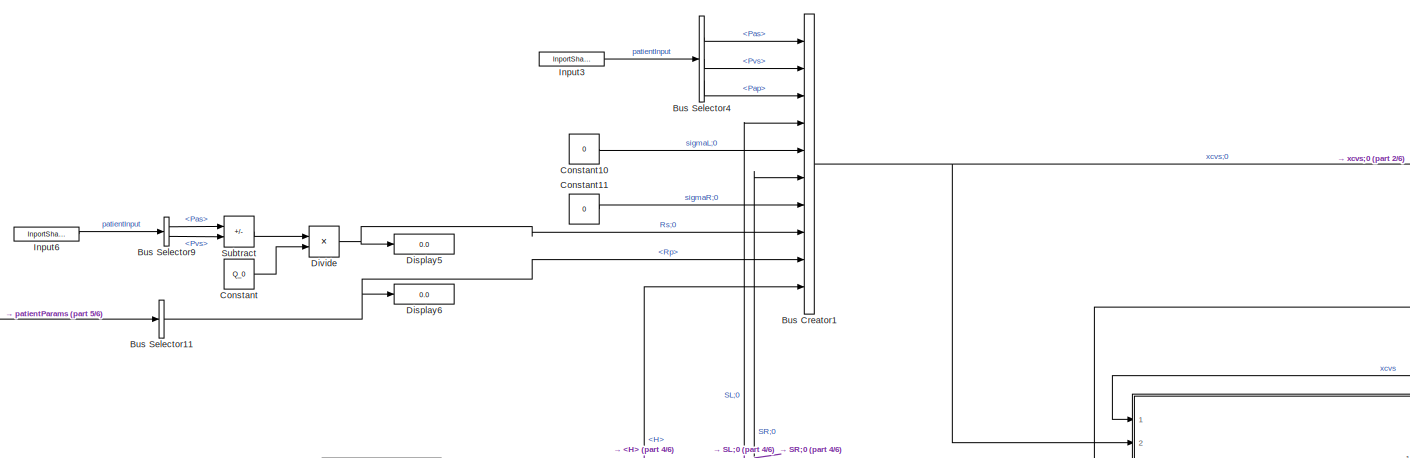
[diagram: main-model - part 1/6, top left region]
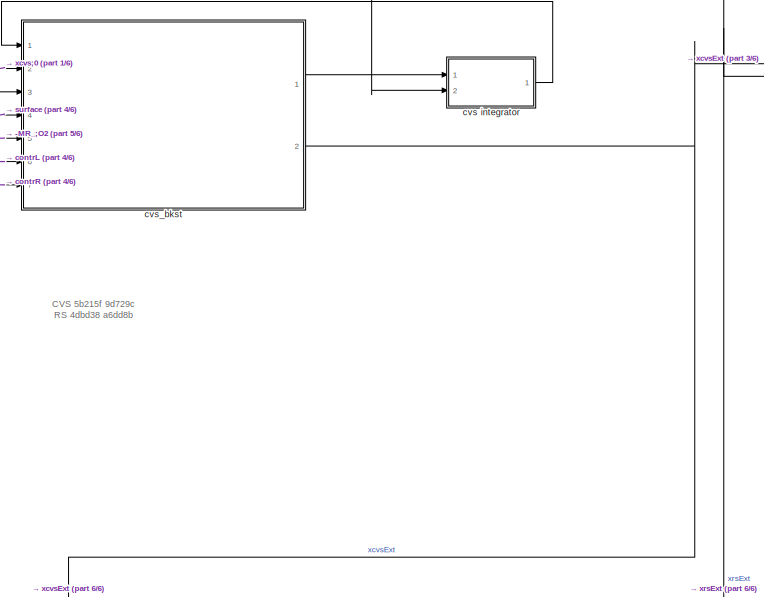
[diagram: main-model - part 2/6, top center region]
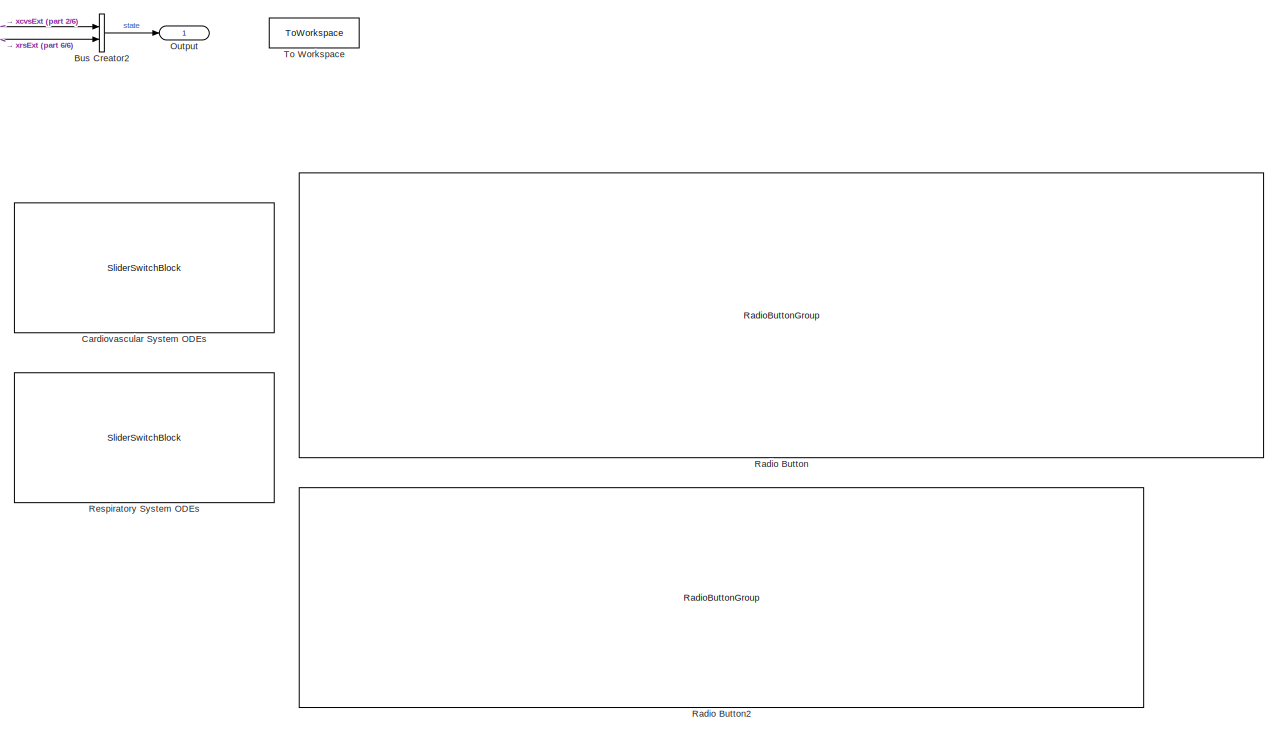
[diagram: main-model - part 3/6, middle right region]
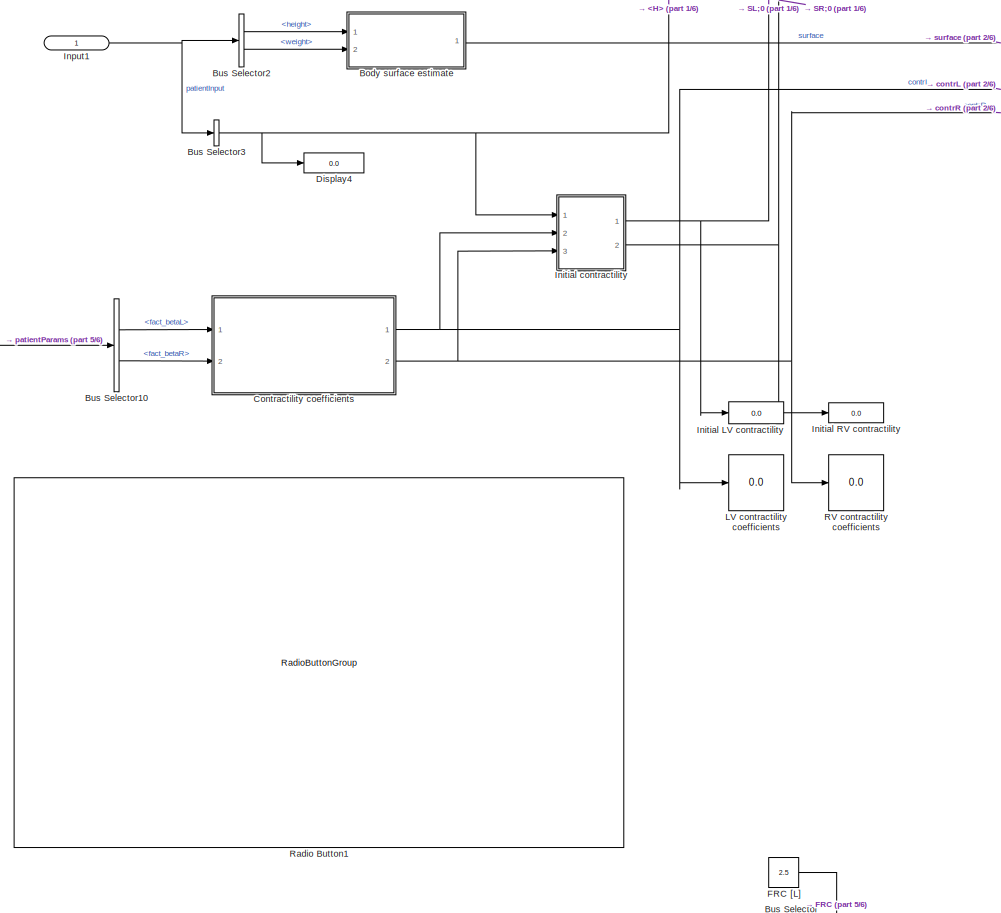
[diagram: main-model - part 4/6, middle left region]
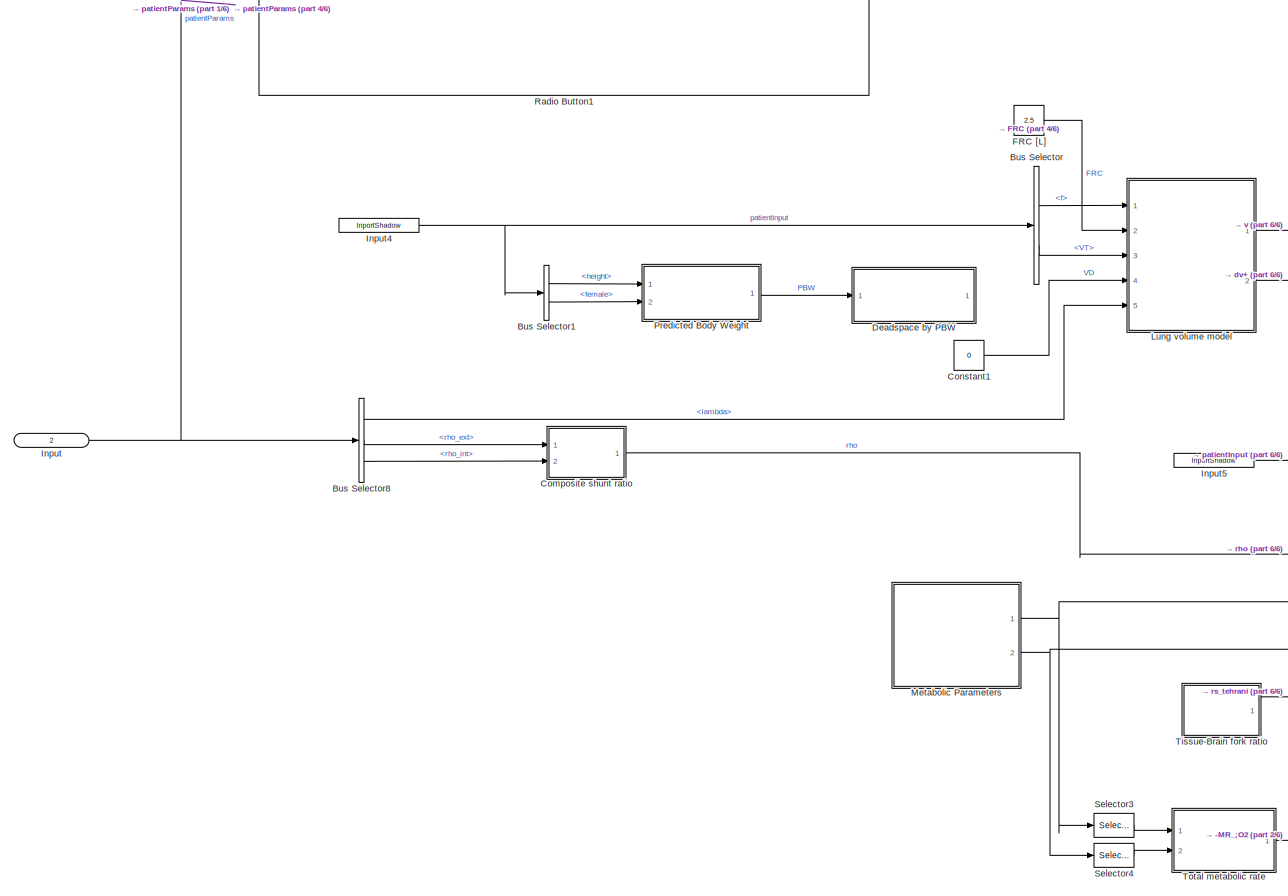
[diagram: main-model - part 5/6, bottom left region]
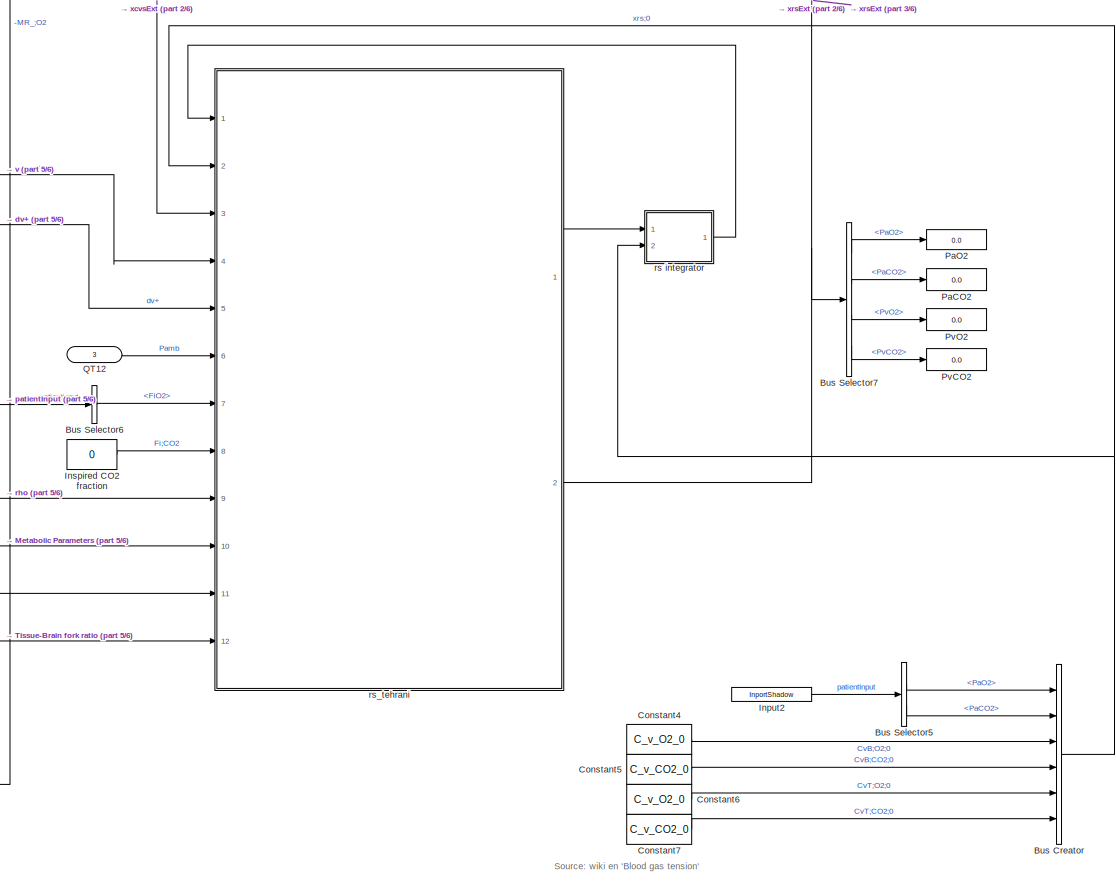
[diagram: main-model - part 6/6, bottom center region]
BLOCK [SubSystem] main-model
  Ports = [3, 1]
  RequestExecContextInheritance = off
BLOCK [SubSystem] main-model/Body surface estimate
  Ports = [2, 1]
  RequestExecContextInheritance = off
  TreatAsAtomicUnit = on
BLOCK [Constant] main-model/Body surface estimate/Constant1
  Value = 0.007184
BLOCK [Constant] main-model/Body surface estimate/Constant2
  Value = 0.725
BLOCK [Constant] main-model/Body surface estimate/Constant3
  Value = 0.425
BLOCK [Gain] main-model/Body surface estimate/Gain
  Gain = 100
BLOCK [Math] main-model/Body surface estimate/Power
  Operator = pow
  Ports = [2, 1]
BLOCK [Math] main-model/Body surface estimate/Power1
  Operator = pow
  Ports = [2, 1]
BLOCK [Product] main-model/Body surface estimate/Product2
  Inputs = ***
  Ports = [3, 1]
BLOCK [Inport] main-model/Body surface estimate/Weight
  IconDisplay = Signal name
  Port = 2
  Unit = kg
BLOCK [Inport] main-model/Body surface estimate/height
  IconDisplay = Signal name
  Unit = m
BLOCK [Outport] main-model/Body surface estimate/surface
  IconDisplay = Signal name
  Unit = m^2
BLOCK [BusCreator] main-model/Bus Creator
  DisplayOption = bar
  InheritFromInputs = off
  Inputs = 6
  OutDataTypeStr = Bus: RespiratoryState
  Ports = [6, 1]
BLOCK [BusCreator] main-model/Bus Creator1
  DisplayOption = bar
  InheritFromInputs = off
  Inputs = 10
  OutDataTypeStr = Bus: CardioVascularState
  Ports = [10, 1]
BLOCK [BusCreator] main-model/Bus Creator2
  DisplayOption = bar
  InheritFromInputs = off
  Inputs = 2
  OutDataTypeStr = Bus: PatientState
  Ports = [2, 1]
BLOCK [BusSelector] main-model/Bus Selector
  OutputSignals = f,VT
  Ports = [1, 2]
BLOCK [BusSelector] main-model/Bus Selector1
  OutputSignals = height,female
  Ports = [1, 2]
BLOCK [BusSelector] main-model/Bus Selector10
  OutputSignals = fact_betaL,fact_betaR
  Ports = [1, 2]
BLOCK [BusSelector] main-model/Bus Selector11
  OutputSignals = Rp
  Ports = [1, 1]
BLOCK [BusSelector] main-model/Bus Selector2
  OutputSignals = height,weight
  Ports = [1, 2]
BLOCK [BusSelector] main-model/Bus Selector3
  OutputSignals = H
  Ports = [1, 1]
BLOCK [BusSelector] main-model/Bus Selector4
  OutputSignals = Pas,Pvs,Pap
  Ports = [1, 3]
BLOCK [BusSelector] main-model/Bus Selector5
  OutputSignals = PaO2,PaCO2
  Ports = [1, 2]
BLOCK [BusSelector] main-model/Bus Selector6
  OutputSignals = FiO2
  Ports = [1, 1]
BLOCK [BusSelector] main-model/Bus Selector7
  OutputSignals = PaO2,PaCO2,PvO2,PvCO2
  Ports = [1, 4]
BLOCK [BusSelector] main-model/Bus Selector8
  OutputSignals = lambda,rho_ext,rho_int
  Ports = [1, 3]
BLOCK [BusSelector] main-model/Bus Selector9
  OutputSignals = Pas,Pvs
  Ports = [1, 2]
BLOCK [SliderSwitchBlock] main-model/Cardiovascular System ODEs
BLOCK [SubSystem] main-model/Composite shunt ratio
  Ports = [2, 1]
  RequestExecContextInheritance = off
BLOCK [Sum] main-model/Composite shunt ratio/Add1
  IconShape = rectangular
  Ports = [2, 1]
BLOCK [Constant] main-model/Composite shunt ratio/Constant
BLOCK [Product] main-model/Composite shunt ratio/Product
  Ports = [2, 1]
BLOCK [Sum] main-model/Composite shunt ratio/Subtract
  IconShape = rectangular
  Inputs = +-
  Ports = [2, 1]
BLOCK [Outport] main-model/Composite shunt ratio/rho
BLOCK [Inport] main-model/Composite shunt ratio/rho_1
BLOCK [Inport] main-model/Composite shunt ratio/rho_2
  Port = 2
BLOCK [Constant] main-model/Constant
  Value = Q_0
BLOCK [Constant] main-model/Constant1
  Value = 0
BLOCK [Constant] main-model/Constant10
  Value = 0
BLOCK [Constant] main-model/Constant11
  Value = 0
BLOCK [Constant] main-model/Constant4
  Value = C_v_O2_0
BLOCK [Constant] main-model/Constant5
  Value = C_v_CO2_0
BLOCK [Constant] main-model/Constant6
  Value = C_v_O2_0
BLOCK [Constant] main-model/Constant7
  Value = C_v_CO2_0
BLOCK [SubSystem] main-model/Contractility coefficients
  Ports = [2, 2]
  RequestExecContextInheritance = off
BLOCK [Constant] main-model/Contractility coefficients/Constant
  Value = 4
BLOCK [Constant] main-model/Contractility coefficients/Constant1
BLOCK [Constant] main-model/Contractility coefficients/Constant2
  Value = 2
BLOCK [Constant] main-model/Contractility coefficients/Constant3
  Value = 3
BLOCK [Constant] main-model/Contractility coefficients/Constant4
BLOCK [Constant] main-model/Contractility coefficients/Constant5
  Value = 5
BLOCK [Constant] main-model/Contractility coefficients/Constant6
  Value = 4
BLOCK [RelationalOperator] main-model/Contractility coefficients/Equal
  InputSameDT = off
  Operator = ==
  OutDataTypeStr = boolean
  Ports = [2, 1]
  RndMeth = Simplest
BLOCK [RelationalOperator] main-model/Contractility coefficients/Equal1
  InputSameDT = off
  Operator = ==
  OutDataTypeStr = boolean
  Ports = [2, 1]
  RndMeth = Simplest
BLOCK [RelationalOperator] main-model/Contractility coefficients/Equal2
  InputSameDT = off
  Operator = ==
  OutDataTypeStr = boolean
  Ports = [2, 1]
  RndMeth = Simplest
BLOCK [RelationalOperator] main-model/Contractility coefficients/Equal3
  InputSameDT = off
  Operator = ==
  OutDataTypeStr = boolean
  Ports = [2, 1]
  RndMeth = Simplest
BLOCK [RelationalOperator] main-model/Contractility coefficients/Equal4
  InputSameDT = off
  Operator = ==
  OutDataTypeStr = boolean
  Ports = [2, 1]
  RndMeth = Simplest
BLOCK [Inport] main-model/Contractility coefficients/LV beta gain (Heart Failure)
BLOCK [Merge] main-model/Contractility coefficients/Merge
  Inputs = 5
  Ports = [5, 1]
BLOCK [Merge] main-model/Contractility coefficients/Merge1
  Inputs = 5
  Ports = [5, 1]
BLOCK [Mux] main-model/Contractility coefficients/Mux
  DisplayOption = bar
  Inputs = 3
  Ports = [3, 1]
BLOCK [Mux] main-model/Contractility coefficients/Mux1
  DisplayOption = bar
  Inputs = 3
  Ports = [3, 1]
BLOCK [Product] main-model/Contractility coefficients/Product
  Ports = [2, 1]
BLOCK [Product] main-model/Contractility coefficients/Product1
  Ports = [2, 1]
BLOCK [Inport] main-model/Contractility coefficients/RV beta gain (Heart Failure)
  Port = 2
BLOCK [SubSystem] main-model/Contractility coefficients/Subsystem1
  Ports = [1, 1, 1]
  RequestExecContextInheritance = off
BLOCK [EnablePort] main-model/Contractility coefficients/Subsystem1/Enable
  Ports = []
BLOCK [Inport] main-model/Contractility coefficients/Subsystem1/in
  OutDataTypeStr = double
  PortDimensions = 3
BLOCK [Outport] main-model/Contractility coefficients/Subsystem1/out
  OutDataTypeStr = double
  PortDimensions = 3
BLOCK [SubSystem] main-model/Contractility coefficients/Subsystem10
  Ports = [1, 1, 1]
  RequestExecContextInheritance = off
BLOCK [EnablePort] main-model/Contractility coefficients/Subsystem10/Enable
  Ports = []
BLOCK [Inport] main-model/Contractility coefficients/Subsystem10/in
  OutDataTypeStr = double
  PortDimensions = 3
BLOCK [Outport] main-model/Contractility coefficients/Subsystem10/out
  OutDataTypeStr = double
  PortDimensions = 3
BLOCK [SubSystem] main-model/Contractility coefficients/Subsystem2
  Ports = [1, 1, 1]
  RequestExecContextInheritance = off
BLOCK [EnablePort] main-model/Contractility coefficients/Subsystem2/Enable
  Ports = []
BLOCK [Inport] main-model/Contractility coefficients/Subsystem2/in
  OutDataTypeStr = double
  PortDimensions = 3
BLOCK [Outport] main-model/Contractility coefficients/Subsystem2/out
  OutDataTypeStr = double
  PortDimensions = 3
BLOCK [SubSystem] main-model/Contractility coefficients/Subsystem3
  Ports = [1, 1, 1]
  RequestExecContextInheritance = off
BLOCK [EnablePort] main-model/Contractility coefficients/Subsystem3/Enable
  Ports = []
BLOCK [Inport] main-model/Contractility coefficients/Subsystem3/in
  OutDataTypeStr = double
  PortDimensions = 3
BLOCK [Outport] main-model/Contractility coefficients/Subsystem3/out
  OutDataTypeStr = double
  PortDimensions = 3
BLOCK [SubSystem] main-model/Contractility coefficients/Subsystem4
  Ports = [1, 1, 1]
  RequestExecContextInheritance = off
BLOCK [EnablePort] main-model/Contractility coefficients/Subsystem4/Enable
  Ports = []
BLOCK [Inport] main-model/Contractility coefficients/Subsystem4/in
  OutDataTypeStr = double
  PortDimensions = 3
BLOCK [Outport] main-model/Contractility coefficients/Subsystem4/out
  OutDataTypeStr = double
  PortDimensions = 3
BLOCK [SubSystem] main-model/Contractility coefficients/Subsystem5
  Ports = [1, 1, 1]
  RequestExecContextInheritance = off
BLOCK [EnablePort] main-model/Contractility coefficients/Subsystem5/Enable
  Ports = []
BLOCK [Inport] main-model/Contractility coefficients/Subsystem5/in
  OutDataTypeStr = double
  PortDimensions = 3
BLOCK [Outport] main-model/Contractility coefficients/Subsystem5/out
  OutDataTypeStr = double
  PortDimensions = 3
BLOCK [SubSystem] main-model/Contractility coefficients/Subsystem6
  Ports = [1, 1, 1]
  RequestExecContextInheritance = off
BLOCK [EnablePort] main-model/Contractility coefficients/Subsystem6/Enable
  Ports = []
BLOCK [Inport] main-model/Contractility coefficients/Subsystem6/in
  OutDataTypeStr = double
  PortDimensions = 3
BLOCK [Outport] main-model/Contractility coefficients/Subsystem6/out
  OutDataTypeStr = double
  PortDimensions = 3
BLOCK [SubSystem] main-model/Contractility coefficients/Subsystem7
  Ports = [1, 1, 1]
  RequestExecContextInheritance = off
BLOCK [EnablePort] main-model/Contractility coefficients/Subsystem7/Enable
  Ports = []
BLOCK [Inport] main-model/Contractility coefficients/Subsystem7/in
  OutDataTypeStr = double
  PortDimensions = 3
BLOCK [Outport] main-model/Contractility coefficients/Subsystem7/out
  OutDataTypeStr = double
  PortDimensions = 3
BLOCK [SubSystem] main-model/Contractility coefficients/Subsystem8
  Ports = [1, 1, 1]
  RequestExecContextInheritance = off
BLOCK [EnablePort] main-model/Contractility coefficients/Subsystem8/Enable
  Ports = []
BLOCK [Inport] main-model/Contractility coefficients/Subsystem8/in
  OutDataTypeStr = double
  PortDimensions = 3
BLOCK [Outport] main-model/Contractility coefficients/Subsystem8/out
  OutDataTypeStr = double
  PortDimensions = 3
BLOCK [SubSystem] main-model/Contractility coefficients/Subsystem9
  Ports = [1, 1, 1]
  RequestExecContextInheritance = off
BLOCK [EnablePort] main-model/Contractility coefficients/Subsystem9/Enable
  Ports = []
BLOCK [Inport] main-model/Contractility coefficients/Subsystem9/in
  OutDataTypeStr = double
  PortDimensions = 3
BLOCK [Outport] main-model/Contractility coefficients/Subsystem9/out
  OutDataTypeStr = double
  PortDimensions = 3
BLOCK [Outport] main-model/Contractility coefficients/contrL
  OutDataTypeStr = double
  PortDimensions = 3
BLOCK [Constant] main-model/Contractility coefficients/contrL [table 3.1]
  Value = [89.47 85.89 37.33]
BLOCK [Constant] main-model/Contractility coefficients/contrL [table 3.1], Heart Failure
  Value = [89.47 12.88 37.33]
BLOCK [Constant] main-model/Contractility coefficients/contrL [w// QLM, ex. gr.]
  Value = [31.592 25.065 -1.332]
BLOCK [Constant] main-model/Contractility coefficients/contrL [w// QLM]
  Value = [30.559 25.065 -1.674]
BLOCK [Constant] main-model/Contractility coefficients/contrL [w//o QLM]
  Value = [25.459 32.686 -2.859]
BLOCK [Outport] main-model/Contractility coefficients/contrR
  OutDataTypeStr = double
  Port = 2
  PortDimensions = 3
BLOCK [Constant] main-model/Contractility coefficients/contrR [table 3.1]
  Value = [28.46 2.08 11.88]
BLOCK [Constant] main-model/Contractility coefficients/contrR [table 3.1], Heart Failure
  Value = [28.46 1.46 11.88]
BLOCK [Constant] main-model/Contractility coefficients/contrR [w// QLM, ex. gr.]
  Value = [28.342 1.416 -2.045]
BLOCK [Constant] main-model/Contractility coefficients/contrR [w// QLM]
  Value = [28.679 1.413 -1.861]
BLOCK [Constant] main-model/Contractility coefficients/contrR [w//o QLM]
  Value = [10.388 1.011 93.240]
BLOCK [SubSystem] main-model/Deadspace by PBW
  Ports = [1, 1]
  RequestExecContextInheritance = off
  TreatAsAtomicUnit = on
BLOCK [Constant] main-model/Deadspace by PBW/Constant1
  Value = 0.0026
BLOCK [Product] main-model/Deadspace by PBW/Product2
  Ports = [2, 1]
BLOCK [Outport] main-model/Deadspace by PBW/VD
  IconDisplay = Signal name
  Unit = L
BLOCK [Inport] main-model/Deadspace by PBW/Weight
  IconDisplay = Signal name
  Unit = kg
BLOCK [Display] main-model/Display4
  Decimation = 1
  Ports = [1]
BLOCK [Display] main-model/Display5
  Decimation = 1
  Ports = [1]
BLOCK [Display] main-model/Display6
  Decimation = 1
  Ports = [1]
BLOCK [Product] main-model/Divide
  Inputs = */
  Ports = [2, 1]
BLOCK [Constant] main-model/FRC [L]
  Value = 2.5
BLOCK [Display] main-model/Initial LV contractility
  Decimation = 1
  Ports = [1]
BLOCK [Display] main-model/Initial RV contractility
  Decimation = 1
  Ports = [1]
BLOCK [SubSystem] main-model/Initial contractility
  Ports = [3, 2]
  RequestExecContextInheritance = off
BLOCK [Demux] main-model/Initial contractility/Demux
  Outputs = 2
  Ports = [1, 2]
BLOCK [Demux] main-model/Initial contractility/Demux1
  Outputs = 2
  Ports = [1, 2]
BLOCK [Inport] main-model/Initial contractility/H0
  IconDisplay = Signal name
  Unit = 1/min
BLOCK [Inport] main-model/Initial contractility/In2
  IconDisplay = Signal name
  OutDataTypeStr = double
  Port = 3
  PortDimensions = 3
BLOCK [Inport] main-model/Initial contractility/In3
  IconDisplay = Signal name
  OutDataTypeStr = double
  Port = 2
  PortDimensions = 3
BLOCK [Product] main-model/Initial contractility/Product
  Inputs = */*
  Ports = [3, 1]
BLOCK [Product] main-model/Initial contractility/Product1
  Inputs = */*
  Ports = [3, 1]
BLOCK [Outport] main-model/Initial contractility/SL;0
  IconDisplay = Signal name
  Unit = mmHg
BLOCK [Outport] main-model/Initial contractility/SR;0
  IconDisplay = Signal name
  Port = 2
  Unit = mmHg
BLOCK [Selector] main-model/Initial contractility/Selector
  IndexOptions = Index vector (dialog)
  Indices = [1 2]
  InputPortWidth = 3
  OutputSizes = 1
  Ports = [1, 1]
BLOCK [Selector] main-model/Initial contractility/Selector1
  IndexOptions = Index vector (dialog)
  Indices = [1 2]
  InputPortWidth = 3
  OutputSizes = 1
  Ports = [1, 1]
BLOCK [Inport] main-model/Input
  IconDisplay = Signal name
  OutDataTypeStr = Bus: PatientParams
  Port = 2
  PortDimensions = 6
BLOCK [Inport] main-model/Input1
  IconDisplay = Signal name
  OutDataTypeStr = Bus: PatientInput
BLOCK [InportShadow] main-model/Input2
  IconDisplay = Signal name
  OutDataTypeStr = Bus: PatientInput
BLOCK [InportShadow] main-model/Input3
  IconDisplay = Signal name
  OutDataTypeStr = Bus: PatientInput
BLOCK [InportShadow] main-model/Input4
  IconDisplay = Signal name
  OutDataTypeStr = Bus: PatientInput
BLOCK [InportShadow] main-model/Input5
  IconDisplay = Signal name
  OutDataTypeStr = Bus: PatientInput
BLOCK [InportShadow] main-model/Input6
  IconDisplay = Signal name
  OutDataTypeStr = Bus: PatientInput
BLOCK [Constant] main-model/Inspired CO2 fraction
  Value = 0
BLOCK [Display] main-model/LV contractility coefficients
  Decimation = 1
  Ports = [1]
BLOCK [SubSystem] main-model/Lung volume model
  Ports = [5, 2]
  RequestExecContextInheritance = off
  TreatAsAtomicUnit = on
BLOCK [Sum] main-model/Lung volume model/Add
  IconShape = rectangular
  Ports = [2, 1]
BLOCK [Sum] main-model/Lung volume model/Add1
  IconShape = rectangular
  Ports = [2, 1]
BLOCK [Clock] main-model/Lung volume model/Clock
BLOCK [Constant] main-model/Lung volume model/Constant
  Value = 2*pi
BLOCK [Constant] main-model/Lung volume model/Constant1
BLOCK [Constant] main-model/Lung volume model/Constant2
BLOCK [Constant] main-model/Lung volume model/Constant3
BLOCK [Constant] main-model/Lung volume model/Constant4
  Value = 60
BLOCK [Constant] main-model/Lung volume model/Derivative calculation mode
BLOCK [Display] main-model/Lung volume model/Display
  Decimation = 1
  Ports = [1]
BLOCK [Display] main-model/Lung volume model/Display1
  Decimation = 1
  Ports = [1]
BLOCK [Gain] main-model/Lung volume model/Gain1
  Gain = 1/2
BLOCK [Inport] main-model/Lung volume model/Input1
  IconDisplay = Signal name
  Unit = 1/min
BLOCK [Inport] main-model/Lung volume model/Input2
  IconDisplay = Signal name
  Port = 2
  Unit = L
BLOCK [Inport] main-model/Lung volume model/Input3
  IconDisplay = Signal name
  Port = 3
  Unit = L
BLOCK [Inport] main-model/Lung volume model/Input4
  IconDisplay = Signal name
  Port = 4
  Unit = L
BLOCK [Inport] main-model/Lung volume model/Input5
  IconDisplay = Signal name
  OutMax = 1
  OutMin = 0
  Port = 5
  Unit = 1
BLOCK [SubSystem] main-model/Lung volume model/Inspiratory lung volume derivative (direct calculation)
  Ports = [1, 1, 1]
  RequestExecContextInheritance = off
BLOCK [Constant] main-model/Lung volume model/Inspiratory lung volume derivative (direct calculation)/Constant3
  Value = 0
BLOCK [Derivative] main-model/Lung volume model/Inspiratory lung volume derivative (direct calculation)/Derivative
BLOCK [EnablePort] main-model/Lung volume model/Inspiratory lung volume derivative (direct calculation)/Enable
  Ports = []
BLOCK [MinMax] main-model/Lung volume model/Inspiratory lung volume derivative (direct calculation)/Max
  Function = max
  Inputs = 2
  Ports = [2, 1]
BLOCK [Outport] main-model/Lung volume model/Inspiratory lung volume derivative (direct calculation)/dv+
BLOCK [Inport] main-model/Lung volume model/Inspiratory lung volume derivative (direct calculation)/v
BLOCK [SubSystem] main-model/Lung volume model/Inspiratory lung volume derivative (fourier approximation)
  Ports = [2, 1, 1]
  RequestExecContextInheritance = off
BLOCK [Sum] main-model/Lung volume model/Inspiratory lung volume derivative (fourier approximation)/Add2
  IconShape = rectangular
  Ports = [2, 1]
BLOCK [EnablePort] main-model/Lung volume model/Inspiratory lung volume derivative (fourier approximation)/Enable
  Ports = []
BLOCK [Gain] main-model/Lung volume model/Inspiratory lung volume derivative (fourier approximation)/Gain
  Gain = pi
BLOCK [SubSystem] main-model/Lung volume model/Inspiratory lung volume derivative (fourier approximation)/Half-wave rectifier
  Ports = [2, 1]
  RequestExecContextInheritance = off
BLOCK [Inport] main-model/Lung volume model/Inspiratory lung volume derivative (fourier approximation)/Half-wave rectifier/(d)VA
  IconDisplay = Signal name
BLOCK [Inport] main-model/Lung volume model/Inspiratory lung volume derivative (fourier approximation)/Half-wave rectifier/2pift
  IconDisplay = Signal name
  Port = 2
BLOCK [Sum] main-model/Lung volume model/Inspiratory lung volume derivative (fourier approximation)/Half-wave rectifier/Add
  IconShape = rectangular
  Inputs = +-+
  Ports = [3, 1]
BLOCK [Sum] main-model/Lung volume model/Inspiratory lung volume derivative (fourier approximation)/Half-wave rectifier/Add2
  IconShape = rectangular
  Inputs = +++
  Ports = [3, 1]
BLOCK [Constant] main-model/Lung volume model/Inspiratory lung volume derivative (fourier approximation)/Half-wave rectifier/Constant
  Value = 1/pi
BLOCK [Constant] main-model/Lung volume model/Inspiratory lung volume derivative (fourier approximation)/Half-wave rectifier/Constant1
  Value = 2
BLOCK [Constant] main-model/Lung volume model/Inspiratory lung volume derivative (fourier approximation)/Half-wave rectifier/Constant2
  Value = 4
BLOCK [Constant] main-model/Lung volume model/Inspiratory lung volume derivative (fourier approximation)/Half-wave rectifier/Constant3
  Value = 6
BLOCK [Gain] main-model/Lung volume model/Inspiratory lung volume derivative (fourier approximation)/Half-wave rectifier/Gain
  Gain = 1/2
BLOCK [Gain] main-model/Lung volume model/Inspiratory lung volume derivative (fourier approximation)/Half-wave rectifier/Gain1
  Gain = 2/pi
BLOCK [Product] main-model/Lung volume model/Inspiratory lung volume derivative (fourier approximation)/Half-wave rectifier/Product1
  Ports = [2, 1]
BLOCK [Trigonometry] main-model/Lung volume model/Inspiratory lung volume derivative (fourier approximation)/Half-wave rectifier/Trigonometric Function
  Ports = [1, 1]
BLOCK [Outport] main-model/Lung volume model/Inspiratory lung volume derivative (fourier approximation)/Half-wave rectifier/out
BLOCK [SubSystem] main-model/Lung volume model/Inspiratory lung volume derivative (fourier approximation)/Half-wave rectifier/summand (k=2)
  Ports = [2, 1]
  RequestExecContextInheritance = off
BLOCK [Sum] main-model/Lung volume model/Inspiratory lung volume derivative (fourier approximation)/Half-wave rectifier/summand (k=2)/Add1
  IconShape = rectangular
  Inputs = +-
  Ports = [2, 1]
BLOCK [Constant] main-model/Lung volume model/Inspiratory lung volume derivative (fourier approximation)/Half-wave rectifier/summand (k=2)/Constant2
BLOCK [Inport] main-model/Lung volume model/Inspiratory lung volume derivative (fourier approximation)/Half-wave rectifier/summand (k=2)/In1
  IconDisplay = Signal name
BLOCK [Inport] main-model/Lung volume model/Inspiratory lung volume derivative (fourier approximation)/Half-wave rectifier/summand (k=2)/In2
  IconDisplay = Signal name
  Port = 2
BLOCK [Outport] main-model/Lung volume model/Inspiratory lung volume derivative (fourier approximation)/Half-wave rectifier/summand (k=2)/Out1
BLOCK [Product] main-model/Lung volume model/Inspiratory lung volume derivative (fourier approximation)/Half-wave rectifier/summand (k=2)/Product
  Ports = [2, 1]
BLOCK [Product] main-model/Lung volume model/Inspiratory lung volume derivative (fourier approximation)/Half-wave rectifier/summand (k=2)/Product3
  Inputs = */
  Ports = [2, 1]
BLOCK [Math] main-model/Lung volume model/Inspiratory lung volume derivative (fourier approximation)/Half-wave rectifier/summand (k=2)/Square
  Operator = square
  Ports = [1, 1]
BLOCK [Trigonometry] main-model/Lung volume model/Inspiratory lung volume derivative (fourier approximation)/Half-wave rectifier/summand (k=2)/Trigonometric Function1
  Operator = cos
  Ports = [1, 1]
BLOCK [SubSystem] main-model/Lung volume model/Inspiratory lung volume derivative (fourier approximation)/Half-wave rectifier/summand (k=4)
  Ports = [2, 1]
  RequestExecContextInheritance = off
BLOCK [Sum] main-model/Lung volume model/Inspiratory lung volume derivative (fourier approximation)/Half-wave rectifier/summand (k=4)/Add1
  IconShape = rectangular
  Inputs = +-
  Ports = [2, 1]
BLOCK [Constant] main-model/Lung volume model/Inspiratory lung volume derivative (fourier approximation)/Half-wave rectifier/summand (k=4)/Constant2
BLOCK [Inport] main-model/Lung volume model/Inspiratory lung volume derivative (fourier approximation)/Half-wave rectifier/summand (k=4)/In1
  IconDisplay = Signal name
BLOCK [Inport] main-model/Lung volume model/Inspiratory lung volume derivative (fourier approximation)/Half-wave rectifier/summand (k=4)/In2
  IconDisplay = Signal name
  Port = 2
BLOCK [Outport] main-model/Lung volume model/Inspiratory lung volume derivative (fourier approximation)/Half-wave rectifier/summand (k=4)/Out1
BLOCK [Product] main-model/Lung volume model/Inspiratory lung volume derivative (fourier approximation)/Half-wave rectifier/summand (k=4)/Product
  Ports = [2, 1]
BLOCK [Product] main-model/Lung volume model/Inspiratory lung volume derivative (fourier approximation)/Half-wave rectifier/summand (k=4)/Product3
  Inputs = */
  Ports = [2, 1]
BLOCK [Math] main-model/Lung volume model/Inspiratory lung volume derivative (fourier approximation)/Half-wave rectifier/summand (k=4)/Square
  Operator = square
  Ports = [1, 1]
BLOCK [Trigonometry] main-model/Lung volume model/Inspiratory lung volume derivative (fourier approximation)/Half-wave rectifier/summand (k=4)/Trigonometric Function1
  Operator = cos
  Ports = [1, 1]
BLOCK [SubSystem] main-model/Lung volume model/Inspiratory lung volume derivative (fourier approximation)/Half-wave rectifier/summand (k=6)
  Ports = [2, 1]
  RequestExecContextInheritance = off
BLOCK [Sum] main-model/Lung volume model/Inspiratory lung volume derivative (fourier approximation)/Half-wave rectifier/summand (k=6)/Add1
  IconShape = rectangular
  Inputs = +-
  Ports = [2, 1]
BLOCK [Constant] main-model/Lung volume model/Inspiratory lung volume derivative (fourier approximation)/Half-wave rectifier/summand (k=6)/Constant2
BLOCK [Inport] main-model/Lung volume model/Inspiratory lung volume derivative (fourier approximation)/Half-wave rectifier/summand (k=6)/In1
  IconDisplay = Signal name
BLOCK [Inport] main-model/Lung volume model/Inspiratory lung volume derivative (fourier approximation)/Half-wave rectifier/summand (k=6)/In2
  IconDisplay = Signal name
  Port = 2
BLOCK [Outport] main-model/Lung volume model/Inspiratory lung volume derivative (fourier approximation)/Half-wave rectifier/summand (k=6)/Out1
BLOCK [Product] main-model/Lung volume model/Inspiratory lung volume derivative (fourier approximation)/Half-wave rectifier/summand (k=6)/Product
  Ports = [2, 1]
BLOCK [Product] main-model/Lung volume model/Inspiratory lung volume derivative (fourier approximation)/Half-wave rectifier/summand (k=6)/Product3
  Inputs = */
  Ports = [2, 1]
BLOCK [Math] main-model/Lung volume model/Inspiratory lung volume derivative (fourier approximation)/Half-wave rectifier/summand (k=6)/Square
  Operator = square
  Ports = [1, 1]
BLOCK [Trigonometry] main-model/Lung volume model/Inspiratory lung volume derivative (fourier approximation)/Half-wave rectifier/summand (k=6)/Trigonometric Function1
  Operator = cos
  Ports = [1, 1]
BLOCK [Inport] main-model/Lung volume model/Inspiratory lung volume derivative (fourier approximation)/dVA
BLOCK [Outport] main-model/Lung volume model/Inspiratory lung volume derivative (fourier approximation)/dv+
BLOCK [Inport] main-model/Lung volume model/Inspiratory lung volume derivative (fourier approximation)/omega*t
  Port = 2
BLOCK [Constant] main-model/Lung volume model/Inspiratory lung volume derivative (fourier approximation)/zero-prevention threshold
  Value = 0.01
BLOCK [Merge] main-model/Lung volume model/Merge
  Ports = [2, 1]
BLOCK [Product] main-model/Lung volume model/Product
  Ports = [2, 1]
BLOCK [Product] main-model/Lung volume model/Product1
  Ports = [2, 1]
BLOCK [Product] main-model/Lung volume model/Product2
  Ports = [2, 1]
BLOCK [Product] main-model/Lung volume model/Product3
  Ports = [2, 1]
BLOCK [Product] main-model/Lung volume model/Product4
  Inputs = */
  Ports = [2, 1]
BLOCK [Product] main-model/Lung volume model/Product5
  Ports = [2, 1]
BLOCK [Product] main-model/Lung volume model/Product6
  Ports = [2, 1]
BLOCK [RadioButtonGroup] main-model/Lung volume model/Radio Button
  ButtonGroupName = Select mode
  SelectedLabel = Fourier approximation (continuous)
BLOCK [Sum] main-model/Lung volume model/Subtract
  IconShape = rectangular
  Inputs = +-
  Ports = [2, 1]
BLOCK [Sum] main-model/Lung volume model/Subtract1
  IconShape = rectangular
  Inputs = +-
  Ports = [2, 1]
BLOCK [Sum] main-model/Lung volume model/Subtract2
  IconShape = rectangular
  Inputs = +-
  Ports = [2, 1]
BLOCK [Trigonometry] main-model/Lung volume model/Trigonometric Function1
  Ports = [1, 1]
BLOCK [Outport] main-model/Lung volume model/dv
  IconDisplay = Signal name
  Port = 2
  Unit = L/s
BLOCK [Outport] main-model/Lung volume model/dv1
  IconDisplay = Signal name
  Unit = L
BLOCK [SubSystem] main-model/Metabolic Parameters
  Ports = [0, 2]
  RequestExecContextInheritance = off
BLOCK [Constant] main-model/Metabolic Parameters/Equivalent gas storage (body tissue) [lit]
  Value = 13
BLOCK [Constant] main-model/Metabolic Parameters/Equivalent gas storage (body tissue) [lit]1
  Value = 50
BLOCK [Constant] main-model/Metabolic Parameters/Equivalent gas storage (brain) [lit]
  Value = 1.1
BLOCK [Constant] main-model/Metabolic Parameters/Metabolic rate (CO2, body tissue) [lit//s]
  Value = 0.00287
BLOCK [Constant] main-model/Metabolic Parameters/Metabolic rate (CO2, brain) [lit//s]
  Value = 0.0009
BLOCK [Constant] main-model/Metabolic Parameters/Metabolic rate (O2, body tissue, positive) [lit//s]
  Value = 0.00352
BLOCK [Constant] main-model/Metabolic Parameters/Metabolic rate (O2, brain, positive) [lit//s]
  Value = 0.000925
BLOCK [Gain] main-model/Metabolic Parameters/Multiply
  Gain = -1
BLOCK [Gain] main-model/Metabolic Parameters/Multiply1
  Gain = -1
BLOCK [Mux] main-model/Metabolic Parameters/Mux
  DisplayOption = bar
  Inputs = 3
  Ports = [3, 1]
BLOCK [Mux] main-model/Metabolic Parameters/Mux1
  DisplayOption = bar
  Inputs = 3
  Ports = [3, 1]
BLOCK [Outport] main-model/Metabolic Parameters/Output
  IconDisplay = Signal name
  PortDimensions = 3
BLOCK [Outport] main-model/Metabolic Parameters/Output1
  IconDisplay = Signal name
  Port = 2
  PortDimensions = 3
BLOCK [Outport] main-model/Output
  IconDisplay = Signal name
  OutDataTypeStr = Bus: PatientState
BLOCK [Display] main-model/PaCO2
  Decimation = 1
  Ports = [1]
BLOCK [Display] main-model/PaO2
  Decimation = 1
  Ports = [1]
BLOCK [SubSystem] main-model/Predicted Body Weight
  Ports = [2, 1]
  RequestExecContextInheritance = off
  TreatAsAtomicUnit = on
BLOCK [Sum] main-model/Predicted Body Weight/Add4
  IconShape = rectangular
  Inputs = +-
  Ports = [2, 1]
BLOCK [Constant] main-model/Predicted Body Weight/Constant1
  Value = 1.524
BLOCK [Constant] main-model/Predicted Body Weight/Constant3
  Value = 0
BLOCK [Gain] main-model/Predicted Body Weight/Gain
  Gain = 91
BLOCK [SubSystem] main-model/Predicted Body Weight/IfThenElse
  Ports = [3, 1]
  RequestExecContextInheritance = off
BLOCK [Merge] main-model/Predicted Body Weight/IfThenElse/Merge
  Ports = [2, 1]
BLOCK [Logic] main-model/Predicted Body Weight/IfThenElse/NOT
  AllPortsSameDT = off
  IconShape = distinctive
  Operator = NOT
  OutDataTypeStr = boolean
  Ports = [1, 1]
BLOCK [SubSystem] main-model/Predicted Body Weight/IfThenElse/Subsystem1
  Ports = [1, 1, 1]
  RequestExecContextInheritance = off
BLOCK [EnablePort] main-model/Predicted Body Weight/IfThenElse/Subsystem1/Enable
  Ports = []
BLOCK [Inport] main-model/Predicted Body Weight/IfThenElse/Subsystem1/in
BLOCK [Outport] main-model/Predicted Body Weight/IfThenElse/Subsystem1/out
BLOCK [SubSystem] main-model/Predicted Body Weight/IfThenElse/Subsystem2
  Ports = [1, 1, 1]
  RequestExecContextInheritance = off
BLOCK [EnablePort] main-model/Predicted Body Weight/IfThenElse/Subsystem2/Enable
  Ports = []
BLOCK [Inport] main-model/Predicted Body Weight/IfThenElse/Subsystem2/in
BLOCK [Outport] main-model/Predicted Body Weight/IfThenElse/Subsystem2/out
BLOCK [Inport] main-model/Predicted Body Weight/IfThenElse/else
  Port = 3
BLOCK [Inport] main-model/Predicted Body Weight/IfThenElse/if
  OutDataTypeStr = boolean
BLOCK [Outport] main-model/Predicted Body Weight/IfThenElse/out
BLOCK [Inport] main-model/Predicted Body Weight/IfThenElse/then
  Port = 2
BLOCK [Inport] main-model/Predicted Body Weight/Input
  IconDisplay = Signal name
  OutDataTypeStr = boolean
  Port = 2
BLOCK [MinMax] main-model/Predicted Body Weight/Max
  Function = max
  Inputs = 2
  Ports = [2, 1]
BLOCK [Sum] main-model/Predicted Body Weight/Subtract1
  IconShape = rectangular
  Ports = [2, 1]
BLOCK [Outport] main-model/Predicted Body Weight/Weight
  IconDisplay = Signal name
  Unit = kg
BLOCK [Constant] main-model/Predicted Body Weight/female
  Value = 45.5
BLOCK [Inport] main-model/Predicted Body Weight/height
  IconDisplay = Signal name
  Unit = m
BLOCK [Constant] main-model/Predicted Body Weight/male
  Value = 50
BLOCK [Display] main-model/PvCO2
  Decimation = 1
  Ports = [1]
BLOCK [Display] main-model/PvO2
  Decimation = 1
  Ports = [1]
BLOCK [Inport] main-model/QT12
  IconDisplay = Signal name
  Port = 3
  Unit = mmHg
BLOCK [Display] main-model/RV contractility coefficients
  Decimation = 1
  Ports = [1]
BLOCK [RadioButtonGroup] main-model/Radio Button
  ButtonGroupName = Systemic vascular resistance: Calculation mode
  LabelPosition = Hide
  SelectedLabel = ODE from [BKST (1.27)]: By Metabolic rates and Ca;O2
BLOCK [RadioButtonGroup] main-model/Radio Button1
  ButtonGroupName = Contractility coefficient selection (see [BKST] table 1.5)
  LabelPosition = Hide
  SelectedLabel = from table 3.1 (healthy)
BLOCK [RadioButtonGroup] main-model/Radio Button2
  ButtonGroupName = Heart Contractility: Calculation mode
  LabelPosition = Hide
  SelectedLabel = Linear relationship with Heart Frequency (H)
BLOCK [SliderSwitchBlock] main-model/Respiratory System ODEs
BLOCK [Selector] main-model/Selector3
  IndexOptions = Index vector (dialog)
  Indices = 2
  InputPortWidth = 3
  OutputSizes = 1
  Ports = [1, 1]
BLOCK [Selector] main-model/Selector4
  IndexOptions = Index vector (dialog)
  Indices = 2
  InputPortWidth = 3
  OutputSizes = 1
  Ports = [1, 1]
BLOCK [Sum] main-model/Subtract
  IconShape = rectangular
  Inputs = +-
  Ports = [2, 1]
BLOCK [SubSystem] main-model/Tissue-Brain fork ratio
  Ports = [0, 1]
  RequestExecContextInheritance = off
BLOCK [Sum] main-model/Tissue-Brain fork ratio/Add
  IconShape = rectangular
  Ports = [2, 1]
BLOCK [Constant] main-model/Tissue-Brain fork ratio/Blood flow in body tissue [lit//s]
  Value = 0.07083
BLOCK [Constant] main-model/Tissue-Brain fork ratio/Blood flow in brain [lit//s]
  Value = 0.0125
BLOCK [Product] main-model/Tissue-Brain fork ratio/Divide
  Inputs = */
  Ports = [2, 1]
BLOCK [Outport] main-model/Tissue-Brain fork ratio/QT//Qco
  IconDisplay = Signal name
  Unit = 1
BLOCK [ToWorkspace] main-model/To Workspace
  Commented = on
  MaxDataPoints = 1
  Ports = [1]
  SampleTime = -1
  SaveFormat = Timeseries
  VariableName = simout1
BLOCK [SubSystem] main-model/Total metabolic rate
  Ports = [2, 1]
  RequestExecContextInheritance = off
BLOCK [Sum] main-model/Total metabolic rate/Add
  IconShape = rectangular
  Inputs = --
  Ports = [2, 1]
BLOCK [Constant] main-model/Total metabolic rate/Constant
  Value = 60
BLOCK [Inport] main-model/Total metabolic rate/MRB;O2
  Port = 2
  Unit = L/s
BLOCK [Inport] main-model/Total metabolic rate/MRT;O2
  Unit = L/s
BLOCK [Outport] main-model/Total metabolic rate/MR_;O2
  IconDisplay = Signal name
  Unit = L/min
BLOCK [Product] main-model/Total metabolic rate/Product
  Ports = [2, 1]
BLOCK [SubSystem] main-model/cvs integrator
  Ports = [2, 1]
  RequestExecContextInheritance = off
BLOCK [BusCreator] main-model/cvs integrator/Bus Creator
  DisplayOption = bar
  InheritFromInputs = off
  Inputs = 10
  OutDataTypeStr = Bus: CardioVascularState
  Ports = [10, 1]
BLOCK [BusSelector] main-model/cvs integrator/Bus Selector
  OutputSignals = dPas,dPvs,dPap,dSL,dsigmaL,dSR,dsigmaR,dRs,dRp,dH
  Ports = [1, 10]
BLOCK [BusSelector] main-model/cvs integrator/Bus Selector1
  OutputSignals = Pas,Pvs,Pap,SL,SR,Rs,Rp,H
  Ports = [1, 8]
BLOCK [Constant] main-model/cvs integrator/CVS ODE switch
BLOCK [Constant] main-model/cvs integrator/Constant
  Value = 60
BLOCK [Delay] main-model/cvs integrator/Delay
  DelayLength = 1
  InitialConditionSource = Input port
  InputPortMap = u0,p4
  Ports = [2, 1]
BLOCK [Delay] main-model/cvs integrator/Delay1
  DelayLength = 1
  InitialConditionSource = Input port
  InputPortMap = u0,p4
  Ports = [2, 1]
BLOCK [Delay] main-model/cvs integrator/Delay2
  DelayLength = 1
  InitialConditionSource = Input port
  InputPortMap = u0,p4
  Ports = [2, 1]
BLOCK [Delay] main-model/cvs integrator/Delay3
  DelayLength = 1
  InitialConditionSource = Input port
  InputPortMap = u0,p4
  Ports = [2, 1]
BLOCK [Delay] main-model/cvs integrator/Delay4
  DelayLength = 1
  InputPortMap = u0
  Ports = [1, 1]
BLOCK [Delay] main-model/cvs integrator/Delay5
  DelayLength = 1
  InputPortMap = u0
  Ports = [1, 1]
BLOCK [Delay] main-model/cvs integrator/Delay6
  DelayLength = 1
  InitialConditionSource = Input port
  InputPortMap = u0,p4
  Ports = [2, 1]
BLOCK [Delay] main-model/cvs integrator/Delay7
  DelayLength = 1
  InitialConditionSource = Input port
  InputPortMap = u0,p4
  Ports = [2, 1]
BLOCK [Delay] main-model/cvs integrator/Delay8
  DelayLength = 1
  InitialConditionSource = Input port
  InputPortMap = u0,p4
  Ports = [2, 1]
BLOCK [Delay] main-model/cvs integrator/Delay9
  DelayLength = 1
  InitialConditionSource = Input port
  InputPortMap = u0,p4
  Ports = [2, 1]
BLOCK [Inport] main-model/cvs integrator/In1
  IconDisplay = Signal name
  OutDataTypeStr = Bus: CardioVascularStateDerivative
BLOCK [Inport] main-model/cvs integrator/In2
  IconDisplay = Signal name
  OutDataTypeStr = Bus: CardioVascularState
  Port = 2
BLOCK [Integrator] main-model/cvs integrator/Integrator
  InitialConditionSource = external
  Ports = [2, 1]
BLOCK [Integrator] main-model/cvs integrator/Integrator1
  InitialConditionSource = external
  Ports = [2, 1]
BLOCK [Integrator] main-model/cvs integrator/Integrator2
  InitialConditionSource = external
  Ports = [2, 1]
BLOCK [Integrator] main-model/cvs integrator/Integrator3
  InitialConditionSource = external
  Ports = [2, 1]
BLOCK [Integrator] main-model/cvs integrator/Integrator5
  InitialConditionSource = external
  Ports = [2, 1]
BLOCK [Integrator] main-model/cvs integrator/Integrator7
  InitialConditionSource = external
  Ports = [2, 1]
BLOCK [Integrator] main-model/cvs integrator/Integrator8
  InitialConditionSource = external
  Ports = [2, 1]
BLOCK [Integrator] main-model/cvs integrator/Integrator9
  InitialConditionSource = external
  Ports = [2, 1]
BLOCK [Outport] main-model/cvs integrator/Out1
  IconDisplay = Signal name
  OutDataTypeStr = Bus: CardioVascularState
BLOCK [Product] main-model/cvs integrator/Product
  Inputs = */
  Ports = [2, 1]
BLOCK [Product] main-model/cvs integrator/Product1
  Inputs = */
  Ports = [2, 1]
BLOCK [Product] main-model/cvs integrator/Product2
  Inputs = */
  Ports = [2, 1]
BLOCK [Product] main-model/cvs integrator/Product3
  Inputs = */
  Ports = [2, 1]
BLOCK [Product] main-model/cvs integrator/Product5
  Inputs = */
  Ports = [2, 1]
BLOCK [Product] main-model/cvs integrator/Product7
  Inputs = */
  Ports = [2, 1]
BLOCK [Product] main-model/cvs integrator/Product8
  Inputs = */
  Ports = [2, 1]
BLOCK [Product] main-model/cvs integrator/Product9
  Inputs = */
  Ports = [2, 1]
BLOCK [SubSystem] main-model/cvs integrator/Subsystem
  Ports = [2, 1]
  RequestExecContextInheritance = off
BLOCK [BusCreator] main-model/cvs integrator/Subsystem/Bus Creator1
  DisplayOption = bar
  InheritFromInputs = off
  Inputs = 10
  OutDataTypeStr = Bus: CardioVascularStateDerivative
  Ports = [10, 1]
BLOCK [BusToVector] main-model/cvs integrator/Subsystem/Bus to Vector
BLOCK [Demux] main-model/cvs integrator/Subsystem/Demux1
  Outputs = 10
  Ports = [1, 10]
BLOCK [Inport] main-model/cvs integrator/Subsystem/In1
  IconDisplay = Signal name
BLOCK [Product] main-model/cvs integrator/Subsystem/Product
  Ports = [2, 1]
BLOCK [Inport] main-model/cvs integrator/Subsystem/dxcvs
  IconDisplay = Signal name
  Port = 2
BLOCK [Outport] main-model/cvs integrator/Subsystem/dxcvs1
  IconDisplay = Signal name
BLOCK [SubSystem] main-model/cvs integrator/Subsystem3
  Commented = on
  Ports = [1, 1, 1]
  RequestExecContextInheritance = off
BLOCK [EnablePort] main-model/cvs integrator/Subsystem3/Enable
  Ports = []
BLOCK [Inport] main-model/cvs integrator/Subsystem3/In1
  OutDataTypeStr = Bus: CardioVascularStateDerivative
BLOCK [Outport] main-model/cvs integrator/Subsystem3/Out1
  OutDataTypeStr = Bus: CardioVascularStateDerivative
BLOCK [SubSystem] main-model/cvs_bkst
  Ports = [7, 2]
  RequestExecContextInheritance = off
BLOCK [Inport] main-model/cvs_bkst/CvO1
  IconDisplay = Signal name
  Port = 5
  Unit = L/min
BLOCK [Inport] main-model/cvs_bkst/Input
  IconDisplay = Signal name
  OutDataTypeStr = Bus: CardioVascularState
BLOCK [Inport] main-model/cvs_bkst/Input1
  IconDisplay = Signal name
  OutDataTypeStr = Bus: RespiratoryStateExtended
  Port = 3
BLOCK [Inport] main-model/cvs_bkst/Input2
  IconDisplay = Signal name
  OutDataTypeStr = Bus: CardioVascularState
  Port = 2
BLOCK [InportShadow] main-model/cvs_bkst/Input3
  IconDisplay = Signal name
  OutDataTypeStr = Bus: CardioVascularState
BLOCK [Inport] main-model/cvs_bkst/Input4
  IconDisplay = Signal name
  OutDataTypeStr = double
  Port = 6
  PortDimensions = 3
BLOCK [Inport] main-model/cvs_bkst/Input5
  IconDisplay = Signal name
  OutDataTypeStr = double
  Port = 7
  PortDimensions = 3
BLOCK [SubSystem] main-model/cvs_bkst/ODEs
  Ports = [7, 1]
  RequestExecContextInheritance = off
BLOCK [BusCreator] main-model/cvs_bkst/ODEs/Bus Creator2
  DisplayOption = bar
  InheritFromInputs = on
  Inputs = 10
  OutDataTypeStr = Bus: CardioVascularStateDerivative
  Ports = [10, 1]
BLOCK [BusSelector] main-model/cvs_bkst/ODEs/Bus Selector
  OutputSignals = CaO2,CvO2
  Ports = [1, 2]
BLOCK [BusSelector] main-model/cvs_bkst/ODEs/Bus Selector6
  OutputSignals = Pas
  Ports = [1, 1]
BLOCK [BusSelector] main-model/cvs_bkst/ODEs/Bus Selector7
  OutputSignals = QL,Qs
  Ports = [1, 2]
BLOCK [BusSelector] main-model/cvs_bkst/ODEs/Bus Selector8
  OutputSignals = Qs,QR
  Ports = [1, 2]
BLOCK [BusSelector] main-model/cvs_bkst/ODEs/Bus Selector9
  OutputSignals = QR,Qp
  Ports = [1, 2]
BLOCK [Inport] main-model/cvs_bkst/ODEs/CvO1
  IconDisplay = Signal name
  Port = 7
  Unit = L/min
BLOCK [Demux] main-model/cvs_bkst/ODEs/Demux
  Outputs = 3
  Ports = [1, 3]
BLOCK [SubSystem] main-model/cvs_bkst/ODEs/Heart contractility control
  Ports = [4, 2]
  RequestExecContextInheritance = off
BLOCK [BusSelector] main-model/cvs_bkst/ODEs/Heart contractility control/Bus Selector1
  OutputSignals = SL,sigmaL,SR,sigmaR,H
  Ports = [1, 5]
BLOCK [Constant] main-model/cvs_bkst/ODEs/Heart contractility control/Constant
  Value = 0
BLOCK [Constant] main-model/cvs_bkst/ODEs/Heart contractility control/Constant1
  Value = 60
BLOCK [Constant] main-model/cvs_bkst/ODEs/Heart contractility control/Constant2
BLOCK [SubSystem] main-model/cvs_bkst/ODEs/Heart contractility control/Contractility ODE (LV)
  Ports = [4, 1]
  ReferencedSubsystem = cvrs_contractility_control
  RequestExecContextInheritance = off
BLOCK [SubSystem] main-model/cvs_bkst/ODEs/Heart contractility control/Contractility ODE (RV)
  Ports = [4, 1]
  ReferencedSubsystem = cvrs_contractility_control
  RequestExecContextInheritance = off
BLOCK [Constant] main-model/cvs_bkst/ODEs/Heart contractility control/Contractility calculation mode
  Value = 0
BLOCK [Demux] main-model/cvs_bkst/ODEs/Heart contractility control/Demux
  Outputs = 2
  Ports = [1, 2]
BLOCK [Demux] main-model/cvs_bkst/ODEs/Heart contractility control/Demux1
  Outputs = 2
  Ports = [1, 2]
BLOCK [Demux] main-model/cvs_bkst/ODEs/Heart contractility control/Demux2
  Outputs = 2
  Ports = [1, 2]
BLOCK [SubSystem] main-model/cvs_bkst/ODEs/Heart contractility control/Enabled Subsystem
  Ports = [1, 1, 1]
  RequestExecContextInheritance = off
  TreatAsAtomicUnit = on
BLOCK [EnablePort] main-model/cvs_bkst/ODEs/Heart contractility control/Enabled Subsystem/Enable
  Ports = []
BLOCK [Inport] main-model/cvs_bkst/ODEs/Heart contractility control/Enabled Subsystem/In1
BLOCK [Outport] main-model/cvs_bkst/ODEs/Heart contractility control/Enabled Subsystem/Out1
BLOCK [SubSystem] main-model/cvs_bkst/ODEs/Heart contractility control/Enabled Subsystem1
  Ports = [1, 1, 1]
  RequestExecContextInheritance = off
  TreatAsAtomicUnit = on
BLOCK [EnablePort] main-model/cvs_bkst/ODEs/Heart contractility control/Enabled Subsystem1/Enable
  Ports = []
BLOCK [Inport] main-model/cvs_bkst/ODEs/Heart contractility control/Enabled Subsystem1/In1
BLOCK [Outport] main-model/cvs_bkst/ODEs/Heart contractility control/Enabled Subsystem1/Out1
BLOCK [RelationalOperator] main-model/cvs_bkst/ODEs/Heart contractility control/Equal
  InputSameDT = off
  Operator = ==
  OutDataTypeStr = boolean
  Ports = [2, 1]
  RndMeth = Simplest
BLOCK [RelationalOperator] main-model/cvs_bkst/ODEs/Heart contractility control/Equal1
  InputSameDT = off
  Operator = ==
  OutDataTypeStr = boolean
  Ports = [2, 1]
  RndMeth = Simplest
BLOCK [Inport] main-model/cvs_bkst/ODEs/Heart contractility control/Input
  IconDisplay = Signal name
  OutDataTypeStr = double
  Port = 2
  PortDimensions = 3
BLOCK [Inport] main-model/cvs_bkst/ODEs/Heart contractility control/Input1
  IconDisplay = Signal name
  OutDataTypeStr = double
  Port = 3
  PortDimensions = 3
BLOCK [Inport] main-model/cvs_bkst/ODEs/Heart contractility control/Input2
  IconDisplay = Signal name
  Port = 4
  Unit = 1/min^2
BLOCK [Integrator] main-model/cvs_bkst/ODEs/Heart contractility control/Integrator2
  Ports = [1, 1]
BLOCK [Integrator] main-model/cvs_bkst/ODEs/Heart contractility control/Integrator3
  Ports = [1, 1]
BLOCK [Merge] main-model/cvs_bkst/ODEs/Heart contractility control/Merge
  Ports = [2, 1]
BLOCK [Mux] main-model/cvs_bkst/ODEs/Heart contractility control/Mux
  DisplayOption = bar
  Inputs = 2
  Ports = [2, 1]
BLOCK [Mux] main-model/cvs_bkst/ODEs/Heart contractility control/Mux1
  DisplayOption = bar
  Inputs = 2
  Ports = [2, 1]
BLOCK [Product] main-model/cvs_bkst/ODEs/Heart contractility control/Product
  Inputs = /**
  Ports = [3, 1]
BLOCK [Product] main-model/cvs_bkst/ODEs/Heart contractility control/Product1
  Inputs = /**
  Ports = [3, 1]
BLOCK [Product] main-model/cvs_bkst/ODEs/Heart contractility control/Product2
  Inputs = */
  Ports = [2, 1]
BLOCK [Product] main-model/cvs_bkst/ODEs/Heart contractility control/Product3
  Inputs = */
  Ports = [2, 1]
BLOCK [Selector] main-model/cvs_bkst/ODEs/Heart contractility control/Selector
  IndexOptions = Index vector (dialog)
  Indices = [1 2]
  InputPortWidth = 3
  OutputSizes = 1
  Ports = [1, 1]
BLOCK [Selector] main-model/cvs_bkst/ODEs/Heart contractility control/Selector1
  IndexOptions = Index vector (dialog)
  Indices = [1 2]
  InputPortWidth = 3
  OutputSizes = 1
  Ports = [1, 1]
BLOCK [SubSystem] main-model/cvs_bkst/ODEs/Heart contractility control/Subsystem
  Commented = on
  Ports = [4, 1]
  RequestExecContextInheritance = off
BLOCK [Inport] main-model/cvs_bkst/ODEs/Heart contractility control/Subsystem/<H>
  Port = 3
BLOCK [Inport] main-model/cvs_bkst/ODEs/Heart contractility control/Subsystem/<SL>
BLOCK [Inport] main-model/cvs_bkst/ODEs/Heart contractility control/Subsystem/<sigmaL>
  Port = 2
BLOCK [Sum] main-model/cvs_bkst/ODEs/Heart contractility control/Subsystem/Add
  IconShape = rectangular
  Inputs = -+-
  Ports = [3, 1]
BLOCK [Demux] main-model/cvs_bkst/ODEs/Heart contractility control/Subsystem/Demux
  Outputs = 3
  Ports = [1, 3]
BLOCK [Derivative] main-model/cvs_bkst/ODEs/Heart contractility control/Subsystem/Derivative
BLOCK [Product] main-model/cvs_bkst/ODEs/Heart contractility control/Subsystem/Divide
  Inputs = */
  Ports = [2, 1]
BLOCK [Gain] main-model/cvs_bkst/ODEs/Heart contractility control/Subsystem/Gain
  Commented = through
  Gain = 60
BLOCK [Outport] main-model/cvs_bkst/ODEs/Heart contractility control/Subsystem/Out1
BLOCK [Product] main-model/cvs_bkst/ODEs/Heart contractility control/Subsystem/Product
  Ports = [2, 1]
BLOCK [Product] main-model/cvs_bkst/ODEs/Heart contractility control/Subsystem/Product1
  Ports = [2, 1]
BLOCK [Inport] main-model/cvs_bkst/ODEs/Heart contractility control/Subsystem/contrL
  Port = 4
BLOCK [SubSystem] main-model/cvs_bkst/ODEs/Heart contractility control/Subsystem1
  Commented = on
  Ports = [4, 1]
  RequestExecContextInheritance = off
BLOCK [Inport] main-model/cvs_bkst/ODEs/Heart contractility control/Subsystem1/<H>
  Port = 3
BLOCK [Inport] main-model/cvs_bkst/ODEs/Heart contractility control/Subsystem1/<SL>
BLOCK [Inport] main-model/cvs_bkst/ODEs/Heart contractility control/Subsystem1/<sigmaL>
  Port = 2
BLOCK [Sum] main-model/cvs_bkst/ODEs/Heart contractility control/Subsystem1/Add
  IconShape = rectangular
  Inputs = -+-
  Ports = [3, 1]
BLOCK [Demux] main-model/cvs_bkst/ODEs/Heart contractility control/Subsystem1/Demux
  Outputs = 3
  Ports = [1, 3]
BLOCK [Derivative] main-model/cvs_bkst/ODEs/Heart contractility control/Subsystem1/Derivative
BLOCK [Product] main-model/cvs_bkst/ODEs/Heart contractility control/Subsystem1/Divide
  Inputs = */
  Ports = [2, 1]
BLOCK [Gain] main-model/cvs_bkst/ODEs/Heart contractility control/Subsystem1/Gain
  Commented = through
  Gain = 60
BLOCK [Outport] main-model/cvs_bkst/ODEs/Heart contractility control/Subsystem1/Out1
BLOCK [Product] main-model/cvs_bkst/ODEs/Heart contractility control/Subsystem1/Product
  Ports = [2, 1]
BLOCK [Product] main-model/cvs_bkst/ODEs/Heart contractility control/Subsystem1/Product1
  Ports = [2, 1]
BLOCK [Inport] main-model/cvs_bkst/ODEs/Heart contractility control/Subsystem1/contrL
  Port = 4
BLOCK [Outport] main-model/cvs_bkst/ODEs/Heart contractility control/dsigmaL
  IconDisplay = Signal name
  Unit = mmHg/min
BLOCK [Outport] main-model/cvs_bkst/ODEs/Heart contractility control/dsigmaR
  IconDisplay = Signal name
  Port = 2
  Unit = mmHg/min
BLOCK [Inport] main-model/cvs_bkst/ODEs/Heart contractility control/x
  IconDisplay = Signal name
  OutDataTypeStr = Bus: CardioVascularState
BLOCK [SubSystem] main-model/cvs_bkst/ODEs/Heart rate control
  Ports = [1, 1]
  RequestExecContextInheritance = off
BLOCK [Inport] main-model/cvs_bkst/ODEs/Heart rate control/<Pas>
  Unit = mmHg
BLOCK [SubSystem] main-model/cvs_bkst/ODEs/Heart rate control/ABP error term
  Ports = [2, 1]
  RequestExecContextInheritance = off
BLOCK [Inport] main-model/cvs_bkst/ODEs/Heart rate control/ABP error term/<Pas>
  IconDisplay = Signal name
  Unit = mmHg
BLOCK [Inport] main-model/cvs_bkst/ODEs/Heart rate control/ABP error term/<Pas>1
  IconDisplay = Signal name
  Port = 2
  Unit = mmHg
BLOCK [Outport] main-model/cvs_bkst/ODEs/Heart rate control/ABP error term/Out1
  IconDisplay = Signal name
BLOCK [Sum] main-model/cvs_bkst/ODEs/Heart rate control/ABP error term/Subtract
  IconShape = rectangular
  Inputs = -+
  Ports = [2, 1]
BLOCK [TransportDelay] main-model/cvs_bkst/ODEs/Heart rate control/Lung-to-carotid delay [BKST] ch. 2.3.1
  DelayTime = 6
  Ports = [1, 1]
BLOCK [Reference] main-model/cvs_bkst/ODEs/Heart rate control/PID Controller  REF=pid_lib/PID Controller
  Ports = [1, 1]
  SourceBlock = pid_lib/PID Controller
  SourceProductBaseCode = SL
  SourceType = PID 1dof
BLOCK [Constant] main-model/cvs_bkst/ODEs/Heart rate control/Pas
  Value = 105.5
BLOCK [Outport] main-model/cvs_bkst/ODEs/Heart rate control/dH [//min]
  Unit = 1/min^2
BLOCK [Inport] main-model/cvs_bkst/ODEs/Input
  IconDisplay = Signal name
  OutDataTypeStr = Bus: CardioVascularState
  Port = 5
BLOCK [Inport] main-model/cvs_bkst/ODEs/Input1
  IconDisplay = Signal name
  OutDataTypeStr = Bus: RespiratoryStateExtended
  Port = 6
BLOCK [Inport] main-model/cvs_bkst/ODEs/Input4
  IconDisplay = Signal name
  OutDataTypeStr = double
  Port = 3
  PortDimensions = 3
BLOCK [Inport] main-model/cvs_bkst/ODEs/Input5
  IconDisplay = Signal name
  OutDataTypeStr = double
  Port = 4
  PortDimensions = 3
BLOCK [Selector] main-model/cvs_bkst/ODEs/Selector
  IndexOptions = Index vector (dialog)
  Indices = [1 2 3]
  InputPortWidth = 4
  OutputSizes = 1
  Ports = [1, 1]
BLOCK [SubSystem] main-model/cvs_bkst/ODEs/Systemic vascular resistance control
  Ports = [4, 1]
  RequestExecContextInheritance = off
BLOCK [Inport] main-model/cvs_bkst/ODEs/Systemic vascular resistance control/-MR_;O2
  IconDisplay = Signal name
  Port = 4
  Unit = L/min
BLOCK [Constant] main-model/cvs_bkst/ODEs/Systemic vascular resistance control/Apesk [mmHg*min//L]
  Value = 178
BLOCK [BusSelector] main-model/cvs_bkst/ODEs/Systemic vascular resistance control/Bus Selector
  OutputSignals = Qs,Pas,Pvs
  Ports = [1, 3]
BLOCK [Inport] main-model/cvs_bkst/ODEs/Systemic vascular resistance control/Ca;O1
  IconDisplay = Signal name
  Port = 3
  Unit = 1
BLOCK [Inport] main-model/cvs_bkst/ODEs/Systemic vascular resistance control/Ca;O2
  IconDisplay = Signal name
  Port = 2
  Unit = 1
BLOCK [Constant] main-model/cvs_bkst/ODEs/Systemic vascular resistance control/Constant3
  Value = 0
BLOCK [Derivative] main-model/cvs_bkst/ODEs/Systemic vascular resistance control/Derivative
BLOCK [Product] main-model/cvs_bkst/ODEs/Systemic vascular resistance control/Divide1
  Inputs = */
  Ports = [2, 1]
BLOCK [Constant] main-model/cvs_bkst/ODEs/Systemic vascular resistance control/K [L]
  Value = 15.9591
BLOCK [Product] main-model/cvs_bkst/ODEs/Systemic vascular resistance control/Product
  Ports = [2, 1]
BLOCK [Product] main-model/cvs_bkst/ODEs/Systemic vascular resistance control/Product1
  Ports = [2, 1]
BLOCK [Product] main-model/cvs_bkst/ODEs/Systemic vascular resistance control/Product2
  Ports = [2, 1]
BLOCK [Outport] main-model/cvs_bkst/ODEs/Systemic vascular resistance control/Rs1
  IconDisplay = Signal name
  Unit = mmHg/L
BLOCK [SubSystem] main-model/cvs_bkst/ODEs/Systemic vascular resistance control/Subsystem
  Ports = [3, 1]
  RequestExecContextInheritance = off
BLOCK [Constant] main-model/cvs_bkst/ODEs/Systemic vascular resistance control/Subsystem/Constant
  Value = 0
BLOCK [Constant] main-model/cvs_bkst/ODEs/Systemic vascular resistance control/Subsystem/Constant1
BLOCK [Constant] main-model/cvs_bkst/ODEs/Systemic vascular resistance control/Subsystem/Constant2
  Value = 2
BLOCK [RelationalOperator] main-model/cvs_bkst/ODEs/Systemic vascular resistance control/Subsystem/Equal
  InputSameDT = off
  Operator = ==
  OutDataTypeStr = boolean
  Ports = [2, 1]
  RndMeth = Simplest
BLOCK [RelationalOperator] main-model/cvs_bkst/ODEs/Systemic vascular resistance control/Subsystem/Equal1
  InputSameDT = off
  Operator = ==
  OutDataTypeStr = boolean
  Ports = [2, 1]
  RndMeth = Simplest
BLOCK [RelationalOperator] main-model/cvs_bkst/ODEs/Systemic vascular resistance control/Subsystem/Equal2
  InputSameDT = off
  Operator = ==
  OutDataTypeStr = boolean
  Ports = [2, 1]
  RndMeth = Simplest
BLOCK [Merge] main-model/cvs_bkst/ODEs/Systemic vascular resistance control/Subsystem/Merge
  Inputs = 3
  Ports = [3, 1]
BLOCK [Constant] main-model/cvs_bkst/ODEs/Systemic vascular resistance control/Subsystem/Rs calculation mode
  Value = 2
BLOCK [SubSystem] main-model/cvs_bkst/ODEs/Systemic vascular resistance control/Subsystem/Subsystem1
  Ports = [1, 1, 1]
  RequestExecContextInheritance = off
BLOCK [EnablePort] main-model/cvs_bkst/ODEs/Systemic vascular resistance control/Subsystem/Subsystem1/Enable
  Ports = []
BLOCK [Inport] main-model/cvs_bkst/ODEs/Systemic vascular resistance control/Subsystem/Subsystem1/in
BLOCK [Outport] main-model/cvs_bkst/ODEs/Systemic vascular resistance control/Subsystem/Subsystem1/out
BLOCK [SubSystem] main-model/cvs_bkst/ODEs/Systemic vascular resistance control/Subsystem/Subsystem2
  Ports = [1, 1, 1]
  RequestExecContextInheritance = off
BLOCK [EnablePort] main-model/cvs_bkst/ODEs/Systemic vascular resistance control/Subsystem/Subsystem2/Enable
  Ports = []
BLOCK [Inport] main-model/cvs_bkst/ODEs/Systemic vascular resistance control/Subsystem/Subsystem2/in
BLOCK [Outport] main-model/cvs_bkst/ODEs/Systemic vascular resistance control/Subsystem/Subsystem2/out
BLOCK [SubSystem] main-model/cvs_bkst/ODEs/Systemic vascular resistance control/Subsystem/Subsystem3
  Ports = [1, 1, 1]
  RequestExecContextInheritance = off
BLOCK [EnablePort] main-model/cvs_bkst/ODEs/Systemic vascular resistance control/Subsystem/Subsystem3/Enable
  Ports = []
BLOCK [Inport] main-model/cvs_bkst/ODEs/Systemic vascular resistance control/Subsystem/Subsystem3/in
BLOCK [Outport] main-model/cvs_bkst/ODEs/Systemic vascular resistance control/Subsystem/Subsystem3/out
BLOCK [Outport] main-model/cvs_bkst/ODEs/Systemic vascular resistance control/Subsystem/dRs
  Unit = mmHg/L
BLOCK [Inport] main-model/cvs_bkst/ODEs/Systemic vascular resistance control/Subsystem/dRs [0]
BLOCK [Inport] main-model/cvs_bkst/ODEs/Systemic vascular resistance control/Subsystem/dRs [a]
  Port = 3
BLOCK [Inport] main-model/cvs_bkst/ODEs/Systemic vascular resistance control/Subsystem/dRs [v]
  Port = 2
BLOCK [Sum] main-model/cvs_bkst/ODEs/Systemic vascular resistance control/Subtract
  IconShape = rectangular
  Inputs = +-
  Ports = [2, 1]
BLOCK [Sum] main-model/cvs_bkst/ODEs/Systemic vascular resistance control/Subtract1
  IconShape = rectangular
  Inputs = +-
  Ports = [2, 1]
BLOCK [Sum] main-model/cvs_bkst/ODEs/Systemic vascular resistance control/Subtract2
  IconShape = rectangular
  Inputs = +-
  Ports = [2, 1]
BLOCK [Inport] main-model/cvs_bkst/ODEs/Systemic vascular resistance control/xcvsExt
  OutDataTypeStr = Bus: CardioVascularStateExtended
BLOCK [SubSystem] main-model/cvs_bkst/ODEs/Vessel pressure control (ap)
  Ports = [3, 1]
  RequestExecContextInheritance = off
BLOCK [Sum] main-model/cvs_bkst/ODEs/Vessel pressure control (ap)/Add4
  IconShape = rectangular
  Inputs = +-
  Ports = [2, 1]
BLOCK [Product] main-model/cvs_bkst/ODEs/Vessel pressure control (ap)/Product4
  Inputs = */
  Ports = [2, 1]
BLOCK [Inport] main-model/cvs_bkst/ODEs/Vessel pressure control (ap)/Qin
BLOCK [Inport] main-model/cvs_bkst/ODEs/Vessel pressure control (ap)/Qout
  Port = 2
BLOCK [Inport] main-model/cvs_bkst/ODEs/Vessel pressure control (ap)/c_
  Port = 3
BLOCK [Outport] main-model/cvs_bkst/ODEs/Vessel pressure control (ap)/dP_
BLOCK [SubSystem] main-model/cvs_bkst/ODEs/Vessel pressure control (as)
  Ports = [3, 1]
  RequestExecContextInheritance = off
BLOCK [Sum] main-model/cvs_bkst/ODEs/Vessel pressure control (as)/Add4
  IconShape = rectangular
  Inputs = +-
  Ports = [2, 1]
BLOCK [Product] main-model/cvs_bkst/ODEs/Vessel pressure control (as)/Product4
  Inputs = */
  Ports = [2, 1]
BLOCK [Inport] main-model/cvs_bkst/ODEs/Vessel pressure control (as)/Qin
BLOCK [Inport] main-model/cvs_bkst/ODEs/Vessel pressure control (as)/Qout
  Port = 2
BLOCK [Inport] main-model/cvs_bkst/ODEs/Vessel pressure control (as)/c_
  Port = 3
BLOCK [Outport] main-model/cvs_bkst/ODEs/Vessel pressure control (as)/dP_
BLOCK [SubSystem] main-model/cvs_bkst/ODEs/Vessel pressure control (vs)
  Ports = [3, 1]
  RequestExecContextInheritance = off
BLOCK [Sum] main-model/cvs_bkst/ODEs/Vessel pressure control (vs)/Add4
  IconShape = rectangular
  Inputs = +-
  Ports = [2, 1]
BLOCK [Product] main-model/cvs_bkst/ODEs/Vessel pressure control (vs)/Product4
  Inputs = */
  Ports = [2, 1]
BLOCK [Inport] main-model/cvs_bkst/ODEs/Vessel pressure control (vs)/Qin
BLOCK [Inport] main-model/cvs_bkst/ODEs/Vessel pressure control (vs)/Qout
  Port = 2
BLOCK [Inport] main-model/cvs_bkst/ODEs/Vessel pressure control (vs)/c_
  Port = 3
BLOCK [Outport] main-model/cvs_bkst/ODEs/Vessel pressure control (vs)/dP_
BLOCK [Inport] main-model/cvs_bkst/ODEs/c_
  Port = 2
  Unit = L/mmHg
BLOCK [Constant] main-model/cvs_bkst/ODEs/dRp
  Value = 0
BLOCK [Constant] main-model/cvs_bkst/ODEs/dRp1
  Value = -1
BLOCK [Constant] main-model/cvs_bkst/ODEs/dRp2
  Value = -1
BLOCK [Outport] main-model/cvs_bkst/ODEs/dxcvs [//min]
  OutDataTypeStr = Bus: CardioVascularStateDerivative
BLOCK [Inport] main-model/cvs_bkst/ODEs/xcvsExt
  IconDisplay = Signal name
  OutDataTypeStr = Bus: CardioVascularStateExtended
BLOCK [InportShadow] main-model/cvs_bkst/ODEs/xcvsExt1
  IconDisplay = Signal name
  OutDataTypeStr = Bus: CardioVascularStateExtended
BLOCK [Outport] main-model/cvs_bkst/Output
  IconDisplay = Signal name
  OutDataTypeStr = Bus: CardioVascularStateDerivative
BLOCK [Outport] main-model/cvs_bkst/Output1
  IconDisplay = Signal name
  OutDataTypeStr = Bus: CardioVascularStateExtended
  Port = 2
BLOCK [SubSystem] main-model/cvs_bkst/Subsystem
  Ports = [1, 1]
  RequestExecContextInheritance = off
  ShowPortLabels = none
BLOCK [Inport] main-model/cvs_bkst/Subsystem/In1
BLOCK [Outport] main-model/cvs_bkst/Subsystem/Out1
BLOCK [Inport] main-model/cvs_bkst/body surface
  IconDisplay = Signal name
  Port = 4
  Unit = m^2
BLOCK [SubSystem] main-model/cvs_bkst/calculations
  Ports = [2, 2]
  ReferencedSubsystem = cvs_calculations
  RequestExecContextInheritance = off
BLOCK [SubSystem] main-model/cvs_bkst/initial calculations
  Commented = on
  Ports = [2, 2]
  ReferencedSubsystem = cvs_calculations
  RequestExecContextInheritance = off
BLOCK [SubSystem] main-model/rs integrator
  Ports = [2, 1]
  RequestExecContextInheritance = off
  ShowPortLabels = SignalName
BLOCK [BusCreator] main-model/rs integrator/Bus Creator1
  DisplayOption = bar
  InheritFromInputs = off
  Inputs = 6
  OutDataTypeStr = Bus: RespiratoryState
  Ports = [6, 1]
BLOCK [BusSelector] main-model/rs integrator/Bus Selector1
  OutputSignals = dPaxO2,dPaxCO2,dCvBO2,dCvBCO2,dCvTO2,dCvTCO2
  Ports = [1, 6]
BLOCK [BusSelector] main-model/rs integrator/Bus Selector2
  OutputSignals = PaxO2,PaxCO2,CvBO2,CvBCO2,CvTO2,CvTCO2
  Ports = [1, 6]
BLOCK [Delay] main-model/rs integrator/Delay
  DelayLength = 1
  InitialConditionSource = Input port
  InputPortMap = u0,p4
  Ports = [2, 1]
BLOCK [Delay] main-model/rs integrator/Delay1
  DelayLength = 1
  InitialConditionSource = Input port
  InputPortMap = u0,p4
  Ports = [2, 1]
BLOCK [Delay] main-model/rs integrator/Delay2
  DelayLength = 1
  InitialConditionSource = Input port
  InputPortMap = u0,p4
  Ports = [2, 1]
BLOCK [Delay] main-model/rs integrator/Delay3
  DelayLength = 1
  InitialConditionSource = Input port
  InputPortMap = u0,p4
  Ports = [2, 1]
BLOCK [Delay] main-model/rs integrator/Delay4
  DelayLength = 1
  InitialConditionSource = Input port
  InputPortMap = u0,p4
  Ports = [2, 1]
BLOCK [Delay] main-model/rs integrator/Delay5
  DelayLength = 1
  InitialConditionSource = Input port
  InputPortMap = u0,p4
  Ports = [2, 1]
BLOCK [Inport] main-model/rs integrator/In1
  OutDataTypeStr = Bus: RespiratoryStateDerivative
BLOCK [Inport] main-model/rs integrator/In2
  OutDataTypeStr = Bus: RespiratoryState
  Port = 2
BLOCK [Integrator] main-model/rs integrator/Integrator
  InitialConditionSource = external
  Ports = [2, 1]
BLOCK [Integrator] main-model/rs integrator/Integrator1
  InitialConditionSource = external
  Ports = [2, 1]
BLOCK [Integrator] main-model/rs integrator/Integrator2
  InitialConditionSource = external
  Ports = [2, 1]
BLOCK [Integrator] main-model/rs integrator/Integrator3
  InitialConditionSource = external
  Ports = [2, 1]
BLOCK [Integrator] main-model/rs integrator/Integrator4
  InitialConditionSource = external
  Ports = [2, 1]
BLOCK [Integrator] main-model/rs integrator/Integrator5
  InitialConditionSource = external
  Ports = [2, 1]
BLOCK [Outport] main-model/rs integrator/Out1
  OutDataTypeStr = Bus: RespiratoryState
BLOCK [Constant] main-model/rs integrator/RS ODE switch
BLOCK [SubSystem] main-model/rs integrator/Subsystem
  Ports = [2, 1]
  RequestExecContextInheritance = off
BLOCK [BusCreator] main-model/rs integrator/Subsystem/Bus Creator1
  DisplayOption = bar
  InheritFromInputs = off
  Inputs = 6
  OutDataTypeStr = Bus: RespiratoryStateDerivative
  Ports = [6, 1]
BLOCK [BusToVector] main-model/rs integrator/Subsystem/Bus to Vector
BLOCK [Demux] main-model/rs integrator/Subsystem/Demux1
  Outputs = 6
  Ports = [1, 6]
BLOCK [Inport] main-model/rs integrator/Subsystem/In1
  IconDisplay = Signal name
BLOCK [Product] main-model/rs integrator/Subsystem/Product
  Ports = [2, 1]
BLOCK [Inport] main-model/rs integrator/Subsystem/dxcvs
  IconDisplay = Signal name
  Port = 2
BLOCK [Outport] main-model/rs integrator/Subsystem/dxcvs1
  IconDisplay = Signal name
BLOCK [SubSystem] main-model/rs_tehrani
  Ports = [12, 2]
  RequestExecContextInheritance = off
  TreatAsAtomicUnit = on
BLOCK [Inport] main-model/rs_tehrani/Fi;CO2
  IconDisplay = Signal name
  Port = 8
  Unit = 1
BLOCK [InportShadow] main-model/rs_tehrani/Fi;O1
  IconDisplay = Signal name
  Port = 7
  Unit = 1
BLOCK [Inport] main-model/rs_tehrani/Fi;O2
  IconDisplay = Signal name
  Port = 7
  Unit = 1
BLOCK [SubSystem] main-model/rs_tehrani/ODEs
  Ports = [11, 1]
  RequestExecContextInheritance = off
BLOCK [SubSystem] main-model/rs_tehrani/ODEs/Ambient air pressure (-H2O)
  Ports = [1, 1]
  RequestExecContextInheritance = off
  TreatAsAtomicUnit = on
BLOCK [Outport] main-model/rs_tehrani/ODEs/Ambient air pressure (-H2O)/Output
  IconDisplay = Signal name
BLOCK [Constant] main-model/rs_tehrani/ODEs/Ambient air pressure (-H2O)/PA;H2O [mmHg]
  Value = 47
BLOCK [Inport] main-model/rs_tehrani/ODEs/Ambient air pressure (-H2O)/QT12
  IconDisplay = Signal name
BLOCK [Sum] main-model/rs_tehrani/ODEs/Ambient air pressure (-H2O)/Subtract
  IconShape = rectangular
  Inputs = +-
  Ports = [2, 1]
BLOCK [BusCreator] main-model/rs_tehrani/ODEs/Bus Creator1
  DisplayOption = bar
  InheritFromInputs = off
  Inputs = 6
  OutDataTypeStr = Bus: RespiratoryStateDerivative
  Ports = [6, 1]
BLOCK [BusSelector] main-model/rs_tehrani/ODEs/Bus Selector1
  OutputSignals = CvBO2,CvBCO2
  Ports = [1, 2]
BLOCK [BusSelector] main-model/rs_tehrani/ODEs/Bus Selector4
  OutputSignals = CvTO2,CvTCO2
  Ports = [1, 2]
BLOCK [Demux] main-model/rs_tehrani/ODEs/Demux4
  Outputs = 2
  Ports = [1, 2]
BLOCK [Demux] main-model/rs_tehrani/ODEs/Demux5
  Outputs = 2
  Ports = [1, 2]
BLOCK [Demux] main-model/rs_tehrani/ODEs/Demux6
  Outputs = 2
  Ports = [1, 2]
BLOCK [Inport] main-model/rs_tehrani/ODEs/Fi;CO2
  IconDisplay = Signal name
  Port = 9
  Unit = 1
BLOCK [Inport] main-model/rs_tehrani/ODEs/Fi;O2
  IconDisplay = Signal name
  Port = 8
  Unit = 1
BLOCK [SubSystem] main-model/rs_tehrani/ODEs/Insipired gas pressures
  Ports = [3, 2]
  RequestExecContextInheritance = off
  TreatAsAtomicUnit = on
BLOCK [Inport] main-model/rs_tehrani/ODEs/Insipired gas pressures/Fi;CO2
  Port = 3
  Unit = 1
BLOCK [Inport] main-model/rs_tehrani/ODEs/Insipired gas pressures/Fi;O2
  Port = 2
  Unit = 1
BLOCK [Inport] main-model/rs_tehrani/ODEs/Insipired gas pressures/Pamb*
  Unit = mmHg
BLOCK [Outport] main-model/rs_tehrani/ODEs/Insipired gas pressures/Pi;CO2
  Port = 2
  Unit = mmHg
BLOCK [Outport] main-model/rs_tehrani/ODEs/Insipired gas pressures/Pi;O2
  Unit = mmHg
BLOCK [Product] main-model/rs_tehrani/ODEs/Insipired gas pressures/Product
  Inputs = **
  Ports = [2, 1]
BLOCK [Product] main-model/rs_tehrani/ODEs/Insipired gas pressures/Product1
  Inputs = **
  Ports = [2, 1]
BLOCK [Mux] main-model/rs_tehrani/ODEs/Mux4
  DisplayOption = bar
  Inputs = 2
  Ports = [2, 1]
BLOCK [Mux] main-model/rs_tehrani/ODEs/Mux5
  DisplayOption = bar
  Inputs = 2
  Ports = [2, 1]
BLOCK [Mux] main-model/rs_tehrani/ODEs/Mux6
  DisplayOption = bar
  Inputs = 2
  Ports = [2, 1]
BLOCK [Inport] main-model/rs_tehrani/ODEs/Pamb*
  IconDisplay = Signal name
  Port = 5
  Unit = mmHg
BLOCK [Inport] main-model/rs_tehrani/ODEs/QT1
  IconDisplay = Signal name
  Port = 11
  PortDimensions = 3
BLOCK [Inport] main-model/rs_tehrani/ODEs/QT4
  IconDisplay = Signal name
  Port = 10
  PortDimensions = 3
BLOCK [SubSystem] main-model/rs_tehrani/ODEs/brain_compartment
  Ports = [4, 2]
  ReferencedSubsystem = tehrani_tissue_compartment_v2
  RequestExecContextInheritance = off
  ShowPortLabels = SignalName
BLOCK [Inport] main-model/rs_tehrani/ODEs/dv+
  IconDisplay = Signal name
  Port = 7
  Unit = L/s
BLOCK [Outport] main-model/rs_tehrani/ODEs/dxrs
  OutDataTypeStr = Bus: RespiratoryStateDerivative
BLOCK [Inport] main-model/rs_tehrani/ODEs/inpB
  IconDisplay = Signal name
  OutDataTypeStr = Bus: BloodGasFlow
  Port = 3
BLOCK [Inport] main-model/rs_tehrani/ODEs/inpT
  IconDisplay = Signal name
  OutDataTypeStr = Bus: BloodGasFlow
  Port = 4
BLOCK [Inport] main-model/rs_tehrani/ODEs/inpp*
  IconDisplay = Signal name
  OutDataTypeStr = Bus: BloodGasFlow
  Port = 2
BLOCK [SubSystem] main-model/rs_tehrani/ODEs/lung_compartment
  Ports = [7, 2]
  RequestExecContextInheritance = off
BLOCK [BusSelector] main-model/rs_tehrani/ODEs/lung_compartment/Bus Selector
  OutputSignals = CaxO2,PaxO2
  Ports = [1, 2]
BLOCK [BusSelector] main-model/rs_tehrani/ODEs/lung_compartment/Bus Selector1
  OutputSignals = CaxCO2,PaxCO2
  Ports = [1, 2]
BLOCK [BusSelector] main-model/rs_tehrani/ODEs/lung_compartment/Bus Selector2
  OutputSignals = Q,C_O2
  Ports = [1, 2]
BLOCK [BusSelector] main-model/rs_tehrani/ODEs/lung_compartment/Bus Selector3
  OutputSignals = Q,C_CO2
  Ports = [1, 2]
BLOCK [SubSystem] main-model/rs_tehrani/ODEs/lung_compartment/CO2
  Ports = [9, 1]
  ReferencedSubsystem = tehrani_alv_mass_balance_v5
  RequestExecContextInheritance = off
BLOCK [Inport] main-model/rs_tehrani/ODEs/lung_compartment/Input
  IconDisplay = Signal name
  OutDataTypeStr = Bus: RespiratoryStateExtended
  Port = 6
BLOCK [InportShadow] main-model/rs_tehrani/ODEs/lung_compartment/Input1
  IconDisplay = Signal name
  OutDataTypeStr = Bus: RespiratoryStateExtended
  Port = 6
BLOCK [SubSystem] main-model/rs_tehrani/ODEs/lung_compartment/O2
  Ports = [9, 1]
  ReferencedSubsystem = tehrani_alv_mass_balance_v5
  RequestExecContextInheritance = off
BLOCK [Outport] main-model/rs_tehrani/ODEs/lung_compartment/Output
  IconDisplay = Signal name
  Unit = mmHg/s
BLOCK [Outport] main-model/rs_tehrani/ODEs/lung_compartment/Output1
  IconDisplay = Signal name
  Port = 2
  Unit = mmHg/s
BLOCK [Constant] main-model/rs_tehrani/ODEs/lung_compartment/PA-a;CO2
  Value = 0
BLOCK [Constant] main-model/rs_tehrani/ODEs/lung_compartment/PA-a;O2
  Value = 4
BLOCK [Inport] main-model/rs_tehrani/ODEs/lung_compartment/Pamb*
  IconDisplay = Signal name
  Unit = mmHg
BLOCK [Inport] main-model/rs_tehrani/ODEs/lung_compartment/Pi;CO2
  IconDisplay = Signal name
  Port = 5
  Unit = mmHg
BLOCK [Inport] main-model/rs_tehrani/ODEs/lung_compartment/Pi;O2
  IconDisplay = Signal name
  Port = 4
  Unit = mmHg
BLOCK [Inport] main-model/rs_tehrani/ODEs/lung_compartment/dv
  IconDisplay = Signal name
  Port = 3
  Unit = L/s
BLOCK [Inport] main-model/rs_tehrani/ODEs/lung_compartment/dv1
  IconDisplay = Signal name
  Port = 2
  Unit = L
BLOCK [InportShadow] main-model/rs_tehrani/ODEs/lung_compartment/dv2
  IconDisplay = Signal name
  OutDataTypeStr = Bus: BloodGasFlow
  Port = 7
BLOCK [Inport] main-model/rs_tehrani/ODEs/lung_compartment/dv4
  IconDisplay = Signal name
  OutDataTypeStr = Bus: BloodGasFlow
  Port = 7
BLOCK [SubSystem] main-model/rs_tehrani/ODEs/tissue_compartment
  Ports = [4, 2]
  ReferencedSubsystem = tehrani_tissue_compartment_v2
  RequestExecContextInheritance = off
  ShowPortLabels = SignalName
BLOCK [Inport] main-model/rs_tehrani/ODEs/v
  IconDisplay = Signal name
  Port = 6
  Unit = L
BLOCK [Inport] main-model/rs_tehrani/ODEs/xrsExt
  IconDisplay = Signal name
  OutDataTypeStr = Bus: RespiratoryStateExtended
BLOCK [InportShadow] main-model/rs_tehrani/ODEs/xrsExt1
  IconDisplay = Signal name
  OutDataTypeStr = Bus: RespiratoryStateExtended
BLOCK [Outport] main-model/rs_tehrani/Output
  IconDisplay = Signal name
  OutDataTypeStr = Bus: RespiratoryStateDerivative
BLOCK [Outport] main-model/rs_tehrani/Output1
  IconDisplay = Signal name
  OutDataTypeStr = Bus: RespiratoryStateExtended
  Port = 2
BLOCK [Inport] main-model/rs_tehrani/Pamb*
  IconDisplay = Signal name
  Port = 6
  Unit = mmHg
BLOCK [Inport] main-model/rs_tehrani/QT4
  IconDisplay = Signal name
  Port = 11
  PortDimensions = 3
BLOCK [Inport] main-model/rs_tehrani/QT8
  IconDisplay = Signal name
  Port = 10
  PortDimensions = 3
BLOCK [Inport] main-model/rs_tehrani/QT;0//Qco;0
  IconDisplay = Signal name
  Port = 12
  Unit = 1
BLOCK [Inport] main-model/rs_tehrani/Qco
  IconDisplay = Signal name
  OutDataTypeStr = Bus: CardioVascularStateExtended
  Port = 3
  Unit = liter/minute
BLOCK [Inport] main-model/rs_tehrani/Qco2
  IconDisplay = Signal name
  OutDataTypeStr = Bus: RespiratoryState
  Port = 2
  Unit = liter/minute
BLOCK [Inport] main-model/rs_tehrani/Qco7
  IconDisplay = Signal name
  OutDataTypeStr = Bus: RespiratoryState
  Unit = liter/minute
BLOCK [SubSystem] main-model/rs_tehrani/calculations
  Ports = [5, 4]
  ReferencedSubsystem = tehrani_rs_calculations
  RequestExecContextInheritance = off
BLOCK [Inport] main-model/rs_tehrani/dv+
  IconDisplay = Signal name
  Port = 5
  Unit = liter/second
BLOCK [SubSystem] main-model/rs_tehrani/initial calculations
  Commented = on
  Ports = [5, 4]
  ReferencedSubsystem = tehrani_rs_calculations
  RequestExecContextInheritance = off
BLOCK [Inport] main-model/rs_tehrani/rho
  IconDisplay = Signal name
  Port = 9
  Unit = 1
BLOCK [Inport] main-model/rs_tehrani/v
  IconDisplay = Signal name
  Port = 4
  Unit = L
ANNOTATION (root): Simulation of ARDS/HF ARDS: - PVR -> 2.8 - Lung shunt ratio -> 0.35 - Ventilation shunt -> 0.58 HF: - betaL -> 0.15 - betaR -> 0.7
ANNOTATION (root): Automatic patient data input
ANNOTATION (root): Manual configuration of ARDS/HF simulation for test purposes
ANNOTATION (root): Manual patient data input for test purposes
ANNOTATION (root): patient data preparation: Body Weight and Ventilation parameter
ANNOTATION Predicted Body Weight: Predicted body weight Source: Ventilation with lower tidal volumes [...], page 3
ANNOTATION Ventilation Parameter completion: Assert that 1 paramater is missing
ANNOTATION Ventilation Parameter completion: Assert that 2 of 3 parameters are given
ANNOTATION ards_classification: ARDS and Heart Failure Score - Configuration
ANNOTATION ards_classification: ARDS classification results
ANNOTATION ards_classification: Horowitz quotient
ANNOTATION ards_classification/BNP_score: BNP Score depending on the BNP input value, this subsystem calculates a score between 0 and 1. 0 means no heart failure, 1 means heart failure. The parameter lambda sets a minimum error, limiting the result to the interval [lambda, 1-lambda]. BNP values below the rule-out bound (35 pg/mL) yield a minimum score (lambda). BNP values above the rule-in bound (400 pg/mL) yield a maximum score (1-lambda...<+172ch>
ANNOTATION ards_classification/eGFR_CKD-EPI: CKD-EPI Equation for eGFR (estimated Glomerular Filtration Rate) GFR = 141 × min (Scr /κ, 1)^α × max(Scr /κ, 1)^(-1.209) × 0.993^age × 1.018 [if female] × 1.159 [if black] where: Scr is serum creatinine in mg/dL, κ is 0.7 for females and 0.9 for males, α is -0.329 for females and -0.411 for males, Source
ANNOTATION ards_classification/logFon_score: 0.0212 * BUN − 0.0192 * SBP + 0.0131 * H + 0.0288 * age − 4.72 ["Risk Stratification for In-Hospital Mortality in Acutely Decompensated Heart Failure"]
ANNOTATION ards_classification/logFon_score/Compliance/Blood volume estimate: Total blood volume by body surface Source: [BKST] ch 1.6.1a [Altman and Dittmer, 1971, p. 376 ff.] Vtot = 3.290 s - 1.229
ANNOTATION ards_classification/logFon_score/Compliance/Body surface estimate: s = 0.007184 w^0.425 h^0.725 source: CVRS ch 1.6.1 [Du Bois’ formula (Keidl, 1985, p. 377)] WolframAlpha
ANNOTATION ards_classification/logFon_score/Compliance/Initial blood volume distribution: Initial four-compartment distribution of total blood volume source: [BKST] ch 1.6.1b
ANNOTATION ards_classification/logFon_score/peak Pas: MAP = DBP + tau_syst * (SBP - DBP) [Moran et al.: "Calculation of mean arterial pressure during exercise as a function of Heart Rate"]
ANNOTATION main-model: CVS 5b215f 9d729c RS 4dbd38 a6dd8b
ANNOTATION main-model: Source: wiki en 'Blood gas tension'
ANNOTATION main-model/Body surface estimate: s = 0.007184 w^0.425 h^0.725 source: CVRS ch 1.6.1 [Du Bois’ formula (Keidl, 1985, p. 377)] WolframAlpha
ANNOTATION main-model/Contractility coefficients: from CVRS table 1.5 w/o w/ w/, "exact" QL measurements gradients alphaL 25.459 30.559 31.592 alphaR 10.388 28.679 28.342 betaL 32.686 25.065 25.065 betaR 1.011 1.413 1.416 gammaL -2.859 -1.674 -1.332 gammaR 93.240 -1.861 -2.045
ANNOTATION main-model/Lung volume model: Lung volume modeled depending on FRC, V_T, V_D and f inspirational (positive-only) lung volume derivative dv+ = max(0, dv) approximated by fourier transform of half-wave rectifier
ANNOTATION main-model/Lung volume model: Deadspace hier komplett im Tidalvolumen enthalten, da Alveolen als letztes mit Luft gefüllt werden. VD := Anatomisches Totraumvolumen (Der Teil des Tidalvolumens, der nicht in die Alveolen gelangt). Der nach dem Ausatmen mit Luft gefüllte Totraum wird hier nicht berücksichtigt. FRC := Funktionale Residualkapazität (Exspiratorisches Reservevolumen ohne Totraum, nach obiger Annahme hier gleichzusetz...<+184ch>
ANNOTATION main-model/Metabolic Parameters: S_T = 50 lit (Fincham-Tehrani) S_T = 13 lit (Tehrani DSS)
ANNOTATION main-model/Predicted Body Weight: Predicted body weight Source: Ventilation with lower tidal volumes [...], page 3
ANNOTATION main-model/Tissue-Brain fork ratio: Tissue-Brain fork ratio Use blood flow rates from [TehraniAbbasi] to calculate fork ratio
LINE Age:1 -> Bus Creator:1
NET Ambient pressure [mmHg]:1 -> ards_classification:3, main-model:3
LINE BNP [pg//mL]:1 -> Mux1:1
LINE BUN [mg//dL]:1 -> Mux1:5
LINE Body weight [kg]:1 -> Bus Creator:5
LINE Breathing frequency [1//min]:1 -> Bus Creator:13
NET Bus Creator1:1 -> Bus Selector1:1, Ventilation Parameter completion:1
LINE Bus Selector1:1 -> Predicted Body Weight:1
LINE Bus Selector1:2 -> Predicted Body Weight:2
LINE Bus Selector2:1 -> Bus Creator1:1
LINE Bus Selector2:10 -> Bus Creator1:10
LINE Bus Selector2:11 -> Bus Creator1:11
LINE Bus Selector2:12 -> Bus Creator1:12
LINE Bus Selector2:13 -> Bus Creator1:13
LINE Bus Selector2:14 -> Bus Creator1:14
LINE Bus Selector2:15 -> Bus Creator1:15
LINE Bus Selector2:16 -> Bus Creator1:16
LINE Bus Selector2:17 -> Bus Creator1:17
LINE Bus Selector2:18 -> Bus Creator1:18
LINE Bus Selector2:19 -> Bus Creator1:19
LINE Bus Selector2:2 -> Data Type Conversion1:1
LINE Bus Selector2:20 -> Bus Creator1:20
LINE Bus Selector2:21 -> Bus Creator1:21
LINE Bus Selector2:22 -> Bus Creator1:22
LINE Bus Selector2:3 -> Data Type Conversion:1
LINE Bus Selector2:4 -> Bus Creator1:4
LINE Bus Selector2:5 -> Bus Creator1:5
LINE Bus Selector2:6 -> Bus Creator1:6
LINE Bus Selector2:7 -> Bus Creator1:7
LINE Bus Selector2:8 -> Bus Creator1:8
LINE Bus Selector2:9 -> Bus Creator1:9
LINE Bus Selector:1 -> EFL:1
LINE Constant10:1 -> Subsystem Reference2:1
LINE Constant11:1 -> Bus Creator:14
LINE Constant2:1 -> Bus Creator:2
LINE Constant3:1 -> Bus Creator:3
LINE Constant6:1 -> Mux:1
LINE Constant7:1 -> Mux:2
LINE Constant8:1 -> Mux:3
LINE Constant9:1 -> Subsystem Reference1:1
LINE Constant:1 -> Bus Creator:4
LINE Data Type Conversion1:1 -> Bus Creator1:2
LINE Data Type Conversion:1 -> Bus Creator1:3
LINE Demux1:1 -> Bus Creator:18
LINE Demux1:2 -> Bus Creator:19
LINE Demux1:3 -> Bus Creator:20
LINE Demux1:4 -> Bus Creator:21
LINE Demux1:5 -> Bus Creator:22
LINE Demux:1 -> Bus Creator:6
LINE Demux:2 -> Bus Creator:7
LINE Demux:3 -> Bus Creator:8
NET From Workspace1:1 -> To Workspace7:1, main-model:2
LINE From Workspace:1 -> Bus Selector2:1
LINE H [1//min]:1 -> Bus Creator:9
LINE Hb [g//dL]:1 -> Mux1:3
LINE Heart failure: betaL gain:1 -> Bus Creator2:1
LINE Heart failure: betaR gain:1 -> Bus Creator2:2
LINE Inspired O2 fraction:1 -> Bus Creator:12
LINE Lung shunt ratio (extrapulmonal // anatomic):1 -> Bus Creator2:4
LINE Lung shunt ratio (intrapulmonal // functional):1 -> Bus Creator2:5
LINE Moving Average/Bus to Vector:1 -> Moving Average/Integrator:1
LINE Moving Average/Gain:1 -> Moving Average/Subsystem:1
NET Moving Average/Integrator:1 -> Moving Average/Subtract:1, Moving Average/Transport Delay:1
LINE Moving Average/Subsystem:1 -> Moving Average/state*:1
LINE Moving Average/Subtract:1 -> Moving Average/Gain:1
LINE Moving Average/Transport Delay:1 -> Moving Average/Subtract:2
LINE Moving Average/state:1 -> Moving Average/Bus to Vector:1
NET Moving Average:1 -> Bus Selector:1, To Workspace:1, ards_classification:2
LINE Mux1:1 -> Demux1:1
LINE Mux:1 -> Demux:1
LINE NTproBNP [pg//mL]:1 -> Mux1:2
LINE PEEP [mbar]:1 -> Bus Creator:15
LINE PVR [mmHg*min//L]:1 -> Bus Creator2:6
LINE Pinsp [mbar]:1 -> Bus Creator:16
LINE Predicted Body Weight/Add4:1 -> Predicted Body Weight/Max:1
LINE Predicted Body Weight/Constant1:1 -> Predicted Body Weight/Add4:2
LINE Predicted Body Weight/Constant3:1 -> Predicted Body Weight/Max:2
LINE Predicted Body Weight/Gain:1 -> Predicted Body Weight/Subtract1:1
LINE Predicted Body Weight/IfThenElse/Merge:1 -> Predicted Body Weight/IfThenElse/out:1
LINE Predicted Body Weight/IfThenElse/NOT:1 -> Predicted Body Weight/IfThenElse/Subsystem2:enable
LINE Predicted Body Weight/IfThenElse/Subsystem1/in:1 -> Predicted Body Weight/IfThenElse/Subsystem1/out:1
LINE Predicted Body Weight/IfThenElse/Subsystem1:1 -> Predicted Body Weight/IfThenElse/Merge:1
LINE Predicted Body Weight/IfThenElse/Subsystem2/in:1 -> Predicted Body Weight/IfThenElse/Subsystem2/out:1
LINE Predicted Body Weight/IfThenElse/Subsystem2:1 -> Predicted Body Weight/IfThenElse/Merge:2
LINE Predicted Body Weight/IfThenElse/else:1 -> Predicted Body Weight/IfThenElse/Subsystem2:1
NET Predicted Body Weight/IfThenElse/if:1 -> Predicted Body Weight/IfThenElse/NOT:1, Predicted Body Weight/IfThenElse/Subsystem1:enable
LINE Predicted Body Weight/IfThenElse/then:1 -> Predicted Body Weight/IfThenElse/Subsystem1:1
LINE Predicted Body Weight/IfThenElse:1 -> Predicted Body Weight/Subtract1:2
LINE Predicted Body Weight/Input:1 -> Predicted Body Weight/IfThenElse:1
LINE Predicted Body Weight/Max:1 -> Predicted Body Weight/Gain:1
LINE Predicted Body Weight/Subtract1:1 -> Predicted Body Weight/Weight:1
LINE Predicted Body Weight/female:1 -> Predicted Body Weight/IfThenElse:2
LINE Predicted Body Weight/height:1 -> Predicted Body Weight/Add4:1
LINE Predicted Body Weight/male:1 -> Predicted Body Weight/IfThenElse:3
LINE Predicted Body Weight:1 -> Ventilation Parameter completion:3
LINE Scr [mg//dL]:1 -> Mux1:4
LINE Subsystem Reference1:1 -> Bus Creator:10
LINE Subsystem Reference2:1 -> Bus Creator:11
LINE VT//PBW [mL//kg]1:1 -> Ventilation Parameter completion:2
LINE Ventilation Parameter completion/AND1:1 -> Ventilation Parameter completion/NOR:2
LINE Ventilation Parameter completion/AND2:1 -> Ventilation Parameter completion/NOR:3
LINE Ventilation Parameter completion/AND:1 -> Ventilation Parameter completion/NOR:1
LINE Ventilation Parameter completion/Bus Assignment:1 -> Ventilation Parameter completion/Output1:1
NET Ventilation Parameter completion/Bus Selector:1 -> Ventilation Parameter completion/Pinsp by PEEP, VT, cRS:1, Ventilation Parameter completion/VT by PEEP, Pinsp, cRS:1, Ventilation Parameter completion/cRS by PEEP, Pinsp, VT:1
NET Ventilation Parameter completion/Bus Selector:2 -> Ventilation Parameter completion/Equal2:1, Ventilation Parameter completion/NotEqual2:1, Ventilation Parameter completion/Subsystem3:1, Ventilation Parameter completion/VT by PEEP, Pinsp, cRS:2, Ventilation Parameter completion/cRS by PEEP, Pinsp, VT:2
NET Ventilation Parameter completion/Bus Selector:3 -> Ventilation Parameter completion/Equal1:1, Ventilation Parameter completion/NotEqual1:1, Ventilation Parameter completion/Pinsp by PEEP, VT, cRS:3, Ventilation Parameter completion/Subsystem1:1, Ventilation Parameter completion/VT by PEEP, Pinsp, cRS:3
LINE Ventilation Parameter completion/Bus Selector:4 -> Ventilation Parameter completion/Subsystem5:1
NET Ventilation Parameter completion/Constant1:1 -> Ventilation Parameter completion/Equal1:2, Ventilation Parameter completion/NotEqual1:2
NET Ventilation Parameter completion/Constant2:1 -> Ventilation Parameter completion/Equal2:2, Ventilation Parameter completion/NotEqual2:2
LINE Ventilation Parameter completion/Constant3:1 -> Ventilation Parameter completion/NotEqual3:1
NET Ventilation Parameter completion/Constant:1 -> Ventilation Parameter completion/Equal:2, Ventilation Parameter completion/NotEqual:2
NET Ventilation Parameter completion/Equal1:1 -> Ventilation Parameter completion/AND2:1, Ventilation Parameter completion/AND:2, Ventilation Parameter completion/OR:2, Ventilation Parameter completion/cRS by PEEP, Pinsp, VT:enable
NET Ventilation Parameter completion/Equal2:1 -> Ventilation Parameter completion/AND1:2, Ventilation Parameter completion/AND2:2, Ventilation Parameter completion/OR:3, Ventilation Parameter completion/Pinsp by PEEP, VT, cRS:enable
NET Ventilation Parameter completion/Equal:1 -> Ventilation Parameter completion/AND1:1, Ventilation Parameter completion/AND:1, Ventilation Parameter completion/OR:1, Ventilation Parameter completion/VT by PEEP, Pinsp, cRS:enable
LINE Ventilation Parameter completion/Gain:1 -> Ventilation Parameter completion/Subsystem4:1
NET Ventilation Parameter completion/Input4:1 -> Ventilation Parameter completion/Bus Assignment:1, Ventilation Parameter completion/Bus Selector:1
LINE Ventilation Parameter completion/Merge1:1 -> Ventilation Parameter completion/Bus Assignment:3
LINE Ventilation Parameter completion/Merge2:1 -> Ventilation Parameter completion/Bus Assignment:4
NET Ventilation Parameter completion/Merge3:1 -> Ventilation Parameter completion/Equal:1, Ventilation Parameter completion/NotEqual:1, Ventilation Parameter completion/Pinsp by PEEP, VT, cRS:2, Ventilation Parameter completion/Subsystem2:1, Ventilation Parameter completion/cRS by PEEP, Pinsp, VT:3
LINE Ventilation Parameter completion/Merge:1 -> Ventilation Parameter completion/Bus Assignment:2
LINE Ventilation Parameter completion/NOR:1 -> Ventilation Parameter completion/Assertion:1
LINE Ventilation Parameter completion/NOT:1 -> Ventilation Parameter completion/Subsystem5:enable
LINE Ventilation Parameter completion/NotEqual1:1 -> Ventilation Parameter completion/Subsystem1:enable
LINE Ventilation Parameter completion/NotEqual2:1 -> Ventilation Parameter completion/Subsystem3:enable
NET Ventilation Parameter completion/NotEqual3:1 -> Ventilation Parameter completion/NOT:1, Ventilation Parameter completion/Subsystem4:enable
LINE Ventilation Parameter completion/NotEqual:1 -> Ventilation Parameter completion/Subsystem2:enable
LINE Ventilation Parameter completion/OR:1 -> Ventilation Parameter completion/Assertion2:1
LINE Ventilation Parameter completion/Pinsp by PEEP, VT, cRS/Add:1 -> Ventilation Parameter completion/Pinsp by PEEP, VT, cRS/Pinsp:1
LINE Ventilation Parameter completion/Pinsp by PEEP, VT, cRS/Divide1:1 -> Ventilation Parameter completion/Pinsp by PEEP, VT, cRS/Add:2
LINE Ventilation Parameter completion/Pinsp by PEEP, VT, cRS/Gain:1 -> Ventilation Parameter completion/Pinsp by PEEP, VT, cRS/Divide1:2
LINE Ventilation Parameter completion/Pinsp by PEEP, VT, cRS/PEEP:1 -> Ventilation Parameter completion/Pinsp by PEEP, VT, cRS/Add:1
LINE Ventilation Parameter completion/Pinsp by PEEP, VT, cRS/VT:1 -> Ventilation Parameter completion/Pinsp by PEEP, VT, cRS/Divide1:1
LINE Ventilation Parameter completion/Pinsp by PEEP, VT, cRS/cRS:1 -> Ventilation Parameter completion/Pinsp by PEEP, VT, cRS/Gain:1
LINE Ventilation Parameter completion/Pinsp by PEEP, VT, cRS:1 -> Ventilation Parameter completion/Merge2:2
LINE Ventilation Parameter completion/Product:1 -> Ventilation Parameter completion/Gain:1
LINE Ventilation Parameter completion/Subsystem1/in:1 -> Ventilation Parameter completion/Subsystem1/out:1
LINE Ventilation Parameter completion/Subsystem1:1 -> Ventilation Parameter completion/Merge1:1
LINE Ventilation Parameter completion/Subsystem2/in:1 -> Ventilation Parameter completion/Subsystem2/out:1
LINE Ventilation Parameter completion/Subsystem2:1 -> Ventilation Parameter completion/Merge:1
LINE Ventilation Parameter completion/Subsystem3/in:1 -> Ventilation Parameter completion/Subsystem3/out:1
LINE Ventilation Parameter completion/Subsystem3:1 -> Ventilation Parameter completion/Merge2:1
LINE Ventilation Parameter completion/Subsystem4/in:1 -> Ventilation Parameter completion/Subsystem4/out:1
LINE Ventilation Parameter completion/Subsystem4:1 -> Ventilation Parameter completion/Merge3:2
LINE Ventilation Parameter completion/Subsystem5/in:1 -> Ventilation Parameter completion/Subsystem5/out:1
LINE Ventilation Parameter completion/Subsystem5:1 -> Ventilation Parameter completion/Merge3:1
LINE Ventilation Parameter completion/VT by PEEP, Pinsp, cRS/Gain:1 -> Ventilation Parameter completion/VT by PEEP, Pinsp, cRS/Product:2
LINE Ventilation Parameter completion/VT by PEEP, Pinsp, cRS/PEEP:1 -> Ventilation Parameter completion/VT by PEEP, Pinsp, cRS/Subtract:1
LINE Ventilation Parameter completion/VT by PEEP, Pinsp, cRS/Pinsp:1 -> Ventilation Parameter completion/VT by PEEP, Pinsp, cRS/Subtract:2
LINE Ventilation Parameter completion/VT by PEEP, Pinsp, cRS/Product:1 -> Ventilation Parameter completion/VT by PEEP, Pinsp, cRS/VT:1
LINE Ventilation Parameter completion/VT by PEEP, Pinsp, cRS/Subtract:1 -> Ventilation Parameter completion/VT by PEEP, Pinsp, cRS/Product:1
LINE Ventilation Parameter completion/VT by PEEP, Pinsp, cRS/cRS:1 -> Ventilation Parameter completion/VT by PEEP, Pinsp, cRS/Gain:1
LINE Ventilation Parameter completion/VT by PEEP, Pinsp, cRS:1 -> Ventilation Parameter completion/Merge:2
LINE Ventilation Parameter completion/VT per PBW [mL//kg]1:1 -> Ventilation Parameter completion/Product:2
NET Ventilation Parameter completion/VT per PBW [mL//kg]:1 -> Ventilation Parameter completion/NotEqual3:2, Ventilation Parameter completion/Product:1
LINE Ventilation Parameter completion/cRS by PEEP, Pinsp, VT/Divide:1 -> Ventilation Parameter completion/cRS by PEEP, Pinsp, VT/Gain:1
LINE Ventilation Parameter completion/cRS by PEEP, Pinsp, VT/Gain:1 -> Ventilation Parameter completion/cRS by PEEP, Pinsp, VT/cRS:1
LINE Ventilation Parameter completion/cRS by PEEP, Pinsp, VT/PEEP:1 -> Ventilation Parameter completion/cRS by PEEP, Pinsp, VT/Subtract1:2
LINE Ventilation Parameter completion/cRS by PEEP, Pinsp, VT/Pinsp:1 -> Ventilation Parameter completion/cRS by PEEP, Pinsp, VT/Subtract1:1
LINE Ventilation Parameter completion/cRS by PEEP, Pinsp, VT/Subtract1:1 -> Ventilation Parameter completion/cRS by PEEP, Pinsp, VT/Divide:2
LINE Ventilation Parameter completion/cRS by PEEP, Pinsp, VT/VT:1 -> Ventilation Parameter completion/cRS by PEEP, Pinsp, VT/Divide:1
LINE Ventilation Parameter completion/cRS by PEEP, Pinsp, VT:1 -> Ventilation Parameter completion/Merge1:2
NET Ventilation Parameter completion:1 -> To Workspace6:1, ards_classification:1, main-model:1
LINE ards_classification/ARDS level score calculation/Add:1 -> ards_classification/ARDS level score calculation/ards_level_score:1
LINE ards_classification/ARDS level score calculation/Constant1:1 -> ards_classification/ARDS level score calculation/Subtract:1
LINE ards_classification/ARDS level score calculation/Constant2:1 -> ards_classification/ARDS level score calculation/Subsystem1:1
LINE ards_classification/ARDS level score calculation/Constant3:1 -> ards_classification/ARDS level score calculation/Subsystem2:1
LINE ards_classification/ARDS level score calculation/Constant4:1 -> ards_classification/ARDS level score calculation/Subsystem3:1
LINE ards_classification/ARDS level score calculation/Constant:1 -> ards_classification/ARDS level score calculation/Subsystem:1
LINE ards_classification/ARDS level score calculation/Gain:1 -> ards_classification/ARDS level score calculation/Subtract:2
LINE ards_classification/ARDS level score calculation/Merge:1 -> ards_classification/ARDS level score calculation/Product:2
LINE ards_classification/ARDS level score calculation/Product:1 -> ards_classification/ARDS level score calculation/Add:2
LINE ards_classification/ARDS level score calculation/Subsystem/in:1 -> ards_classification/ARDS level score calculation/Subsystem/out:1
LINE ards_classification/ARDS level score calculation/Subsystem1/in:1 -> ards_classification/ARDS level score calculation/Subsystem1/out:1
LINE ards_classification/ARDS level score calculation/Subsystem1:1 -> ards_classification/ARDS level score calculation/Merge:2
LINE ards_classification/ARDS level score calculation/Subsystem2/in:1 -> ards_classification/ARDS level score calculation/Subsystem2/out:1
LINE ards_classification/ARDS level score calculation/Subsystem2:1 -> ards_classification/ARDS level score calculation/Merge:3
LINE ards_classification/ARDS level score calculation/Subsystem3/in:1 -> ards_classification/ARDS level score calculation/Subsystem3/out:1
LINE ards_classification/ARDS level score calculation/Subsystem3:1 -> ards_classification/ARDS level score calculation/Merge:4
LINE ards_classification/ARDS level score calculation/Subsystem:1 -> ards_classification/ARDS level score calculation/Merge:1
LINE ards_classification/ARDS level score calculation/Subtract:1 -> ards_classification/ARDS level score calculation/Product:1
NET ards_classification/ARDS level score calculation/alpha:1 -> ards_classification/ARDS level score calculation/Add:1, ards_classification/ARDS level score calculation/Gain:1
LINE ards_classification/ARDS level score calculation/mild:1 -> ards_classification/ARDS level score calculation/Subsystem2:enable
LINE ards_classification/ARDS level score calculation/moderate:1 -> ards_classification/ARDS level score calculation/Subsystem1:enable
LINE ards_classification/ARDS level score calculation/no:1 -> ards_classification/ARDS level score calculation/Subsystem3:enable
LINE ards_classification/ARDS level score calculation/severe:1 -> ards_classification/ARDS level score calculation/Subsystem:enable
LINE ards_classification/ARDS score calculation/ARDS_level_score:1 -> ards_classification/ARDS score calculation/Product:1
LINE ards_classification/ARDS score calculation/Constant:1 -> ards_classification/ARDS score calculation/Subtract:1
LINE ards_classification/ARDS score calculation/Gain:1 -> ards_classification/ARDS score calculation/Subtract:2
LINE ards_classification/ARDS score calculation/HF_score:1 -> ards_classification/ARDS score calculation/Gain:1
LINE ards_classification/ARDS score calculation/Product:1 -> ards_classification/ARDS score calculation/ARDS_score:1
LINE ards_classification/ARDS score calculation/Subtract:1 -> ards_classification/ARDS score calculation/Product:2
LINE ards_classification/BNP_score/BNP rule-in bound [pg//mL]:1 -> ards_classification/BNP_score/Subsystem2:3
LINE ards_classification/BNP_score/BNP rule-out bound [pg//mL]:1 -> ards_classification/BNP_score/Subsystem2:2
NET ards_classification/BNP_score/BNP score: alpha:1 -> ards_classification/BNP_score/Subsystem2:4, ards_classification/BNP_score/Subtract:2
LINE ards_classification/BNP_score/BNP:1 -> ards_classification/BNP_score/Subsystem2:1
LINE ards_classification/BNP_score/Constant:1 -> ards_classification/BNP_score/Subtract:1
LINE ards_classification/BNP_score/Subsystem2:1 -> ards_classification/BNP_score/BNPscore:1
LINE ards_classification/BNP_score/Subtract:1 -> ards_classification/BNP_score/Subsystem2:5
NET ards_classification/BNP_score:1 -> ards_classification/Display1:1, ards_classification/Output3:1
LINE ards_classification/Berlin definition/Input1:1 -> ards_classification/Berlin definition/ards_level:3
LINE ards_classification/Berlin definition/Input:1 -> ards_classification/Berlin definition/ards_level:2
LINE ards_classification/Berlin definition/NOT:1 -> ards_classification/Berlin definition/nopeep:1
LINE ards_classification/Berlin definition/PEEP bound/Constant:1 -> ards_classification/Berlin definition/PEEP bound/GreaterThanOrEqual:2
LINE ards_classification/Berlin definition/PEEP bound/GreaterThanOrEqual:1 -> ards_classification/Berlin definition/PEEP bound/Out1:1
LINE ards_classification/Berlin definition/PEEP bound/PEEP:1 -> ards_classification/Berlin definition/PEEP bound/Subsystem2:1
LINE ards_classification/Berlin definition/PEEP bound/Subsystem2:1 -> ards_classification/Berlin definition/PEEP bound/GreaterThanOrEqual:1
NET ards_classification/Berlin definition/PEEP bound:1 -> ards_classification/Berlin definition/Display:1, ards_classification/Berlin definition/NOT:1, ards_classification/Berlin definition/ards_level:5
LINE ards_classification/Berlin definition/PEEP:1 -> ards_classification/Berlin definition/PEEP bound:1
LINE ards_classification/Berlin definition/Pamb:1 -> ards_classification/Berlin definition/ards_level:4
NET ards_classification/Berlin definition/ards_level/AND1:1 -> ards_classification/Berlin definition/ards_level/ards_level_string:2, ards_classification/Berlin definition/ards_level/moderate:1
NET ards_classification/Berlin definition/ards_level/AND2:1 -> ards_classification/Berlin definition/ards_level/ards_level_string:3, ards_classification/Berlin definition/ards_level/mild:1
NET ards_classification/Berlin definition/ards_level/AND:1 -> ards_classification/Berlin definition/ards_level/ards_level_string:1, ards_classification/Berlin definition/ards_level/severe:1
LINE ards_classification/Berlin definition/ards_level/Fi;O2:1 -> ards_classification/Berlin definition/ards_level/ards_level_switch:2
NET ards_classification/Berlin definition/ards_level/Input:1 -> ards_classification/Berlin definition/ards_level/AND1:2, ards_classification/Berlin definition/ards_level/AND2:2, ards_classification/Berlin definition/ards_level/AND:2, ards_classification/Berlin definition/ards_level/NOT1:1
LINE ards_classification/Berlin definition/ards_level/NOT1:1 -> ards_classification/Berlin definition/ards_level/OR:2
LINE ards_classification/Berlin definition/ards_level/NOT:1 -> ards_classification/Berlin definition/ards_level/ards:1
NET ards_classification/Berlin definition/ards_level/OR:1 -> ards_classification/Berlin definition/ards_level/NOT:1, ards_classification/Berlin definition/ards_level/ards_level_string:4, ards_classification/Berlin definition/ards_level/no:1
LINE ards_classification/Berlin definition/ards_level/Pamb:1 -> ards_classification/Berlin definition/ards_level/ards_level_switch:4
LINE ards_classification/Berlin definition/ards_level/altitude:1 -> ards_classification/Berlin definition/ards_level/ards_level_switch:3
LINE ards_classification/Berlin definition/ards_level/ards_level_string/In1:1 -> ards_classification/Berlin definition/ards_level/ards_level_string/Subsystem:enable
LINE ards_classification/Berlin definition/ards_level/ards_level_string/In2:1 -> ards_classification/Berlin definition/ards_level/ards_level_string/Subsystem1:enable
LINE ards_classification/Berlin definition/ards_level/ards_level_string/In3:1 -> ards_classification/Berlin definition/ards_level/ards_level_string/Subsystem2:enable
LINE ards_classification/Berlin definition/ards_level/ards_level_string/In4:1 -> ards_classification/Berlin definition/ards_level/ards_level_string/Subsystem3:enable
LINE ards_classification/Berlin definition/ards_level/ards_level_string/Merge:1 -> ards_classification/Berlin definition/ards_level/ards_level_string/ards_level:1
LINE ards_classification/Berlin definition/ards_level/ards_level_string/String Constant1:1 -> ards_classification/Berlin definition/ards_level/ards_level_string/Subsystem1:1
LINE ards_classification/Berlin definition/ards_level/ards_level_string/String Constant2:1 -> ards_classification/Berlin definition/ards_level/ards_level_string/Subsystem2:1
LINE ards_classification/Berlin definition/ards_level/ards_level_string/String Constant3:1 -> ards_classification/Berlin definition/ards_level/ards_level_string/Subsystem3:1
LINE ards_classification/Berlin definition/ards_level/ards_level_string/String Constant:1 -> ards_classification/Berlin definition/ards_level/ards_level_string/Subsystem:1
LINE ards_classification/Berlin definition/ards_level/ards_level_string/Subsystem/in:1 -> ards_classification/Berlin definition/ards_level/ards_level_string/Subsystem/out:1
LINE ards_classification/Berlin definition/ards_level/ards_level_string/Subsystem1/in:1 -> ards_classification/Berlin definition/ards_level/ards_level_string/Subsystem1/out:1
LINE ards_classification/Berlin definition/ards_level/ards_level_string/Subsystem1:1 -> ards_classification/Berlin definition/ards_level/ards_level_string/Merge:2
LINE ards_classification/Berlin definition/ards_level/ards_level_string/Subsystem2/in:1 -> ards_classification/Berlin definition/ards_level/ards_level_string/Subsystem2/out:1
LINE ards_classification/Berlin definition/ards_level/ards_level_string/Subsystem2:1 -> ards_classification/Berlin definition/ards_level/ards_level_string/Merge:3
LINE ards_classification/Berlin definition/ards_level/ards_level_string/Subsystem3/in:1 -> ards_classification/Berlin definition/ards_level/ards_level_string/Subsystem3/out:1
LINE ards_classification/Berlin definition/ards_level/ards_level_string/Subsystem3:1 -> ards_classification/Berlin definition/ards_level/ards_level_string/Merge:4
LINE ards_classification/Berlin definition/ards_level/ards_level_string/Subsystem:1 -> ards_classification/Berlin definition/ards_level/ards_level_string/Merge:1
LINE ards_classification/Berlin definition/ards_level/ards_level_string:1 -> ards_classification/Berlin definition/ards_level/Out1:1
LINE ards_classification/Berlin definition/ards_level/ards_level_switch/AND1:1 -> ards_classification/Berlin definition/ards_level/ards_level_switch/ismild:1
LINE ards_classification/Berlin definition/ards_level/ards_level_switch/AND:1 -> ards_classification/Berlin definition/ards_level/ards_level_switch/ismoderate:1
NET ards_classification/Berlin definition/ards_level/ards_level_switch/LessThan1:1 -> ards_classification/Berlin definition/ards_level/ards_level_switch/NOT:1, ards_classification/Berlin definition/ards_level/ards_level_switch/issevere:1
NET ards_classification/Berlin definition/ards_level/ards_level_switch/LessThan2:1 -> ards_classification/Berlin definition/ards_level/ards_level_switch/AND1:2, ards_classification/Berlin definition/ards_level/ards_level_switch/NOT2:1
NET ards_classification/Berlin definition/ards_level/ards_level_switch/LessThan3:1 -> ards_classification/Berlin definition/ards_level/ards_level_switch/AND:2, ards_classification/Berlin definition/ards_level/ards_level_switch/NOT1:1
LINE ards_classification/Berlin definition/ards_level/ards_level_switch/NOT1:1 -> ards_classification/Berlin definition/ards_level/ards_level_switch/AND1:1
LINE ards_classification/Berlin definition/ards_level/ards_level_switch/NOT2:1 -> ards_classification/Berlin definition/ards_level/ards_level_switch/isno:1
LINE ards_classification/Berlin definition/ards_level/ards_level_switch/NOT:1 -> ards_classification/Berlin definition/ards_level/ards_level_switch/AND:1
LINE ards_classification/Berlin definition/ards_level/ards_level_switch/Pamb1:1 -> ards_classification/Berlin definition/ards_level/ards_level_switch/correction:3
LINE ards_classification/Berlin definition/ards_level/ards_level_switch/Pamb:1 -> ards_classification/Berlin definition/ards_level/ards_level_switch/correction:4
LINE ards_classification/Berlin definition/ards_level/ards_level_switch/correction/Add1:1 -> ards_classification/Berlin definition/ards_level/ards_level_switch/correction/Enabled Subsystem:1
LINE ards_classification/Berlin definition/ards_level/ards_level_switch/correction/Add:1 -> ards_classification/Berlin definition/ards_level/ards_level_switch/correction/Enabled Subsystem1:1
LINE ards_classification/Berlin definition/ards_level/ards_level_switch/correction/Constant1:1 -> ards_classification/Berlin definition/ards_level/ards_level_switch/correction/Equal1:2
LINE ards_classification/Berlin definition/ards_level/ards_level_switch/correction/Constant2:1 -> ards_classification/Berlin definition/ards_level/ards_level_switch/correction/Add1:4
LINE ards_classification/Berlin definition/ards_level/ards_level_switch/correction/Constant3:1 -> ards_classification/Berlin definition/ards_level/ards_level_switch/correction/Add:4
LINE ards_classification/Berlin definition/ards_level/ards_level_switch/correction/Constant4:1 -> ards_classification/Berlin definition/ards_level/ards_level_switch/correction/Equal2:2
LINE ards_classification/Berlin definition/ards_level/ards_level_switch/correction/Constant5:1 -> ards_classification/Berlin definition/ards_level/ards_level_switch/correction/Equal3:2
NET ards_classification/Berlin definition/ards_level/ards_level_switch/correction/Constant6:1 -> ards_classification/Berlin definition/ards_level/ards_level_switch/correction/Equal1:1, ards_classification/Berlin definition/ards_level/ards_level_switch/correction/Equal2:1, ards_classification/Berlin definition/ards_level/ards_level_switch/correction/Equal3:1, ards_classification/Berlin definition/ards_level/ards_level_switch/correction/Equal:1
LINE ards_classification/Berlin definition/ards_level/ards_level_switch/correction/Constant:1 -> ards_classification/Berlin definition/ards_level/ards_level_switch/correction/Equal:2
LINE ards_classification/Berlin definition/ards_level/ards_level_switch/correction/Correction factor/Constant:1 -> ards_classification/Berlin definition/ards_level/ards_level_switch/correction/Correction factor/Divide2:1
LINE ards_classification/Berlin definition/ards_level/ards_level_switch/correction/Correction factor/Divide2:1 -> ards_classification/Berlin definition/ards_level/ards_level_switch/correction/Correction factor/Out1:1
LINE ards_classification/Berlin definition/ards_level/ards_level_switch/correction/Correction factor/Pamb:1 -> ards_classification/Berlin definition/ards_level/ards_level_switch/correction/Correction factor/Divide2:2
NET ards_classification/Berlin definition/ards_level/ards_level_switch/correction/Correction factor:1 -> ards_classification/Berlin definition/ards_level/ards_level_switch/correction/Divide:2, ards_classification/Berlin definition/ards_level/ards_level_switch/correction/Product:1
LINE ards_classification/Berlin definition/ards_level/ards_level_switch/correction/Divide:1 -> ards_classification/Berlin definition/ards_level/ards_level_switch/correction/Enabled Subsystem3:1
LINE ards_classification/Berlin definition/ards_level/ards_level_switch/correction/Enabled Subsystem/In1:1 -> ards_classification/Berlin definition/ards_level/ards_level_switch/correction/Enabled Subsystem/Out1:1
LINE ards_classification/Berlin definition/ards_level/ards_level_switch/correction/Enabled Subsystem1/In1:1 -> ards_classification/Berlin definition/ards_level/ards_level_switch/correction/Enabled Subsystem1/Out1:1
LINE ards_classification/Berlin definition/ards_level/ards_level_switch/correction/Enabled Subsystem1:1 -> ards_classification/Berlin definition/ards_level/ards_level_switch/correction/Merge:2
LINE ards_classification/Berlin definition/ards_level/ards_level_switch/correction/Enabled Subsystem2/In1:1 -> ards_classification/Berlin definition/ards_level/ards_level_switch/correction/Enabled Subsystem2/Out1:1
LINE ards_classification/Berlin definition/ards_level/ards_level_switch/correction/Enabled Subsystem2:1 -> ards_classification/Berlin definition/ards_level/ards_level_switch/correction/Merge:4
LINE ards_classification/Berlin definition/ards_level/ards_level_switch/correction/Enabled Subsystem3/In1:1 -> ards_classification/Berlin definition/ards_level/ards_level_switch/correction/Enabled Subsystem3/Out1:1
LINE ards_classification/Berlin definition/ards_level/ards_level_switch/correction/Enabled Subsystem3:1 -> ards_classification/Berlin definition/ards_level/ards_level_switch/correction/Merge:3
LINE ards_classification/Berlin definition/ards_level/ards_level_switch/correction/Enabled Subsystem:1 -> ards_classification/Berlin definition/ards_level/ards_level_switch/correction/Merge:1
LINE ards_classification/Berlin definition/ards_level/ards_level_switch/correction/Equal1:1 -> ards_classification/Berlin definition/ards_level/ards_level_switch/correction/Enabled Subsystem1:enable
LINE ards_classification/Berlin definition/ards_level/ards_level_switch/correction/Equal2:1 -> ards_classification/Berlin definition/ards_level/ards_level_switch/correction/Enabled Subsystem2:enable
LINE ards_classification/Berlin definition/ards_level/ards_level_switch/correction/Equal3:1 -> ards_classification/Berlin definition/ards_level/ards_level_switch/correction/Enabled Subsystem3:enable
LINE ards_classification/Berlin definition/ards_level/ards_level_switch/correction/Equal:1 -> ards_classification/Berlin definition/ards_level/ards_level_switch/correction/Enabled Subsystem:enable
LINE ards_classification/Berlin definition/ards_level/ards_level_switch/correction/Fi;O2:1 -> ards_classification/Berlin definition/ards_level/ards_level_switch/correction/Gain1:1
NET ards_classification/Berlin definition/ards_level/ards_level_switch/correction/Gain1:1 -> ards_classification/Berlin definition/ards_level/ards_level_switch/correction/Add1:2, ards_classification/Berlin definition/ards_level/ards_level_switch/correction/Add:2
LINE ards_classification/Berlin definition/ards_level/ards_level_switch/correction/Gain2:1 -> ards_classification/Berlin definition/ards_level/ards_level_switch/correction/Add1:3
LINE ards_classification/Berlin definition/ards_level/ards_level_switch/correction/Gain3:1 -> ards_classification/Berlin definition/ards_level/ards_level_switch/correction/Add:3
NET ards_classification/Berlin definition/ards_level/ards_level_switch/correction/Gain:1 -> ards_classification/Berlin definition/ards_level/ards_level_switch/correction/Add1:1, ards_classification/Berlin definition/ards_level/ards_level_switch/correction/Add:1
LINE ards_classification/Berlin definition/ards_level/ards_level_switch/correction/Merge:1 -> ards_classification/Berlin definition/ards_level/ards_level_switch/correction/horowitz*:1
NET ards_classification/Berlin definition/ards_level/ards_level_switch/correction/Pamb:1 -> ards_classification/Berlin definition/ards_level/ards_level_switch/correction/Correction factor:1, ards_classification/Berlin definition/ards_level/ards_level_switch/correction/Gain3:1
LINE ards_classification/Berlin definition/ards_level/ards_level_switch/correction/Product:1 -> ards_classification/Berlin definition/ards_level/ards_level_switch/correction/Enabled Subsystem2:1
LINE ards_classification/Berlin definition/ards_level/ards_level_switch/correction/altitude:1 -> ards_classification/Berlin definition/ards_level/ards_level_switch/correction/Gain2:1
NET ards_classification/Berlin definition/ards_level/ards_level_switch/correction/horowitz:1 -> ards_classification/Berlin definition/ards_level/ards_level_switch/correction/Divide:1, ards_classification/Berlin definition/ards_level/ards_level_switch/correction/Gain:1, ards_classification/Berlin definition/ards_level/ards_level_switch/correction/Product:2
NET ards_classification/Berlin definition/ards_level/ards_level_switch/correction:1 -> ards_classification/Berlin definition/ards_level/ards_level_switch/LessThan1:1, ards_classification/Berlin definition/ards_level/ards_level_switch/LessThan2:1, ards_classification/Berlin definition/ards_level/ards_level_switch/LessThan3:1
LINE ards_classification/Berlin definition/ards_level/ards_level_switch/horowitz1:1 -> ards_classification/Berlin definition/ards_level/ards_level_switch/correction:2
LINE ards_classification/Berlin definition/ards_level/ards_level_switch/horowitz:1 -> ards_classification/Berlin definition/ards_level/ards_level_switch/correction:1
LINE ards_classification/Berlin definition/ards_level/ards_level_switch/mild:1 -> ards_classification/Berlin definition/ards_level/ards_level_switch/LessThan2:2
LINE ards_classification/Berlin definition/ards_level/ards_level_switch/moderate:1 -> ards_classification/Berlin definition/ards_level/ards_level_switch/LessThan3:2
LINE ards_classification/Berlin definition/ards_level/ards_level_switch/severe:1 -> ards_classification/Berlin definition/ards_level/ards_level_switch/LessThan1:2
LINE ards_classification/Berlin definition/ards_level/ards_level_switch:1 -> ards_classification/Berlin definition/ards_level/AND:1
LINE ards_classification/Berlin definition/ards_level/ards_level_switch:2 -> ards_classification/Berlin definition/ards_level/AND1:1
LINE ards_classification/Berlin definition/ards_level/ards_level_switch:3 -> ards_classification/Berlin definition/ards_level/AND2:1
LINE ards_classification/Berlin definition/ards_level/ards_level_switch:4 -> ards_classification/Berlin definition/ards_level/OR:1
LINE ards_classification/Berlin definition/ards_level/horowitz:1 -> ards_classification/Berlin definition/ards_level/ards_level_switch:1
LINE ards_classification/Berlin definition/ards_level:1 -> ards_classification/Berlin definition/out_string:1
LINE ards_classification/Berlin definition/ards_level:2 -> ards_classification/Berlin definition/Out1:1
LINE ards_classification/Berlin definition/ards_level:3 -> ards_classification/Berlin definition/Out6:1
LINE ards_classification/Berlin definition/ards_level:4 -> ards_classification/Berlin definition/Out5:1
LINE ards_classification/Berlin definition/ards_level:5 -> ards_classification/Berlin definition/Out4:1
LINE ards_classification/Berlin definition/ards_level:6 -> ards_classification/Berlin definition/Out3:1
LINE ards_classification/Berlin definition/horowitz:1 -> ards_classification/Berlin definition/ards_level:1
LINE ards_classification/Berlin definition:1 -> ards_classification/ards_output:1
LINE ards_classification/Berlin definition:2 -> ards_classification/Bus Creator:1
LINE ards_classification/Berlin definition:3 -> ards_classification/Bus Creator:2
LINE ards_classification/Berlin definition:4 -> ards_classification/Bus Creator:3
LINE ards_classification/Berlin definition:5 -> ards_classification/Bus Creator:4
LINE ards_classification/Berlin definition:6 -> ards_classification/Bus Creator:5
LINE ards_classification/Berlin definition:7 -> ards_classification/Bus Creator:6
LINE ards_classification/Bus Selector1:1 -> ards_classification/BNP_score:1
LINE ards_classification/Bus Selector2:1 -> ards_classification/RHF_score:2
LINE ards_classification/Bus Selector2:2 -> ards_classification/RHF_score:3
LINE ards_classification/Bus Selector3:1 -> ards_classification/eGFR_CKD-EPI:1
LINE ards_classification/Bus Selector3:2 -> ards_classification/eGFR_CKD-EPI:2
LINE ards_classification/Bus Selector3:3 -> ards_classification/eGFR_CKD-EPI:3
LINE ards_classification/Bus Selector3:4 -> ards_classification/eGFR_CKD-EPI:4
LINE ards_classification/Bus Selector4:1 -> ards_classification/RHF_score:1
LINE ards_classification/Bus Selector5:1 -> ards_classification/Berlin definition:1
LINE ards_classification/Bus Selector6:1 -> ards_classification/HeartFrequency_score:1
LINE ards_classification/Bus Selector7:1 -> ards_classification/NTproBNP_score:1
LINE ards_classification/Bus Selector7:2 -> ards_classification/NTproBNP_score:2
LINE ards_classification/Bus Selector8:1 -> ards_classification/LVEF_score:1
LINE ards_classification/Bus Selector9:1 -> ards_classification/Berlin definition:3
LINE ards_classification/Bus Selector:1 -> ards_classification/Berlin definition:2
LINE ards_classification/HeartFrequency_score/<H>:1 -> ards_classification/HeartFrequency_score/Subsystem2:1
LINE ards_classification/HeartFrequency_score/Constant1:1 -> ards_classification/HeartFrequency_score/Subsystem2:3
LINE ards_classification/HeartFrequency_score/Constant2:1 -> ards_classification/HeartFrequency_score/Subsystem2:4
LINE ards_classification/HeartFrequency_score/Constant3:1 -> ards_classification/HeartFrequency_score/Subsystem2:5
LINE ards_classification/HeartFrequency_score/Constant:1 -> ards_classification/HeartFrequency_score/Subsystem2:2
LINE ards_classification/HeartFrequency_score/Subsystem2:1 -> ards_classification/HeartFrequency_score/H_score:1
NET ards_classification/HeartFrequency_score:1 -> ards_classification/Display:1, ards_classification/Output2:1, ards_classification/Phf_score:2
LINE ards_classification/In1:1 -> ards_classification/Berlin definition:4
LINE ards_classification/In5:1 -> ards_classification/Berlin definition:5
NET ards_classification/Input:1 -> ards_classification/Bus Selector1:1, ards_classification/Bus Selector2:1, ards_classification/Bus Selector3:1, ards_classification/Bus Selector5:1, ards_classification/Bus Selector7:1, ards_classification/Bus Selector9:1, ards_classification/logFon_score:2
LINE ards_classification/LVEF_score/Constant1:1 -> ards_classification/LVEF_score/Subsystem2:3
LINE ards_classification/LVEF_score/Constant2:1 -> ards_classification/LVEF_score/Subsystem2:2
LINE ards_classification/LVEF_score/Constant7:1 -> ards_classification/LVEF_score/Less Than:2
LINE ards_classification/LVEF_score/Constant8:1 -> ards_classification/LVEF_score/GreaterThan:2
NET ards_classification/LVEF_score/EFL:1 -> ards_classification/LVEF_score/GreaterThan:1, ards_classification/LVEF_score/Less Than:1, ards_classification/LVEF_score/Subsystem2:1
LINE ards_classification/LVEF_score/Enabled Subsystem/In1:1 -> ards_classification/LVEF_score/Enabled Subsystem/Out1:1
LINE ards_classification/LVEF_score/Enabled Subsystem1/In1:1 -> ards_classification/LVEF_score/Enabled Subsystem1/Out1:1
LINE ards_classification/LVEF_score/Enabled Subsystem1:1 -> ards_classification/LVEF_score/Merge:2
LINE ards_classification/LVEF_score/Enabled Subsystem2/In1:1 -> ards_classification/LVEF_score/Enabled Subsystem2/Out1:1
LINE ards_classification/LVEF_score/Enabled Subsystem2:1 -> ards_classification/LVEF_score/Merge:3
LINE ards_classification/LVEF_score/Enabled Subsystem:1 -> ards_classification/LVEF_score/Merge:1
NET ards_classification/LVEF_score/GreaterThan:1 -> ards_classification/LVEF_score/Enabled Subsystem2:enable, ards_classification/LVEF_score/NOR:2
LINE ards_classification/LVEF_score/LVEF score: max score (at EF < 30%):1 -> ards_classification/LVEF_score/Subsystem2:4
LINE ards_classification/LVEF_score/LVEF score: min score (at EF > 50%):1 -> ards_classification/LVEF_score/Subsystem2:5
NET ards_classification/LVEF_score/Less Than:1 -> ards_classification/LVEF_score/Enabled Subsystem:enable, ards_classification/LVEF_score/NOR:1
LINE ards_classification/LVEF_score/Merge:1 -> ards_classification/LVEF_score/LVEF_level_string:1
LINE ards_classification/LVEF_score/NOR:1 -> ards_classification/LVEF_score/Enabled Subsystem1:enable
LINE ards_classification/LVEF_score/String Constant1:1 -> ards_classification/LVEF_score/Enabled Subsystem1:1
LINE ards_classification/LVEF_score/String Constant2:1 -> ards_classification/LVEF_score/Enabled Subsystem2:1
LINE ards_classification/LVEF_score/String Constant:1 -> ards_classification/LVEF_score/Enabled Subsystem:1
LINE ards_classification/LVEF_score/Subsystem2:1 -> ards_classification/LVEF_score/LVEF_score:1
NET ards_classification/LVEF_score:1 -> ards_classification/Display3:1, ards_classification/Output:1, ards_classification/Phf_score:1
NET ards_classification/LVEF_score:2 -> ards_classification/Display4:1, ards_classification/Output1:1
LINE ards_classification/NTproBNP_score/Constant1:1 -> ards_classification/NTproBNP_score/Mux:1
LINE ards_classification/NTproBNP_score/Constant2:1 -> ards_classification/NTproBNP_score/Mux:2
LINE ards_classification/NTproBNP_score/Constant3:1 -> ards_classification/NTproBNP_score/Mux1:1
LINE ards_classification/NTproBNP_score/Constant4:1 -> ards_classification/NTproBNP_score/Mux1:2
LINE ards_classification/NTproBNP_score/Constant5:1 -> ards_classification/NTproBNP_score/Mux2:1
LINE ards_classification/NTproBNP_score/Constant6:1 -> ards_classification/NTproBNP_score/Mux2:2
LINE ards_classification/NTproBNP_score/Constant7:1 -> ards_classification/NTproBNP_score/Less Than:2
LINE ards_classification/NTproBNP_score/Constant8:1 -> ards_classification/NTproBNP_score/GreaterThan:2
LINE ards_classification/NTproBNP_score/Constant:1 -> ards_classification/NTproBNP_score/Subtract:1
LINE ards_classification/NTproBNP_score/Demux:1 -> ards_classification/NTproBNP_score/Subsystem2:2
LINE ards_classification/NTproBNP_score/Demux:2 -> ards_classification/NTproBNP_score/Subsystem2:3
LINE ards_classification/NTproBNP_score/Enabled Subsystem/In1:1 -> ards_classification/NTproBNP_score/Enabled Subsystem/Out1:1
LINE ards_classification/NTproBNP_score/Enabled Subsystem1/In1:1 -> ards_classification/NTproBNP_score/Enabled Subsystem1/Out1:1
LINE ards_classification/NTproBNP_score/Enabled Subsystem1:1 -> ards_classification/NTproBNP_score/Merge:2
LINE ards_classification/NTproBNP_score/Enabled Subsystem2/In1:1 -> ards_classification/NTproBNP_score/Enabled Subsystem2/Out1:1
LINE ards_classification/NTproBNP_score/Enabled Subsystem2:1 -> ards_classification/NTproBNP_score/Merge:3
LINE ards_classification/NTproBNP_score/Enabled Subsystem:1 -> ards_classification/NTproBNP_score/Merge:1
NET ards_classification/NTproBNP_score/GreaterThan:1 -> ards_classification/NTproBNP_score/Enabled Subsystem2:enable, ards_classification/NTproBNP_score/NOR:2
NET ards_classification/NTproBNP_score/Less Than:1 -> ards_classification/NTproBNP_score/Enabled Subsystem:enable, ards_classification/NTproBNP_score/NOR:1
LINE ards_classification/NTproBNP_score/Merge:1 -> ards_classification/NTproBNP_score/Demux:1
LINE ards_classification/NTproBNP_score/Mux1:1 -> ards_classification/NTproBNP_score/Enabled Subsystem1:1
LINE ards_classification/NTproBNP_score/Mux2:1 -> ards_classification/NTproBNP_score/Enabled Subsystem2:1
LINE ards_classification/NTproBNP_score/Mux:1 -> ards_classification/NTproBNP_score/Enabled Subsystem:1
LINE ards_classification/NTproBNP_score/NOR:1 -> ards_classification/NTproBNP_score/Enabled Subsystem1:enable
NET ards_classification/NTproBNP_score/NTproBNP score: alpha:1 -> ards_classification/NTproBNP_score/Subsystem2:4, ards_classification/NTproBNP_score/Subtract:2
LINE ards_classification/NTproBNP_score/NTproBNP:1 -> ards_classification/NTproBNP_score/Subsystem2:1
LINE ards_classification/NTproBNP_score/Subsystem2:1 -> ards_classification/NTproBNP_score/NTproBNP_score:1
LINE ards_classification/NTproBNP_score/Subtract:1 -> ards_classification/NTproBNP_score/Subsystem2:5
NET ards_classification/NTproBNP_score/age:1 -> ards_classification/NTproBNP_score/GreaterThan:1, ards_classification/NTproBNP_score/Less Than:1
NET ards_classification/NTproBNP_score:1 -> ards_classification/Display2:1, ards_classification/Output4:1, ards_classification/Phf_score:3
NET ards_classification/Pa;O2:1 -> ards_classification/Bus Selector4:1, ards_classification/Bus Selector6:1, ards_classification/Bus Selector8:1, ards_classification/Bus Selector:1, ards_classification/logFon_score:1
LINE ards_classification/Phf_score/<H>:1 -> ards_classification/Phf_score/Add:1
LINE ards_classification/Phf_score/Add:1 -> ards_classification/Phf_score/Divide:1
LINE ards_classification/Phf_score/Constant:1 -> ards_classification/Phf_score/Divide:2
LINE ards_classification/Phf_score/Divide:1 -> ards_classification/Phf_score/Phf_score:1
LINE ards_classification/Phf_score/LVEF_score:1 -> ards_classification/Phf_score/Add:2
LINE ards_classification/Phf_score/NTproBNP_score:1 -> ards_classification/Phf_score/Add:3
NET ards_classification/Phf_score:1 -> ards_classification/Display5:1, ards_classification/Output8:1
LINE ards_classification/RHF_risk_level/AND1:1 -> ards_classification/RHF_risk_level/islow:1
LINE ards_classification/RHF_risk_level/AND:1 -> ards_classification/RHF_risk_level/ismoderate:1
NET ards_classification/RHF_risk_level/LessThan1:1 -> ards_classification/RHF_risk_level/NOT:1, ards_classification/RHF_risk_level/ishigh:1
NET ards_classification/RHF_risk_level/LessThan2:1 -> ards_classification/RHF_risk_level/AND1:2, ards_classification/RHF_risk_level/NOT2:1
NET ards_classification/RHF_risk_level/LessThan3:1 -> ards_classification/RHF_risk_level/AND:2, ards_classification/RHF_risk_level/NOT1:1
LINE ards_classification/RHF_risk_level/NOT1:1 -> ards_classification/RHF_risk_level/AND1:1
LINE ards_classification/RHF_risk_level/NOT2:1 -> ards_classification/RHF_risk_level/isminimal:1
LINE ards_classification/RHF_risk_level/NOT:1 -> ards_classification/RHF_risk_level/AND:1
NET ards_classification/RHF_risk_level/RHF_score:1 -> ards_classification/RHF_risk_level/LessThan1:1, ards_classification/RHF_risk_level/LessThan2:1, ards_classification/RHF_risk_level/LessThan3:1
LINE ards_classification/RHF_risk_level/high:1 -> ards_classification/RHF_risk_level/LessThan1:2
LINE ards_classification/RHF_risk_level/low:1 -> ards_classification/RHF_risk_level/LessThan2:2
LINE ards_classification/RHF_risk_level/moderate:1 -> ards_classification/RHF_risk_level/LessThan3:2
LINE ards_classification/RHF_risk_level:1 -> ards_classification/RHF_risk_level_string:1
LINE ards_classification/RHF_risk_level:2 -> ards_classification/RHF_risk_level_string:2
LINE ards_classification/RHF_risk_level:3 -> ards_classification/RHF_risk_level_string:3
LINE ards_classification/RHF_risk_level:4 -> ards_classification/RHF_risk_level_string:4
LINE ards_classification/RHF_risk_level_string/In1:1 -> ards_classification/RHF_risk_level_string/Subsystem:enable
LINE ards_classification/RHF_risk_level_string/In2:1 -> ards_classification/RHF_risk_level_string/Subsystem1:enable
LINE ards_classification/RHF_risk_level_string/In3:1 -> ards_classification/RHF_risk_level_string/Subsystem2:enable
LINE ards_classification/RHF_risk_level_string/In4:1 -> ards_classification/RHF_risk_level_string/Subsystem3:enable
LINE ards_classification/RHF_risk_level_string/Merge:1 -> ards_classification/RHF_risk_level_string/ards_level:1
LINE ards_classification/RHF_risk_level_string/String Constant1:1 -> ards_classification/RHF_risk_level_string/Subsystem1:1
LINE ards_classification/RHF_risk_level_string/String Constant2:1 -> ards_classification/RHF_risk_level_string/Subsystem2:1
LINE ards_classification/RHF_risk_level_string/String Constant3:1 -> ards_classification/RHF_risk_level_string/Subsystem3:1
LINE ards_classification/RHF_risk_level_string/String Constant:1 -> ards_classification/RHF_risk_level_string/Subsystem:1
LINE ards_classification/RHF_risk_level_string/Subsystem/in:1 -> ards_classification/RHF_risk_level_string/Subsystem/out:1
LINE ards_classification/RHF_risk_level_string/Subsystem1/in:1 -> ards_classification/RHF_risk_level_string/Subsystem1/out:1
LINE ards_classification/RHF_risk_level_string/Subsystem1:1 -> ards_classification/RHF_risk_level_string/Merge:2
LINE ards_classification/RHF_risk_level_string/Subsystem2/in:1 -> ards_classification/RHF_risk_level_string/Subsystem2/out:1
LINE ards_classification/RHF_risk_level_string/Subsystem2:1 -> ards_classification/RHF_risk_level_string/Merge:3
LINE ards_classification/RHF_risk_level_string/Subsystem3/in:1 -> ards_classification/RHF_risk_level_string/Subsystem3/out:1
LINE ards_classification/RHF_risk_level_string/Subsystem3:1 -> ards_classification/RHF_risk_level_string/Merge:4
LINE ards_classification/RHF_risk_level_string/Subsystem:1 -> ards_classification/RHF_risk_level_string/Merge:1
LINE ards_classification/RHF_risk_level_string:1 -> ards_classification/Output6:1
LINE ards_classification/RHF_score/BNP1:1 -> ards_classification/RHF_score/Product:4
LINE ards_classification/RHF_score/BNP2:1 -> ards_classification/RHF_score/Product:2
LINE ards_classification/RHF_score/EFL:1 -> ards_classification/RHF_score/Gain:1
LINE ards_classification/RHF_score/Gain:1 -> ards_classification/RHF_score/Product:1
LINE ards_classification/RHF_score/Product:1 -> ards_classification/RHF_score/RHFscore:1
LINE ards_classification/RHF_score/eGFR:1 -> ards_classification/RHF_score/Product:3
NET ards_classification/RHF_score:1 -> ards_classification/Display7:1, ards_classification/Output5:1, ards_classification/RHF_risk_level:1
NET ards_classification/eGFR_CKD-EPI/Constant2:1 -> ards_classification/eGFR_CKD-EPI/Min1:2, ards_classification/eGFR_CKD-EPI/Min:1
LINE ards_classification/eGFR_CKD-EPI/Constant3:1 -> ards_classification/eGFR_CKD-EPI/Power1:2
LINE ards_classification/eGFR_CKD-EPI/Constant4:1 -> ards_classification/eGFR_CKD-EPI/Power2:1
LINE ards_classification/eGFR_CKD-EPI/Constant:1 -> ards_classification/eGFR_CKD-EPI/Product1:1
NET ards_classification/eGFR_CKD-EPI/Divide:1 -> ards_classification/eGFR_CKD-EPI/Min1:1, ards_classification/eGFR_CKD-EPI/Min:2
LINE ards_classification/eGFR_CKD-EPI/Min1:1 -> ards_classification/eGFR_CKD-EPI/Power1:1
LINE ards_classification/eGFR_CKD-EPI/Min:1 -> ards_classification/eGFR_CKD-EPI/Power:1
LINE ards_classification/eGFR_CKD-EPI/Power1:1 -> ards_classification/eGFR_CKD-EPI/Product1:3
LINE ards_classification/eGFR_CKD-EPI/Power2:1 -> ards_classification/eGFR_CKD-EPI/Product1:4
LINE ards_classification/eGFR_CKD-EPI/Power:1 -> ards_classification/eGFR_CKD-EPI/Product1:2
LINE ards_classification/eGFR_CKD-EPI/Product1:1 -> ards_classification/eGFR_CKD-EPI/eGFR:1
LINE ards_classification/eGFR_CKD-EPI/Scr:1 -> ards_classification/eGFR_CKD-EPI/Divide:1
LINE ards_classification/eGFR_CKD-EPI/age:1 -> ards_classification/eGFR_CKD-EPI/Power2:2
LINE ards_classification/eGFR_CKD-EPI/alpha/Constant:1 -> ards_classification/eGFR_CKD-EPI/alpha/Equal:1
LINE ards_classification/eGFR_CKD-EPI/alpha/Enabled Subsystem/In1:1 -> ards_classification/eGFR_CKD-EPI/alpha/Enabled Subsystem/Out1:1
LINE ards_classification/eGFR_CKD-EPI/alpha/Enabled Subsystem1/In1:1 -> ards_classification/eGFR_CKD-EPI/alpha/Enabled Subsystem1/Out1:1
LINE ards_classification/eGFR_CKD-EPI/alpha/Enabled Subsystem1:1 -> ards_classification/eGFR_CKD-EPI/alpha/Merge:2
LINE ards_classification/eGFR_CKD-EPI/alpha/Enabled Subsystem:1 -> ards_classification/eGFR_CKD-EPI/alpha/Merge:1
NET ards_classification/eGFR_CKD-EPI/alpha/In1:1 -> ards_classification/eGFR_CKD-EPI/alpha/Enabled Subsystem:enable, ards_classification/eGFR_CKD-EPI/alpha/NOT:1
LINE ards_classification/eGFR_CKD-EPI/alpha/Merge:1 -> ards_classification/eGFR_CKD-EPI/alpha/Out1:1
LINE ards_classification/eGFR_CKD-EPI/alpha/NOT:1 -> ards_classification/eGFR_CKD-EPI/alpha/Enabled Subsystem1:enable
LINE ards_classification/eGFR_CKD-EPI/alpha/alphaM:1 -> ards_classification/eGFR_CKD-EPI/alpha/Enabled Subsystem1:1
LINE ards_classification/eGFR_CKD-EPI/alpha/alphaW:1 -> ards_classification/eGFR_CKD-EPI/alpha/Enabled Subsystem:1
LINE ards_classification/eGFR_CKD-EPI/alpha:1 -> ards_classification/eGFR_CKD-EPI/Power:2
LINE ards_classification/eGFR_CKD-EPI/black:1 -> ards_classification/eGFR_CKD-EPI/skin color factor:1
NET ards_classification/eGFR_CKD-EPI/female:1 -> ards_classification/eGFR_CKD-EPI/alpha:1, ards_classification/eGFR_CKD-EPI/kappa:1, ards_classification/eGFR_CKD-EPI/sex factor:1
LINE ards_classification/eGFR_CKD-EPI/kappa/Constant:1 -> ards_classification/eGFR_CKD-EPI/kappa/Equal:1
LINE ards_classification/eGFR_CKD-EPI/kappa/Enabled Subsystem/In1:1 -> ards_classification/eGFR_CKD-EPI/kappa/Enabled Subsystem/Out1:1
LINE ards_classification/eGFR_CKD-EPI/kappa/Enabled Subsystem1/In1:1 -> ards_classification/eGFR_CKD-EPI/kappa/Enabled Subsystem1/Out1:1
LINE ards_classification/eGFR_CKD-EPI/kappa/Enabled Subsystem1:1 -> ards_classification/eGFR_CKD-EPI/kappa/Merge:2
LINE ards_classification/eGFR_CKD-EPI/kappa/Enabled Subsystem:1 -> ards_classification/eGFR_CKD-EPI/kappa/Merge:1
NET ards_classification/eGFR_CKD-EPI/kappa/In1:1 -> ards_classification/eGFR_CKD-EPI/kappa/Enabled Subsystem:enable, ards_classification/eGFR_CKD-EPI/kappa/NOT:1
LINE ards_classification/eGFR_CKD-EPI/kappa/Merge:1 -> ards_classification/eGFR_CKD-EPI/kappa/Out1:1
LINE ards_classification/eGFR_CKD-EPI/kappa/NOT:1 -> ards_classification/eGFR_CKD-EPI/kappa/Enabled Subsystem1:enable
LINE ards_classification/eGFR_CKD-EPI/kappa/kappaM:1 -> ards_classification/eGFR_CKD-EPI/kappa/Enabled Subsystem1:1
LINE ards_classification/eGFR_CKD-EPI/kappa/kappaW:1 -> ards_classification/eGFR_CKD-EPI/kappa/Enabled Subsystem:1
LINE ards_classification/eGFR_CKD-EPI/kappa:1 -> ards_classification/eGFR_CKD-EPI/Divide:2
LINE ards_classification/eGFR_CKD-EPI/sex factor/Constant:1 -> ards_classification/eGFR_CKD-EPI/sex factor/Equal:1
LINE ards_classification/eGFR_CKD-EPI/sex factor/Enabled Subsystem/In1:1 -> ards_classification/eGFR_CKD-EPI/sex factor/Enabled Subsystem/Out1:1
LINE ards_classification/eGFR_CKD-EPI/sex factor/Enabled Subsystem1/In1:1 -> ards_classification/eGFR_CKD-EPI/sex factor/Enabled Subsystem1/Out1:1
LINE ards_classification/eGFR_CKD-EPI/sex factor/Enabled Subsystem1:1 -> ards_classification/eGFR_CKD-EPI/sex factor/Merge:2
LINE ards_classification/eGFR_CKD-EPI/sex factor/Enabled Subsystem:1 -> ards_classification/eGFR_CKD-EPI/sex factor/Merge:1
NET ards_classification/eGFR_CKD-EPI/sex factor/In1:1 -> ards_classification/eGFR_CKD-EPI/sex factor/Enabled Subsystem:enable, ards_classification/eGFR_CKD-EPI/sex factor/NOT:1
LINE ards_classification/eGFR_CKD-EPI/sex factor/M:1 -> ards_classification/eGFR_CKD-EPI/sex factor/Enabled Subsystem1:1
LINE ards_classification/eGFR_CKD-EPI/sex factor/Merge:1 -> ards_classification/eGFR_CKD-EPI/sex factor/Out1:1
LINE ards_classification/eGFR_CKD-EPI/sex factor/NOT:1 -> ards_classification/eGFR_CKD-EPI/sex factor/Enabled Subsystem1:enable
LINE ards_classification/eGFR_CKD-EPI/sex factor/W:1 -> ards_classification/eGFR_CKD-EPI/sex factor/Enabled Subsystem:1
LINE ards_classification/eGFR_CKD-EPI/sex factor:1 -> ards_classification/eGFR_CKD-EPI/Product1:5
LINE ards_classification/eGFR_CKD-EPI/skin color factor/B:1 -> ards_classification/eGFR_CKD-EPI/skin color factor/Enabled Subsystem:1
LINE ards_classification/eGFR_CKD-EPI/skin color factor/Constant:1 -> ards_classification/eGFR_CKD-EPI/skin color factor/Equal:1
LINE ards_classification/eGFR_CKD-EPI/skin color factor/Enabled Subsystem/In1:1 -> ards_classification/eGFR_CKD-EPI/skin color factor/Enabled Subsystem/Out1:1
LINE ards_classification/eGFR_CKD-EPI/skin color factor/Enabled Subsystem1/In1:1 -> ards_classification/eGFR_CKD-EPI/skin color factor/Enabled Subsystem1/Out1:1
LINE ards_classification/eGFR_CKD-EPI/skin color factor/Enabled Subsystem1:1 -> ards_classification/eGFR_CKD-EPI/skin color factor/Merge:2
LINE ards_classification/eGFR_CKD-EPI/skin color factor/Enabled Subsystem:1 -> ards_classification/eGFR_CKD-EPI/skin color factor/Merge:1
NET ards_classification/eGFR_CKD-EPI/skin color factor/In1:1 -> ards_classification/eGFR_CKD-EPI/skin color factor/Enabled Subsystem:enable, ards_classification/eGFR_CKD-EPI/skin color factor/NOT:1
LINE ards_classification/eGFR_CKD-EPI/skin color factor/Merge:1 -> ards_classification/eGFR_CKD-EPI/skin color factor/Out1:1
LINE ards_classification/eGFR_CKD-EPI/skin color factor/NOT:1 -> ards_classification/eGFR_CKD-EPI/skin color factor/Enabled Subsystem1:enable
LINE ards_classification/eGFR_CKD-EPI/skin color factor/W:1 -> ards_classification/eGFR_CKD-EPI/skin color factor/Enabled Subsystem1:1
LINE ards_classification/eGFR_CKD-EPI/skin color factor:1 -> ards_classification/eGFR_CKD-EPI/Product1:6
LINE ards_classification/eGFR_CKD-EPI:1 -> ards_classification/RHF_score:4
NET ards_classification/logFon_score/Add:1 -> ards_classification/logFon_score/Display6:1, ards_classification/logFon_score/Power of 10:1
LINE ards_classification/logFon_score/Bus Selector10:1 -> ards_classification/logFon_score/Gain2:1
LINE ards_classification/logFon_score/Bus Selector11:1 -> ards_classification/logFon_score/Compliance:1
LINE ards_classification/logFon_score/Bus Selector11:2 -> ards_classification/logFon_score/Compliance:2
LINE ards_classification/logFon_score/Bus Selector8:1 -> ards_classification/logFon_score/peak Pas:1
LINE ards_classification/logFon_score/Bus Selector8:2 -> ards_classification/logFon_score/peak Pas:2
LINE ards_classification/logFon_score/Bus Selector8:3 -> ards_classification/logFon_score/peak Pas:3
LINE ards_classification/logFon_score/Bus Selector9:1 -> ards_classification/logFon_score/Gain:1
LINE ards_classification/logFon_score/Bus Selector9:2 -> ards_classification/logFon_score/Gain3:1
LINE ards_classification/logFon_score/Compliance/<height>:1 -> ards_classification/logFon_score/Compliance/Body surface estimate:1
LINE ards_classification/logFon_score/Compliance/<weight>:1 -> ards_classification/logFon_score/Compliance/Body surface estimate:2
LINE ards_classification/logFon_score/Compliance/Blood volume estimate/Add4:1 -> ards_classification/logFon_score/Compliance/Blood volume estimate/Vtot:1
LINE ards_classification/logFon_score/Compliance/Blood volume estimate/Constant1:1 -> ards_classification/logFon_score/Compliance/Blood volume estimate/Product2:2
LINE ards_classification/logFon_score/Compliance/Blood volume estimate/Constant2:1 -> ards_classification/logFon_score/Compliance/Blood volume estimate/Add4:2
LINE ards_classification/logFon_score/Compliance/Blood volume estimate/Product2:1 -> ards_classification/logFon_score/Compliance/Blood volume estimate/Add4:1
LINE ards_classification/logFon_score/Compliance/Blood volume estimate/surface:1 -> ards_classification/logFon_score/Compliance/Blood volume estimate/Product2:1
LINE ards_classification/logFon_score/Compliance/Blood volume estimate:1 -> ards_classification/logFon_score/Compliance/Initial blood volume distribution:1
LINE ards_classification/logFon_score/Compliance/Body surface estimate/Constant1:1 -> ards_classification/logFon_score/Compliance/Body surface estimate/Product2:3
LINE ards_classification/logFon_score/Compliance/Body surface estimate/Constant2:1 -> ards_classification/logFon_score/Compliance/Body surface estimate/Power:2
LINE ards_classification/logFon_score/Compliance/Body surface estimate/Constant3:1 -> ards_classification/logFon_score/Compliance/Body surface estimate/Power1:2
LINE ards_classification/logFon_score/Compliance/Body surface estimate/Gain:1 -> ards_classification/logFon_score/Compliance/Body surface estimate/Power:1
LINE ards_classification/logFon_score/Compliance/Body surface estimate/Power1:1 -> ards_classification/logFon_score/Compliance/Body surface estimate/Product2:2
LINE ards_classification/logFon_score/Compliance/Body surface estimate/Power:1 -> ards_classification/logFon_score/Compliance/Body surface estimate/Product2:1
LINE ards_classification/logFon_score/Compliance/Body surface estimate/Product2:1 -> ards_classification/logFon_score/Compliance/Body surface estimate/surface:1
LINE ards_classification/logFon_score/Compliance/Body surface estimate/Weight:1 -> ards_classification/logFon_score/Compliance/Body surface estimate/Power1:1
LINE ards_classification/logFon_score/Compliance/Body surface estimate/height:1 -> ards_classification/logFon_score/Compliance/Body surface estimate/Gain:1
LINE ards_classification/logFon_score/Compliance/Body surface estimate:1 -> ards_classification/logFon_score/Compliance/Blood volume estimate:1
LINE ards_classification/logFon_score/Compliance/Initial blood volume distribution/Constant1:1 -> ards_classification/logFon_score/Compliance/Initial blood volume distribution/Product3:2
LINE ards_classification/logFon_score/Compliance/Initial blood volume distribution/Constant2:1 -> ards_classification/logFon_score/Compliance/Initial blood volume distribution/Product2:2
LINE ards_classification/logFon_score/Compliance/Initial blood volume distribution/Constant3:1 -> ards_classification/logFon_score/Compliance/Initial blood volume distribution/Product4:2
LINE ards_classification/logFon_score/Compliance/Initial blood volume distribution/Constant4:1 -> ards_classification/logFon_score/Compliance/Initial blood volume distribution/Product5:2
LINE ards_classification/logFon_score/Compliance/Initial blood volume distribution/Product2:1 -> ards_classification/logFon_score/Compliance/Initial blood volume distribution/V_as:1
LINE ards_classification/logFon_score/Compliance/Initial blood volume distribution/Product3:1 -> ards_classification/logFon_score/Compliance/Initial blood volume distribution/V_as1:1
LINE ards_classification/logFon_score/Compliance/Initial blood volume distribution/Product4:1 -> ards_classification/logFon_score/Compliance/Initial blood volume distribution/V_as2:1
LINE ards_classification/logFon_score/Compliance/Initial blood volume distribution/Product5:1 -> ards_classification/logFon_score/Compliance/Initial blood volume distribution/V_as3:1
NET ards_classification/logFon_score/Compliance/Initial blood volume distribution/Vtot:1 -> ards_classification/logFon_score/Compliance/Initial blood volume distribution/Product2:1, ards_classification/logFon_score/Compliance/Initial blood volume distribution/Product3:1, ards_classification/logFon_score/Compliance/Initial blood volume distribution/Product4:1, ards_classification/logFon_score/Compliance/Initial blood volume distribution/Product5:1
LINE ards_classification/logFon_score/Compliance/Initial blood volume distribution:1 -> ards_classification/logFon_score/Compliance/Vessel compliances:1
LINE ards_classification/logFon_score/Compliance/Initial blood volume distribution:2 -> ards_classification/logFon_score/Compliance/Vessel compliances:2
LINE ards_classification/logFon_score/Compliance/Initial blood volume distribution:3 -> ards_classification/logFon_score/Compliance/Vessel compliances:3
LINE ards_classification/logFon_score/Compliance/Initial blood volume distribution:4 -> ards_classification/logFon_score/Compliance/Vessel compliances:4
LINE ards_classification/logFon_score/Compliance/Mux:1 -> ards_classification/logFon_score/Compliance/Selector:1
LINE ards_classification/logFon_score/Compliance/Selector:1 -> ards_classification/logFon_score/Compliance/cas:1
LINE ards_classification/logFon_score/Compliance/Vessel compliances/Constant:1 -> ards_classification/logFon_score/Compliance/Vessel compliances/Demux:1
LINE ards_classification/logFon_score/Compliance/Vessel compliances/Demux:1 -> ards_classification/logFon_score/Compliance/Vessel compliances/Vessel compliance (as):2
LINE ards_classification/logFon_score/Compliance/Vessel compliances/Demux:2 -> ards_classification/logFon_score/Compliance/Vessel compliances/Vessel compliance (vs):2
LINE ards_classification/logFon_score/Compliance/Vessel compliances/Demux:3 -> ards_classification/logFon_score/Compliance/Vessel compliances/Vessel compliance (ap):2
LINE ards_classification/logFon_score/Compliance/Vessel compliances/Demux:4 -> ards_classification/logFon_score/Compliance/Vessel compliances/Vessel compliance (vp):2
LINE ards_classification/logFon_score/Compliance/Vessel compliances/In5:1 -> ards_classification/logFon_score/Compliance/Vessel compliances/Vessel compliance (as):1
LINE ards_classification/logFon_score/Compliance/Vessel compliances/In6:1 -> ards_classification/logFon_score/Compliance/Vessel compliances/Vessel compliance (vs):1
LINE ards_classification/logFon_score/Compliance/Vessel compliances/In7:1 -> ards_classification/logFon_score/Compliance/Vessel compliances/Vessel compliance (ap):1
LINE ards_classification/logFon_score/Compliance/Vessel compliances/In8:1 -> ards_classification/logFon_score/Compliance/Vessel compliances/Vessel compliance (vp):1
LINE ards_classification/logFon_score/Compliance/Vessel compliances/Vessel compliance (ap):1 -> ards_classification/logFon_score/Compliance/Vessel compliances/cap:1
LINE ards_classification/logFon_score/Compliance/Vessel compliances/Vessel compliance (as):1 -> ards_classification/logFon_score/Compliance/Vessel compliances/cas:1
LINE ards_classification/logFon_score/Compliance/Vessel compliances/Vessel compliance (vp):1 -> ards_classification/logFon_score/Compliance/Vessel compliances/cvp:1
LINE ards_classification/logFon_score/Compliance/Vessel compliances/Vessel compliance (vs):1 -> ards_classification/logFon_score/Compliance/Vessel compliances/cvs:1
LINE ards_classification/logFon_score/Compliance/Vessel compliances:1 -> ards_classification/logFon_score/Compliance/Mux:1
LINE ards_classification/logFon_score/Compliance/Vessel compliances:2 -> ards_classification/logFon_score/Compliance/Mux:2
LINE ards_classification/logFon_score/Compliance/Vessel compliances:3 -> ards_classification/logFon_score/Compliance/Mux:3
LINE ards_classification/logFon_score/Compliance/Vessel compliances:4 -> ards_classification/logFon_score/Compliance/Mux:4
LINE ards_classification/logFon_score/Compliance:1 -> ards_classification/logFon_score/peak Pas:4
LINE ards_classification/logFon_score/Constant1:1 -> ards_classification/logFon_score/Product:2
LINE ards_classification/logFon_score/Constant:1 -> ards_classification/logFon_score/Add:5
LINE ards_classification/logFon_score/Gain1:1 -> ards_classification/logFon_score/Add:2
LINE ards_classification/logFon_score/Gain2:1 -> ards_classification/logFon_score/Add:3
LINE ards_classification/logFon_score/Gain3:1 -> ards_classification/logFon_score/Add:4
LINE ards_classification/logFon_score/Gain:1 -> ards_classification/logFon_score/Add:1
NET ards_classification/logFon_score/Power of 10:1 -> ards_classification/logFon_score/Display1:1, ards_classification/logFon_score/Product:1
LINE ards_classification/logFon_score/Product:1 -> ards_classification/logFon_score/pFon:1
NET ards_classification/logFon_score/patientInput:1 -> ards_classification/logFon_score/Bus Selector11:1, ards_classification/logFon_score/Bus Selector9:1
NET ards_classification/logFon_score/patientState:1 -> ards_classification/logFon_score/Bus Selector10:1, ards_classification/logFon_score/Bus Selector8:1
LINE ards_classification/logFon_score/peak Pas/<H>:1 -> ards_classification/logFon_score/peak Pas/Max:1
NET ards_classification/logFon_score/peak Pas/<Pas>:1 -> ards_classification/logFon_score/peak Pas/Add1:1, ards_classification/logFon_score/peak Pas/Add2:1
LINE ards_classification/logFon_score/peak Pas/<Vstr>:1 -> ards_classification/logFon_score/peak Pas/Divide:1
LINE ards_classification/logFon_score/peak Pas/Add1:1 -> ards_classification/logFon_score/peak Pas/Pas;syst:1
LINE ards_classification/logFon_score/peak Pas/Add2:1 -> ards_classification/logFon_score/peak Pas/Pas;diast:1
LINE ards_classification/logFon_score/peak Pas/Add:1 -> ards_classification/logFon_score/peak Pas/Divide1:2
LINE ards_classification/logFon_score/peak Pas/Constant1:1 -> ards_classification/logFon_score/peak Pas/Subtract:1
LINE ards_classification/logFon_score/peak Pas/Constant:1 -> ards_classification/logFon_score/peak Pas/Max:2
NET ards_classification/logFon_score/peak Pas/Divide1:1 -> ards_classification/logFon_score/peak Pas/Product1:1, ards_classification/logFon_score/peak Pas/Subtract:2
NET ards_classification/logFon_score/peak Pas/Divide:1 -> ards_classification/logFon_score/peak Pas/Product1:2, ards_classification/logFon_score/peak Pas/Product:2
LINE ards_classification/logFon_score/peak Pas/Duration of heart cycle:1 -> ards_classification/logFon_score/peak Pas/Add:1
NET ards_classification/logFon_score/peak Pas/Duration of heart cycle:2 -> ards_classification/logFon_score/peak Pas/Add:2, ards_classification/logFon_score/peak Pas/Divide1:1
LINE ards_classification/logFon_score/peak Pas/Max:1 -> ards_classification/logFon_score/peak Pas/Duration of heart cycle:1
LINE ards_classification/logFon_score/peak Pas/Product1:1 -> ards_classification/logFon_score/peak Pas/Add2:2
LINE ards_classification/logFon_score/peak Pas/Product:1 -> ards_classification/logFon_score/peak Pas/Add1:2
LINE ards_classification/logFon_score/peak Pas/Subtract:1 -> ards_classification/logFon_score/peak Pas/Product:1
LINE ards_classification/logFon_score/peak Pas/cas:1 -> ards_classification/logFon_score/peak Pas/Divide:2
LINE ards_classification/logFon_score/peak Pas:1 -> ards_classification/logFon_score/To Workspace2:1
NET ards_classification/logFon_score/peak Pas:2 -> ards_classification/logFon_score/Gain1:1, ards_classification/logFon_score/To Workspace1:1
NET ards_classification/logFon_score:1 -> ards_classification/Display6:1, ards_classification/Output7:1
LINE ards_classification:1 -> Display1:1
NET ards_classification:10 -> Output8:1, To Workspace8:1
NET ards_classification:2 -> Output:1, To Workspace1:1
LINE ards_classification:3 -> Output1:1
NET ards_classification:4 -> Output2:1, To Workspace2:1
LINE ards_classification:5 -> Output3:1
NET ards_classification:6 -> Output4:1, To Workspace3:1
NET ards_classification:7 -> Output5:1, To Workspace4:1
LINE ards_classification:8 -> Output6:1
NET ards_classification:9 -> Output7:1, To Workspace5:1
LINE cRS [mL//mbar]:1 -> Bus Creator:17
LINE lambda (VT//VD):1 -> Bus Creator2:3
LINE main-model/Body surface estimate/Constant1:1 -> main-model/Body surface estimate/Product2:3
LINE main-model/Body surface estimate/Constant2:1 -> main-model/Body surface estimate/Power:2
LINE main-model/Body surface estimate/Constant3:1 -> main-model/Body surface estimate/Power1:2
LINE main-model/Body surface estimate/Gain:1 -> main-model/Body surface estimate/Power:1
LINE main-model/Body surface estimate/Power1:1 -> main-model/Body surface estimate/Product2:2
LINE main-model/Body surface estimate/Power:1 -> main-model/Body surface estimate/Product2:1
LINE main-model/Body surface estimate/Product2:1 -> main-model/Body surface estimate/surface:1
LINE main-model/Body surface estimate/Weight:1 -> main-model/Body surface estimate/Power1:1
LINE main-model/Body surface estimate/height:1 -> main-model/Body surface estimate/Gain:1
LINE main-model/Body surface estimate:1 -> main-model/cvs_bkst:4
NET main-model/Bus Creator1:1 -> main-model/cvs integrator:2, main-model/cvs_bkst:2
LINE main-model/Bus Creator2:1 -> main-model/Output:1
NET main-model/Bus Creator:1 -> main-model/rs integrator:2, main-model/rs_tehrani:2
LINE main-model/Bus Selector10:1 -> main-model/Contractility coefficients:1
LINE main-model/Bus Selector10:2 -> main-model/Contractility coefficients:2
NET main-model/Bus Selector11:1 -> main-model/Bus Creator1:9, main-model/Display6:1
LINE main-model/Bus Selector1:1 -> main-model/Predicted Body Weight:1
LINE main-model/Bus Selector1:2 -> main-model/Predicted Body Weight:2
LINE main-model/Bus Selector2:1 -> main-model/Body surface estimate:1
LINE main-model/Bus Selector2:2 -> main-model/Body surface estimate:2
NET main-model/Bus Selector3:1 -> main-model/Bus Creator1:10, main-model/Display4:1, main-model/Initial contractility:1
LINE main-model/Bus Selector4:1 -> main-model/Bus Creator1:1
LINE main-model/Bus Selector4:2 -> main-model/Bus Creator1:2
LINE main-model/Bus Selector4:3 -> main-model/Bus Creator1:3
LINE main-model/Bus Selector5:1 -> main-model/Bus Creator:1
LINE main-model/Bus Selector5:2 -> main-model/Bus Creator:2
LINE main-model/Bus Selector6:1 -> main-model/rs_tehrani:7
LINE main-model/Bus Selector7:1 -> main-model/PaO2:1
LINE main-model/Bus Selector7:2 -> main-model/PaCO2:1
LINE main-model/Bus Selector7:3 -> main-model/PvO2:1
LINE main-model/Bus Selector7:4 -> main-model/PvCO2:1
LINE main-model/Bus Selector8:1 -> main-model/Lung volume model:5
LINE main-model/Bus Selector8:2 -> main-model/Composite shunt ratio:1
LINE main-model/Bus Selector8:3 -> main-model/Composite shunt ratio:2
LINE main-model/Bus Selector9:1 -> main-model/Subtract:1
LINE main-model/Bus Selector9:2 -> main-model/Subtract:2
LINE main-model/Bus Selector:1 -> main-model/Lung volume model:1
LINE main-model/Bus Selector:2 -> main-model/Lung volume model:3
LINE main-model/Composite shunt ratio/Add1:1 -> main-model/Composite shunt ratio/rho:1
LINE main-model/Composite shunt ratio/Constant:1 -> main-model/Composite shunt ratio/Subtract:1
LINE main-model/Composite shunt ratio/Product:1 -> main-model/Composite shunt ratio/Add1:2
LINE main-model/Composite shunt ratio/Subtract:1 -> main-model/Composite shunt ratio/Product:2
NET main-model/Composite shunt ratio/rho_1:1 -> main-model/Composite shunt ratio/Add1:1, main-model/Composite shunt ratio/Subtract:2
LINE main-model/Composite shunt ratio/rho_2:1 -> main-model/Composite shunt ratio/Product:1
LINE main-model/Composite shunt ratio:1 -> main-model/rs_tehrani:9
LINE main-model/Constant10:1 -> main-model/Bus Creator1:5
LINE main-model/Constant11:1 -> main-model/Bus Creator1:7
LINE main-model/Constant1:1 -> main-model/Lung volume model:4
LINE main-model/Constant4:1 -> main-model/Bus Creator:3
LINE main-model/Constant5:1 -> main-model/Bus Creator:4
LINE main-model/Constant6:1 -> main-model/Bus Creator:5
LINE main-model/Constant7:1 -> main-model/Bus Creator:6
LINE main-model/Constant:1 -> main-model/Divide:2
LINE main-model/Contractility coefficients/Constant1:1 -> main-model/Contractility coefficients/Equal:2
LINE main-model/Contractility coefficients/Constant2:1 -> main-model/Contractility coefficients/Equal1:2
LINE main-model/Contractility coefficients/Constant3:1 -> main-model/Contractility coefficients/Equal2:2
NET main-model/Contractility coefficients/Constant4:1 -> main-model/Contractility coefficients/Mux1:1, main-model/Contractility coefficients/Mux1:3, main-model/Contractility coefficients/Mux:1, main-model/Contractility coefficients/Mux:3
LINE main-model/Contractility coefficients/Constant5:1 -> main-model/Contractility coefficients/Equal4:2
LINE main-model/Contractility coefficients/Constant6:1 -> main-model/Contractility coefficients/Equal3:2
NET main-model/Contractility coefficients/Constant:1 -> main-model/Contractility coefficients/Equal1:1, main-model/Contractility coefficients/Equal2:1, main-model/Contractility coefficients/Equal3:1, main-model/Contractility coefficients/Equal4:1, main-model/Contractility coefficients/Equal:1
NET main-model/Contractility coefficients/Equal1:1 -> main-model/Contractility coefficients/Subsystem1:enable, main-model/Contractility coefficients/Subsystem4:enable
NET main-model/Contractility coefficients/Equal2:1 -> main-model/Contractility coefficients/Subsystem3:enable, main-model/Contractility coefficients/Subsystem6:enable
NET main-model/Contractility coefficients/Equal3:1 -> main-model/Contractility coefficients/Subsystem7:enable, main-model/Contractility coefficients/Subsystem8:enable
NET main-model/Contractility coefficients/Equal4:1 -> main-model/Contractility coefficients/Subsystem10:enable, main-model/Contractility coefficients/Subsystem9:enable
NET main-model/Contractility coefficients/Equal:1 -> main-model/Contractility coefficients/Subsystem2:enable, main-model/Contractility coefficients/Subsystem5:enable
LINE main-model/Contractility coefficients/LV beta gain (Heart Failure):1 -> main-model/Contractility coefficients/Mux:2
LINE main-model/Contractility coefficients/Merge1:1 -> main-model/Contractility coefficients/Product1:2
LINE main-model/Contractility coefficients/Merge:1 -> main-model/Contractility coefficients/Product:2
LINE main-model/Contractility coefficients/Mux1:1 -> main-model/Contractility coefficients/Product1:1
LINE main-model/Contractility coefficients/Mux:1 -> main-model/Contractility coefficients/Product:1
LINE main-model/Contractility coefficients/Product1:1 -> main-model/Contractility coefficients/contrR:1
LINE main-model/Contractility coefficients/Product:1 -> main-model/Contractility coefficients/contrL:1
LINE main-model/Contractility coefficients/RV beta gain (Heart Failure):1 -> main-model/Contractility coefficients/Mux1:2
LINE main-model/Contractility coefficients/Subsystem1/in:1 -> main-model/Contractility coefficients/Subsystem1/out:1
LINE main-model/Contractility coefficients/Subsystem10/in:1 -> main-model/Contractility coefficients/Subsystem10/out:1
LINE main-model/Contractility coefficients/Subsystem10:1 -> main-model/Contractility coefficients/Merge1:5
LINE main-model/Contractility coefficients/Subsystem1:1 -> main-model/Contractility coefficients/Merge:2
LINE main-model/Contractility coefficients/Subsystem2/in:1 -> main-model/Contractility coefficients/Subsystem2/out:1
LINE main-model/Contractility coefficients/Subsystem2:1 -> main-model/Contractility coefficients/Merge:1
LINE main-model/Contractility coefficients/Subsystem3/in:1 -> main-model/Contractility coefficients/Subsystem3/out:1
LINE main-model/Contractility coefficients/Subsystem3:1 -> main-model/Contractility coefficients/Merge:3
LINE main-model/Contractility coefficients/Subsystem4/in:1 -> main-model/Contractility coefficients/Subsystem4/out:1
LINE main-model/Contractility coefficients/Subsystem4:1 -> main-model/Contractility coefficients/Merge1:2
LINE main-model/Contractility coefficients/Subsystem5/in:1 -> main-model/Contractility coefficients/Subsystem5/out:1
LINE main-model/Contractility coefficients/Subsystem5:1 -> main-model/Contractility coefficients/Merge1:1
LINE main-model/Contractility coefficients/Subsystem6/in:1 -> main-model/Contractility coefficients/Subsystem6/out:1
LINE main-model/Contractility coefficients/Subsystem6:1 -> main-model/Contractility coefficients/Merge1:3
LINE main-model/Contractility coefficients/Subsystem7/in:1 -> main-model/Contractility coefficients/Subsystem7/out:1
LINE main-model/Contractility coefficients/Subsystem7:1 -> main-model/Contractility coefficients/Merge:4
LINE main-model/Contractility coefficients/Subsystem8/in:1 -> main-model/Contractility coefficients/Subsystem8/out:1
LINE main-model/Contractility coefficients/Subsystem8:1 -> main-model/Contractility coefficients/Merge1:4
LINE main-model/Contractility coefficients/Subsystem9/in:1 -> main-model/Contractility coefficients/Subsystem9/out:1
LINE main-model/Contractility coefficients/Subsystem9:1 -> main-model/Contractility coefficients/Merge:5
LINE main-model/Contractility coefficients/contrL [table 3.1], Heart Failure:1 -> main-model/Contractility coefficients/Subsystem9:1
LINE main-model/Contractility coefficients/contrL [table 3.1]:1 -> main-model/Contractility coefficients/Subsystem7:1
LINE main-model/Contractility coefficients/contrL [w// QLM, ex. gr.]:1 -> main-model/Contractility coefficients/Subsystem3:1
LINE main-model/Contractility coefficients/contrL [w// QLM]:1 -> main-model/Contractility coefficients/Subsystem1:1
LINE main-model/Contractility coefficients/contrL [w//o QLM]:1 -> main-model/Contractility coefficients/Subsystem2:1
LINE main-model/Contractility coefficients/contrR [table 3.1], Heart Failure:1 -> main-model/Contractility coefficients/Subsystem10:1
LINE main-model/Contractility coefficients/contrR [table 3.1]:1 -> main-model/Contractility coefficients/Subsystem8:1
LINE main-model/Contractility coefficients/contrR [w// QLM, ex. gr.]:1 -> main-model/Contractility coefficients/Subsystem6:1
LINE main-model/Contractility coefficients/contrR [w// QLM]:1 -> main-model/Contractility coefficients/Subsystem4:1
LINE main-model/Contractility coefficients/contrR [w//o QLM]:1 -> main-model/Contractility coefficients/Subsystem5:1
NET main-model/Contractility coefficients:1 -> main-model/Initial contractility:2, main-model/LV contractility coefficients:1, main-model/cvs_bkst:6
NET main-model/Contractility coefficients:2 -> main-model/Initial contractility:3, main-model/RV contractility coefficients:1, main-model/cvs_bkst:7
LINE main-model/Deadspace by PBW/Constant1:1 -> main-model/Deadspace by PBW/Product2:2
LINE main-model/Deadspace by PBW/Product2:1 -> main-model/Deadspace by PBW/VD:1
LINE main-model/Deadspace by PBW/Weight:1 -> main-model/Deadspace by PBW/Product2:1
NET main-model/Divide:1 -> main-model/Bus Creator1:8, main-model/Display5:1
LINE main-model/FRC [L]:1 -> main-model/Lung volume model:2
LINE main-model/Initial contractility/Demux1:1 -> main-model/Initial contractility/Product:2
LINE main-model/Initial contractility/Demux1:2 -> main-model/Initial contractility/Product:3
LINE main-model/Initial contractility/Demux:1 -> main-model/Initial contractility/Product1:2
LINE main-model/Initial contractility/Demux:2 -> main-model/Initial contractility/Product1:3
NET main-model/Initial contractility/H0:1 -> main-model/Initial contractility/Product1:1, main-model/Initial contractility/Product:1
LINE main-model/Initial contractility/In2:1 -> main-model/Initial contractility/Selector1:1
LINE main-model/Initial contractility/In3:1 -> main-model/Initial contractility/Selector:1
LINE main-model/Initial contractility/Product1:1 -> main-model/Initial contractility/SL;0:1
LINE main-model/Initial contractility/Product:1 -> main-model/Initial contractility/SR;0:1
LINE main-model/Initial contractility/Selector1:1 -> main-model/Initial contractility/Demux1:1
LINE main-model/Initial contractility/Selector:1 -> main-model/Initial contractility/Demux:1
NET main-model/Initial contractility:1 -> main-model/Bus Creator1:4, main-model/Initial LV contractility:1
NET main-model/Initial contractility:2 -> main-model/Bus Creator1:6, main-model/Initial RV contractility:1
NET main-model/Input1:1 -> main-model/Bus Selector2:1, main-model/Bus Selector3:1
LINE main-model/Input2:1 -> main-model/Bus Selector5:1
LINE main-model/Input3:1 -> main-model/Bus Selector4:1
NET main-model/Input4:1 -> main-model/Bus Selector1:1, main-model/Bus Selector:1
LINE main-model/Input5:1 -> main-model/Bus Selector6:1
LINE main-model/Input6:1 -> main-model/Bus Selector9:1
NET main-model/Input:1 -> main-model/Bus Selector10:1, main-model/Bus Selector11:1, main-model/Bus Selector8:1
LINE main-model/Inspired CO2 fraction:1 -> main-model/rs_tehrani:8
LINE main-model/Lung volume model/Add1:1 -> main-model/Lung volume model/Gain1:1
NET main-model/Lung volume model/Add:1 -> main-model/Lung volume model/Inspiratory lung volume derivative (direct calculation):1, main-model/Lung volume model/dv1:1
LINE main-model/Lung volume model/Clock:1 -> main-model/Lung volume model/Product:1
LINE main-model/Lung volume model/Constant1:1 -> main-model/Lung volume model/Add1:1
LINE main-model/Lung volume model/Constant2:1 -> main-model/Lung volume model/Subtract1:1
LINE main-model/Lung volume model/Constant3:1 -> main-model/Lung volume model/Subtract2:1
LINE main-model/Lung volume model/Constant4:1 -> main-model/Lung volume model/Product4:2
LINE main-model/Lung volume model/Constant:1 -> main-model/Lung volume model/Product3:2
NET main-model/Lung volume model/Derivative calculation mode:1 -> main-model/Lung volume model/Inspiratory lung volume derivative (fourier approximation):enable, main-model/Lung volume model/Subtract1:2
LINE main-model/Lung volume model/Gain1:1 -> main-model/Lung volume model/Product2:2
LINE main-model/Lung volume model/Input1:1 -> main-model/Lung volume model/Product4:1
LINE main-model/Lung volume model/Input2:1 -> main-model/Lung volume model/Product6:1
NET main-model/Lung volume model/Input3:1 -> main-model/Lung volume model/Display:1, main-model/Lung volume model/Subtract:1
NET main-model/Lung volume model/Input4:1 -> main-model/Lung volume model/Display1:1, main-model/Lung volume model/Subtract:2
LINE main-model/Lung volume model/Input5:1 -> main-model/Lung volume model/Subtract2:2
LINE main-model/Lung volume model/Inspiratory lung volume derivative (direct calculation)/Constant3:1 -> main-model/Lung volume model/Inspiratory lung volume derivative (direct calculation)/Max:2
LINE main-model/Lung volume model/Inspiratory lung volume derivative (direct calculation)/Derivative:1 -> main-model/Lung volume model/Inspiratory lung volume derivative (direct calculation)/Max:1
LINE main-model/Lung volume model/Inspiratory lung volume derivative (direct calculation)/Max:1 -> main-model/Lung volume model/Inspiratory lung volume derivative (direct calculation)/dv+:1
LINE main-model/Lung volume model/Inspiratory lung volume derivative (direct calculation)/v:1 -> main-model/Lung volume model/Inspiratory lung volume derivative (direct calculation)/Derivative:1
LINE main-model/Lung volume model/Inspiratory lung volume derivative (direct calculation):1 -> main-model/Lung volume model/Merge:1
LINE main-model/Lung volume model/Inspiratory lung volume derivative (fourier approximation)/Add2:1 -> main-model/Lung volume model/Inspiratory lung volume derivative (fourier approximation)/dv+:1
LINE main-model/Lung volume model/Inspiratory lung volume derivative (fourier approximation)/Gain:1 -> main-model/Lung volume model/Inspiratory lung volume derivative (fourier approximation)/Add2:1
LINE main-model/Lung volume model/Inspiratory lung volume derivative (fourier approximation)/Half-wave rectifier/(d)VA:1 -> main-model/Lung volume model/Inspiratory lung volume derivative (fourier approximation)/Half-wave rectifier/Product1:2
NET main-model/Lung volume model/Inspiratory lung volume derivative (fourier approximation)/Half-wave rectifier/2pift:1 -> main-model/Lung volume model/Inspiratory lung volume derivative (fourier approximation)/Half-wave rectifier/Trigonometric Function:1, main-model/Lung volume model/Inspiratory lung volume derivative (fourier approximation)/Half-wave rectifier/summand (k=2):1, main-model/Lung volume model/Inspiratory lung volume derivative (fourier approximation)/Half-wave rectifier/summand (k=4):1, main-model/Lung volume model/Inspiratory lung volume derivative (fourier approximation)/Half-wave rectifier/summand (k=6):1
LINE main-model/Lung volume model/Inspiratory lung volume derivative (fourier approximation)/Half-wave rectifier/Add2:1 -> main-model/Lung volume model/Inspiratory lung volume derivative (fourier approximation)/Half-wave rectifier/Gain1:1
LINE main-model/Lung volume model/Inspiratory lung volume derivative (fourier approximation)/Half-wave rectifier/Add:1 -> main-model/Lung volume model/Inspiratory lung volume derivative (fourier approximation)/Half-wave rectifier/Product1:1
LINE main-model/Lung volume model/Inspiratory lung volume derivative (fourier approximation)/Half-wave rectifier/Constant1:1 -> main-model/Lung volume model/Inspiratory lung volume derivative (fourier approximation)/Half-wave rectifier/summand (k=2):2
LINE main-model/Lung volume model/Inspiratory lung volume derivative (fourier approximation)/Half-wave rectifier/Constant2:1 -> main-model/Lung volume model/Inspiratory lung volume derivative (fourier approximation)/Half-wave rectifier/summand (k=4):2
LINE main-model/Lung volume model/Inspiratory lung volume derivative (fourier approximation)/Half-wave rectifier/Constant3:1 -> main-model/Lung volume model/Inspiratory lung volume derivative (fourier approximation)/Half-wave rectifier/summand (k=6):2
LINE main-model/Lung volume model/Inspiratory lung volume derivative (fourier approximation)/Half-wave rectifier/Constant:1 -> main-model/Lung volume model/Inspiratory lung volume derivative (fourier approximation)/Half-wave rectifier/Add:1
LINE main-model/Lung volume model/Inspiratory lung volume derivative (fourier approximation)/Half-wave rectifier/Gain1:1 -> main-model/Lung volume model/Inspiratory lung volume derivative (fourier approximation)/Half-wave rectifier/Add:2
LINE main-model/Lung volume model/Inspiratory lung volume derivative (fourier approximation)/Half-wave rectifier/Gain:1 -> main-model/Lung volume model/Inspiratory lung volume derivative (fourier approximation)/Half-wave rectifier/Add:3
LINE main-model/Lung volume model/Inspiratory lung volume derivative (fourier approximation)/Half-wave rectifier/Product1:1 -> main-model/Lung volume model/Inspiratory lung volume derivative (fourier approximation)/Half-wave rectifier/out:1
LINE main-model/Lung volume model/Inspiratory lung volume derivative (fourier approximation)/Half-wave rectifier/Trigonometric Function:1 -> main-model/Lung volume model/Inspiratory lung volume derivative (fourier approximation)/Half-wave rectifier/Gain:1
LINE main-model/Lung volume model/Inspiratory lung volume derivative (fourier approximation)/Half-wave rectifier/summand (k=2)/Add1:1 -> main-model/Lung volume model/Inspiratory lung volume derivative (fourier approximation)/Half-wave rectifier/summand (k=2)/Product3:2
LINE main-model/Lung volume model/Inspiratory lung volume derivative (fourier approximation)/Half-wave rectifier/summand (k=2)/Constant2:1 -> main-model/Lung volume model/Inspiratory lung volume derivative (fourier approximation)/Half-wave rectifier/summand (k=2)/Add1:2
LINE main-model/Lung volume model/Inspiratory lung volume derivative (fourier approximation)/Half-wave rectifier/summand (k=2)/In1:1 -> main-model/Lung volume model/Inspiratory lung volume derivative (fourier approximation)/Half-wave rectifier/summand (k=2)/Product:1
NET main-model/Lung volume model/Inspiratory lung volume derivative (fourier approximation)/Half-wave rectifier/summand (k=2)/In2:1 -> main-model/Lung volume model/Inspiratory lung volume derivative (fourier approximation)/Half-wave rectifier/summand (k=2)/Product:2, main-model/Lung volume model/Inspiratory lung volume derivative (fourier approximation)/Half-wave rectifier/summand (k=2)/Square:1
LINE main-model/Lung volume model/Inspiratory lung volume derivative (fourier approximation)/Half-wave rectifier/summand (k=2)/Product3:1 -> main-model/Lung volume model/Inspiratory lung volume derivative (fourier approximation)/Half-wave rectifier/summand (k=2)/Out1:1
LINE main-model/Lung volume model/Inspiratory lung volume derivative (fourier approximation)/Half-wave rectifier/summand (k=2)/Product:1 -> main-model/Lung volume model/Inspiratory lung volume derivative (fourier approximation)/Half-wave rectifier/summand (k=2)/Trigonometric Function1:1
LINE main-model/Lung volume model/Inspiratory lung volume derivative (fourier approximation)/Half-wave rectifier/summand (k=2)/Square:1 -> main-model/Lung volume model/Inspiratory lung volume derivative (fourier approximation)/Half-wave rectifier/summand (k=2)/Add1:1
LINE main-model/Lung volume model/Inspiratory lung volume derivative (fourier approximation)/Half-wave rectifier/summand (k=2)/Trigonometric Function1:1 -> main-model/Lung volume model/Inspiratory lung volume derivative (fourier approximation)/Half-wave rectifier/summand (k=2)/Product3:1
LINE main-model/Lung volume model/Inspiratory lung volume derivative (fourier approximation)/Half-wave rectifier/summand (k=2):1 -> main-model/Lung volume model/Inspiratory lung volume derivative (fourier approximation)/Half-wave rectifier/Add2:1
LINE main-model/Lung volume model/Inspiratory lung volume derivative (fourier approximation)/Half-wave rectifier/summand (k=4)/Add1:1 -> main-model/Lung volume model/Inspiratory lung volume derivative (fourier approximation)/Half-wave rectifier/summand (k=4)/Product3:2
LINE main-model/Lung volume model/Inspiratory lung volume derivative (fourier approximation)/Half-wave rectifier/summand (k=4)/Constant2:1 -> main-model/Lung volume model/Inspiratory lung volume derivative (fourier approximation)/Half-wave rectifier/summand (k=4)/Add1:2
LINE main-model/Lung volume model/Inspiratory lung volume derivative (fourier approximation)/Half-wave rectifier/summand (k=4)/In1:1 -> main-model/Lung volume model/Inspiratory lung volume derivative (fourier approximation)/Half-wave rectifier/summand (k=4)/Product:1
NET main-model/Lung volume model/Inspiratory lung volume derivative (fourier approximation)/Half-wave rectifier/summand (k=4)/In2:1 -> main-model/Lung volume model/Inspiratory lung volume derivative (fourier approximation)/Half-wave rectifier/summand (k=4)/Product:2, main-model/Lung volume model/Inspiratory lung volume derivative (fourier approximation)/Half-wave rectifier/summand (k=4)/Square:1
LINE main-model/Lung volume model/Inspiratory lung volume derivative (fourier approximation)/Half-wave rectifier/summand (k=4)/Product3:1 -> main-model/Lung volume model/Inspiratory lung volume derivative (fourier approximation)/Half-wave rectifier/summand (k=4)/Out1:1
LINE main-model/Lung volume model/Inspiratory lung volume derivative (fourier approximation)/Half-wave rectifier/summand (k=4)/Product:1 -> main-model/Lung volume model/Inspiratory lung volume derivative (fourier approximation)/Half-wave rectifier/summand (k=4)/Trigonometric Function1:1
LINE main-model/Lung volume model/Inspiratory lung volume derivative (fourier approximation)/Half-wave rectifier/summand (k=4)/Square:1 -> main-model/Lung volume model/Inspiratory lung volume derivative (fourier approximation)/Half-wave rectifier/summand (k=4)/Add1:1
LINE main-model/Lung volume model/Inspiratory lung volume derivative (fourier approximation)/Half-wave rectifier/summand (k=4)/Trigonometric Function1:1 -> main-model/Lung volume model/Inspiratory lung volume derivative (fourier approximation)/Half-wave rectifier/summand (k=4)/Product3:1
LINE main-model/Lung volume model/Inspiratory lung volume derivative (fourier approximation)/Half-wave rectifier/summand (k=4):1 -> main-model/Lung volume model/Inspiratory lung volume derivative (fourier approximation)/Half-wave rectifier/Add2:2
LINE main-model/Lung volume model/Inspiratory lung volume derivative (fourier approximation)/Half-wave rectifier/summand (k=6)/Add1:1 -> main-model/Lung volume model/Inspiratory lung volume derivative (fourier approximation)/Half-wave rectifier/summand (k=6)/Product3:2
LINE main-model/Lung volume model/Inspiratory lung volume derivative (fourier approximation)/Half-wave rectifier/summand (k=6)/Constant2:1 -> main-model/Lung volume model/Inspiratory lung volume derivative (fourier approximation)/Half-wave rectifier/summand (k=6)/Add1:2
LINE main-model/Lung volume model/Inspiratory lung volume derivative (fourier approximation)/Half-wave rectifier/summand (k=6)/In1:1 -> main-model/Lung volume model/Inspiratory lung volume derivative (fourier approximation)/Half-wave rectifier/summand (k=6)/Product:1
NET main-model/Lung volume model/Inspiratory lung volume derivative (fourier approximation)/Half-wave rectifier/summand (k=6)/In2:1 -> main-model/Lung volume model/Inspiratory lung volume derivative (fourier approximation)/Half-wave rectifier/summand (k=6)/Product:2, main-model/Lung volume model/Inspiratory lung volume derivative (fourier approximation)/Half-wave rectifier/summand (k=6)/Square:1
LINE main-model/Lung volume model/Inspiratory lung volume derivative (fourier approximation)/Half-wave rectifier/summand (k=6)/Product3:1 -> main-model/Lung volume model/Inspiratory lung volume derivative (fourier approximation)/Half-wave rectifier/summand (k=6)/Out1:1
LINE main-model/Lung volume model/Inspiratory lung volume derivative (fourier approximation)/Half-wave rectifier/summand (k=6)/Product:1 -> main-model/Lung volume model/Inspiratory lung volume derivative (fourier approximation)/Half-wave rectifier/summand (k=6)/Trigonometric Function1:1
LINE main-model/Lung volume model/Inspiratory lung volume derivative (fourier approximation)/Half-wave rectifier/summand (k=6)/Square:1 -> main-model/Lung volume model/Inspiratory lung volume derivative (fourier approximation)/Half-wave rectifier/summand (k=6)/Add1:1
LINE main-model/Lung volume model/Inspiratory lung volume derivative (fourier approximation)/Half-wave rectifier/summand (k=6)/Trigonometric Function1:1 -> main-model/Lung volume model/Inspiratory lung volume derivative (fourier approximation)/Half-wave rectifier/summand (k=6)/Product3:1
LINE main-model/Lung volume model/Inspiratory lung volume derivative (fourier approximation)/Half-wave rectifier/summand (k=6):1 -> main-model/Lung volume model/Inspiratory lung volume derivative (fourier approximation)/Half-wave rectifier/Add2:3
LINE main-model/Lung volume model/Inspiratory lung volume derivative (fourier approximation)/Half-wave rectifier:1 -> main-model/Lung volume model/Inspiratory lung volume derivative (fourier approximation)/Gain:1
LINE main-model/Lung volume model/Inspiratory lung volume derivative (fourier approximation)/dVA:1 -> main-model/Lung volume model/Inspiratory lung volume derivative (fourier approximation)/Half-wave rectifier:1
LINE main-model/Lung volume model/Inspiratory lung volume derivative (fourier approximation)/omega*t:1 -> main-model/Lung volume model/Inspiratory lung volume derivative (fourier approximation)/Half-wave rectifier:2
LINE main-model/Lung volume model/Inspiratory lung volume derivative (fourier approximation)/zero-prevention threshold:1 -> main-model/Lung volume model/Inspiratory lung volume derivative (fourier approximation)/Add2:2
LINE main-model/Lung volume model/Inspiratory lung volume derivative (fourier approximation):1 -> main-model/Lung volume model/Merge:2
LINE main-model/Lung volume model/Merge:1 -> main-model/Lung volume model/dv:1
LINE main-model/Lung volume model/Product1:1 -> main-model/Lung volume model/Inspiratory lung volume derivative (fourier approximation):1
LINE main-model/Lung volume model/Product2:1 -> main-model/Lung volume model/Add:2
LINE main-model/Lung volume model/Product3:1 -> main-model/Lung volume model/Product:2
NET main-model/Lung volume model/Product4:1 -> main-model/Lung volume model/Product1:2, main-model/Lung volume model/Product3:1
NET main-model/Lung volume model/Product5:1 -> main-model/Lung volume model/Product1:1, main-model/Lung volume model/Product2:1
LINE main-model/Lung volume model/Product6:1 -> main-model/Lung volume model/Add:1
NET main-model/Lung volume model/Product:1 -> main-model/Lung volume model/Inspiratory lung volume derivative (fourier approximation):2, main-model/Lung volume model/Trigonometric Function1:1
LINE main-model/Lung volume model/Subtract1:1 -> main-model/Lung volume model/Inspiratory lung volume derivative (direct calculation):enable
NET main-model/Lung volume model/Subtract2:1 -> main-model/Lung volume model/Product5:1, main-model/Lung volume model/Product6:2
LINE main-model/Lung volume model/Subtract:1 -> main-model/Lung volume model/Product5:2
LINE main-model/Lung volume model/Trigonometric Function1:1 -> main-model/Lung volume model/Add1:2
LINE main-model/Lung volume model:1 -> main-model/rs_tehrani:4
LINE main-model/Lung volume model:2 -> main-model/rs_tehrani:5
LINE main-model/Metabolic Parameters/Equivalent gas storage (body tissue) [lit]1:1 -> main-model/Metabolic Parameters/Mux:1
LINE main-model/Metabolic Parameters/Equivalent gas storage (brain) [lit]:1 -> main-model/Metabolic Parameters/Mux1:1
LINE main-model/Metabolic Parameters/Metabolic rate (CO2, body tissue) [lit//s]:1 -> main-model/Metabolic Parameters/Mux:3
LINE main-model/Metabolic Parameters/Metabolic rate (CO2, brain) [lit//s]:1 -> main-model/Metabolic Parameters/Mux1:3
LINE main-model/Metabolic Parameters/Metabolic rate (O2, body tissue, positive) [lit//s]:1 -> main-model/Metabolic Parameters/Multiply1:1
LINE main-model/Metabolic Parameters/Metabolic rate (O2, brain, positive) [lit//s]:1 -> main-model/Metabolic Parameters/Multiply:1
LINE main-model/Metabolic Parameters/Multiply1:1 -> main-model/Metabolic Parameters/Mux:2
LINE main-model/Metabolic Parameters/Multiply:1 -> main-model/Metabolic Parameters/Mux1:2
LINE main-model/Metabolic Parameters/Mux1:1 -> main-model/Metabolic Parameters/Output1:1
LINE main-model/Metabolic Parameters/Mux:1 -> main-model/Metabolic Parameters/Output:1
NET main-model/Metabolic Parameters:1 -> main-model/Selector3:1, main-model/rs_tehrani:10
NET main-model/Metabolic Parameters:2 -> main-model/Selector4:1, main-model/rs_tehrani:11
LINE main-model/Predicted Body Weight/Add4:1 -> main-model/Predicted Body Weight/Max:1
LINE main-model/Predicted Body Weight/Constant1:1 -> main-model/Predicted Body Weight/Add4:2
LINE main-model/Predicted Body Weight/Constant3:1 -> main-model/Predicted Body Weight/Max:2
LINE main-model/Predicted Body Weight/Gain:1 -> main-model/Predicted Body Weight/Subtract1:1
LINE main-model/Predicted Body Weight/IfThenElse/Merge:1 -> main-model/Predicted Body Weight/IfThenElse/out:1
LINE main-model/Predicted Body Weight/IfThenElse/NOT:1 -> main-model/Predicted Body Weight/IfThenElse/Subsystem2:enable
LINE main-model/Predicted Body Weight/IfThenElse/Subsystem1/in:1 -> main-model/Predicted Body Weight/IfThenElse/Subsystem1/out:1
LINE main-model/Predicted Body Weight/IfThenElse/Subsystem1:1 -> main-model/Predicted Body Weight/IfThenElse/Merge:1
LINE main-model/Predicted Body Weight/IfThenElse/Subsystem2/in:1 -> main-model/Predicted Body Weight/IfThenElse/Subsystem2/out:1
LINE main-model/Predicted Body Weight/IfThenElse/Subsystem2:1 -> main-model/Predicted Body Weight/IfThenElse/Merge:2
LINE main-model/Predicted Body Weight/IfThenElse/else:1 -> main-model/Predicted Body Weight/IfThenElse/Subsystem2:1
NET main-model/Predicted Body Weight/IfThenElse/if:1 -> main-model/Predicted Body Weight/IfThenElse/NOT:1, main-model/Predicted Body Weight/IfThenElse/Subsystem1:enable
LINE main-model/Predicted Body Weight/IfThenElse/then:1 -> main-model/Predicted Body Weight/IfThenElse/Subsystem1:1
LINE main-model/Predicted Body Weight/IfThenElse:1 -> main-model/Predicted Body Weight/Subtract1:2
LINE main-model/Predicted Body Weight/Input:1 -> main-model/Predicted Body Weight/IfThenElse:1
LINE main-model/Predicted Body Weight/Max:1 -> main-model/Predicted Body Weight/Gain:1
LINE main-model/Predicted Body Weight/Subtract1:1 -> main-model/Predicted Body Weight/Weight:1
LINE main-model/Predicted Body Weight/female:1 -> main-model/Predicted Body Weight/IfThenElse:2
LINE main-model/Predicted Body Weight/height:1 -> main-model/Predicted Body Weight/Add4:1
LINE main-model/Predicted Body Weight/male:1 -> main-model/Predicted Body Weight/IfThenElse:3
LINE main-model/Predicted Body Weight:1 -> main-model/Deadspace by PBW:1
LINE main-model/QT12:1 -> main-model/rs_tehrani:6
LINE main-model/Selector3:1 -> main-model/Total metabolic rate:1
LINE main-model/Selector4:1 -> main-model/Total metabolic rate:2
LINE main-model/Subtract:1 -> main-model/Divide:1
LINE main-model/Tissue-Brain fork ratio/Add:1 -> main-model/Tissue-Brain fork ratio/Divide:2
NET main-model/Tissue-Brain fork ratio/Blood flow in body tissue [lit//s]:1 -> main-model/Tissue-Brain fork ratio/Add:1, main-model/Tissue-Brain fork ratio/Divide:1
LINE main-model/Tissue-Brain fork ratio/Blood flow in brain [lit//s]:1 -> main-model/Tissue-Brain fork ratio/Add:2
LINE main-model/Tissue-Brain fork ratio/Divide:1 -> main-model/Tissue-Brain fork ratio/QT//Qco:1
LINE main-model/Tissue-Brain fork ratio:1 -> main-model/rs_tehrani:12
LINE main-model/Total metabolic rate/Add:1 -> main-model/Total metabolic rate/Product:1
LINE main-model/Total metabolic rate/Constant:1 -> main-model/Total metabolic rate/Product:2
LINE main-model/Total metabolic rate/MRB;O2:1 -> main-model/Total metabolic rate/Add:2
LINE main-model/Total metabolic rate/MRT;O2:1 -> main-model/Total metabolic rate/Add:1
LINE main-model/Total metabolic rate/Product:1 -> main-model/Total metabolic rate/MR_;O2:1
LINE main-model/Total metabolic rate:1 -> main-model/cvs_bkst:5
LINE main-model/cvs integrator/Bus Creator:1 -> main-model/cvs integrator/Out1:1
NET main-model/cvs integrator/Bus Selector1:1 -> main-model/cvs integrator/Delay:2, main-model/cvs integrator/Integrator:2
NET main-model/cvs integrator/Bus Selector1:2 -> main-model/cvs integrator/Delay1:2, main-model/cvs integrator/Integrator1:2
NET main-model/cvs integrator/Bus Selector1:3 -> main-model/cvs integrator/Delay2:2, main-model/cvs integrator/Integrator2:2
NET main-model/cvs integrator/Bus Selector1:4 -> main-model/cvs integrator/Delay3:2, main-model/cvs integrator/Integrator3:2
NET main-model/cvs integrator/Bus Selector1:5 -> main-model/cvs integrator/Delay9:2, main-model/cvs integrator/Integrator5:2
NET main-model/cvs integrator/Bus Selector1:6 -> main-model/cvs integrator/Delay6:2, main-model/cvs integrator/Integrator7:2
NET main-model/cvs integrator/Bus Selector1:7 -> main-model/cvs integrator/Delay7:2, main-model/cvs integrator/Integrator8:2
NET main-model/cvs integrator/Bus Selector1:8 -> main-model/cvs integrator/Delay8:2, main-model/cvs integrator/Integrator9:2
LINE main-model/cvs integrator/Bus Selector:1 -> main-model/cvs integrator/Product:1
LINE main-model/cvs integrator/Bus Selector:10 -> main-model/cvs integrator/Product9:1
LINE main-model/cvs integrator/Bus Selector:2 -> main-model/cvs integrator/Product1:1
LINE main-model/cvs integrator/Bus Selector:3 -> main-model/cvs integrator/Product2:1
NET main-model/cvs integrator/Bus Selector:4 -> main-model/cvs integrator/Delay4:1, main-model/cvs integrator/Product3:1
NET main-model/cvs integrator/Bus Selector:6 -> main-model/cvs integrator/Delay5:1, main-model/cvs integrator/Product5:1
LINE main-model/cvs integrator/Bus Selector:8 -> main-model/cvs integrator/Product7:1
LINE main-model/cvs integrator/Bus Selector:9 -> main-model/cvs integrator/Product8:1
LINE main-model/cvs integrator/CVS ODE switch:1 -> main-model/cvs integrator/Subsystem:1
NET main-model/cvs integrator/Constant:1 -> main-model/cvs integrator/Product1:2, main-model/cvs integrator/Product2:2, main-model/cvs integrator/Product3:2, main-model/cvs integrator/Product5:2, main-model/cvs integrator/Product7:2, main-model/cvs integrator/Product8:2, main-model/cvs integrator/Product9:2, main-model/cvs integrator/Product:2
LINE main-model/cvs integrator/Delay1:1 -> main-model/cvs integrator/Bus Creator:2
LINE main-model/cvs integrator/Delay2:1 -> main-model/cvs integrator/Bus Creator:3
LINE main-model/cvs integrator/Delay3:1 -> main-model/cvs integrator/Bus Creator:4
LINE main-model/cvs integrator/Delay4:1 -> main-model/cvs integrator/Bus Creator:5
LINE main-model/cvs integrator/Delay5:1 -> main-model/cvs integrator/Bus Creator:7
LINE main-model/cvs integrator/Delay6:1 -> main-model/cvs integrator/Bus Creator:8
LINE main-model/cvs integrator/Delay7:1 -> main-model/cvs integrator/Bus Creator:9
LINE main-model/cvs integrator/Delay8:1 -> main-model/cvs integrator/Bus Creator:10
LINE main-model/cvs integrator/Delay9:1 -> main-model/cvs integrator/Bus Creator:6
LINE main-model/cvs integrator/Delay:1 -> main-model/cvs integrator/Bus Creator:1
LINE main-model/cvs integrator/In1:1 -> main-model/cvs integrator/Subsystem:2
LINE main-model/cvs integrator/In2:1 -> main-model/cvs integrator/Bus Selector1:1
LINE main-model/cvs integrator/Integrator1:1 -> main-model/cvs integrator/Delay1:1
LINE main-model/cvs integrator/Integrator2:1 -> main-model/cvs integrator/Delay2:1
LINE main-model/cvs integrator/Integrator3:1 -> main-model/cvs integrator/Delay3:1
LINE main-model/cvs integrator/Integrator5:1 -> main-model/cvs integrator/Delay9:1
LINE main-model/cvs integrator/Integrator7:1 -> main-model/cvs integrator/Delay6:1
LINE main-model/cvs integrator/Integrator8:1 -> main-model/cvs integrator/Delay7:1
LINE main-model/cvs integrator/Integrator9:1 -> main-model/cvs integrator/Delay8:1
LINE main-model/cvs integrator/Integrator:1 -> main-model/cvs integrator/Delay:1
LINE main-model/cvs integrator/Product1:1 -> main-model/cvs integrator/Integrator1:1
LINE main-model/cvs integrator/Product2:1 -> main-model/cvs integrator/Integrator2:1
LINE main-model/cvs integrator/Product3:1 -> main-model/cvs integrator/Integrator3:1
LINE main-model/cvs integrator/Product5:1 -> main-model/cvs integrator/Integrator5:1
LINE main-model/cvs integrator/Product7:1 -> main-model/cvs integrator/Integrator7:1
LINE main-model/cvs integrator/Product8:1 -> main-model/cvs integrator/Integrator8:1
LINE main-model/cvs integrator/Product9:1 -> main-model/cvs integrator/Integrator9:1
LINE main-model/cvs integrator/Product:1 -> main-model/cvs integrator/Integrator:1
LINE main-model/cvs integrator/Subsystem/Bus Creator1:1 -> main-model/cvs integrator/Subsystem/dxcvs1:1
LINE main-model/cvs integrator/Subsystem/Bus to Vector:1 -> main-model/cvs integrator/Subsystem/Product:2
LINE main-model/cvs integrator/Subsystem/Demux1:1 -> main-model/cvs integrator/Subsystem/Bus Creator1:1
LINE main-model/cvs integrator/Subsystem/Demux1:10 -> main-model/cvs integrator/Subsystem/Bus Creator1:10
LINE main-model/cvs integrator/Subsystem/Demux1:2 -> main-model/cvs integrator/Subsystem/Bus Creator1:2
LINE main-model/cvs integrator/Subsystem/Demux1:3 -> main-model/cvs integrator/Subsystem/Bus Creator1:3
LINE main-model/cvs integrator/Subsystem/Demux1:4 -> main-model/cvs integrator/Subsystem/Bus Creator1:4
LINE main-model/cvs integrator/Subsystem/Demux1:5 -> main-model/cvs integrator/Subsystem/Bus Creator1:5
LINE main-model/cvs integrator/Subsystem/Demux1:6 -> main-model/cvs integrator/Subsystem/Bus Creator1:6
LINE main-model/cvs integrator/Subsystem/Demux1:7 -> main-model/cvs integrator/Subsystem/Bus Creator1:7
LINE main-model/cvs integrator/Subsystem/Demux1:8 -> main-model/cvs integrator/Subsystem/Bus Creator1:8
LINE main-model/cvs integrator/Subsystem/Demux1:9 -> main-model/cvs integrator/Subsystem/Bus Creator1:9
LINE main-model/cvs integrator/Subsystem/In1:1 -> main-model/cvs integrator/Subsystem/Product:1
LINE main-model/cvs integrator/Subsystem/Product:1 -> main-model/cvs integrator/Subsystem/Demux1:1
LINE main-model/cvs integrator/Subsystem/dxcvs:1 -> main-model/cvs integrator/Subsystem/Bus to Vector:1
LINE main-model/cvs integrator/Subsystem3/In1:1 -> main-model/cvs integrator/Subsystem3/Out1:1
LINE main-model/cvs integrator/Subsystem:1 -> main-model/cvs integrator/Bus Selector:1
LINE main-model/cvs integrator:1 -> main-model/cvs_bkst:1
LINE main-model/cvs_bkst/CvO1:1 -> main-model/cvs_bkst/ODEs:7
LINE main-model/cvs_bkst/Input1:1 -> main-model/cvs_bkst/ODEs:6
LINE main-model/cvs_bkst/Input2:1 -> main-model/cvs_bkst/initial calculations:1
LINE main-model/cvs_bkst/Input3:1 -> main-model/cvs_bkst/ODEs:5
LINE main-model/cvs_bkst/Input4:1 -> main-model/cvs_bkst/ODEs:3
LINE main-model/cvs_bkst/Input5:1 -> main-model/cvs_bkst/ODEs:4
LINE main-model/cvs_bkst/Input:1 -> main-model/cvs_bkst/calculations:1
LINE main-model/cvs_bkst/ODEs/Bus Creator2:1 -> main-model/cvs_bkst/ODEs/dxcvs [//min]:1
LINE main-model/cvs_bkst/ODEs/Bus Selector6:1 -> main-model/cvs_bkst/ODEs/Heart rate control:1
LINE main-model/cvs_bkst/ODEs/Bus Selector7:1 -> main-model/cvs_bkst/ODEs/Vessel pressure control (as):1
LINE main-model/cvs_bkst/ODEs/Bus Selector7:2 -> main-model/cvs_bkst/ODEs/Vessel pressure control (as):2
LINE main-model/cvs_bkst/ODEs/Bus Selector8:1 -> main-model/cvs_bkst/ODEs/Vessel pressure control (vs):1
LINE main-model/cvs_bkst/ODEs/Bus Selector8:2 -> main-model/cvs_bkst/ODEs/Vessel pressure control (vs):2
LINE main-model/cvs_bkst/ODEs/Bus Selector9:1 -> main-model/cvs_bkst/ODEs/Vessel pressure control (ap):1
LINE main-model/cvs_bkst/ODEs/Bus Selector9:2 -> main-model/cvs_bkst/ODEs/Vessel pressure control (ap):2
LINE main-model/cvs_bkst/ODEs/Bus Selector:1 -> main-model/cvs_bkst/ODEs/Systemic vascular resistance control:2
LINE main-model/cvs_bkst/ODEs/Bus Selector:2 -> main-model/cvs_bkst/ODEs/Systemic vascular resistance control:3
LINE main-model/cvs_bkst/ODEs/CvO1:1 -> main-model/cvs_bkst/ODEs/Systemic vascular resistance control:4
LINE main-model/cvs_bkst/ODEs/Demux:1 -> main-model/cvs_bkst/ODEs/Vessel pressure control (as):3
LINE main-model/cvs_bkst/ODEs/Demux:2 -> main-model/cvs_bkst/ODEs/Vessel pressure control (vs):3
LINE main-model/cvs_bkst/ODEs/Demux:3 -> main-model/cvs_bkst/ODEs/Vessel pressure control (ap):3
LINE main-model/cvs_bkst/ODEs/Heart contractility control/Bus Selector1:1 -> main-model/cvs_bkst/ODEs/Heart contractility control/Contractility ODE (LV):1
LINE main-model/cvs_bkst/ODEs/Heart contractility control/Bus Selector1:2 -> main-model/cvs_bkst/ODEs/Heart contractility control/Contractility ODE (LV):2
LINE main-model/cvs_bkst/ODEs/Heart contractility control/Bus Selector1:3 -> main-model/cvs_bkst/ODEs/Heart contractility control/Contractility ODE (RV):1
LINE main-model/cvs_bkst/ODEs/Heart contractility control/Bus Selector1:4 -> main-model/cvs_bkst/ODEs/Heart contractility control/Contractility ODE (RV):2
NET main-model/cvs_bkst/ODEs/Heart contractility control/Bus Selector1:5 -> main-model/cvs_bkst/ODEs/Heart contractility control/Contractility ODE (LV):4, main-model/cvs_bkst/ODEs/Heart contractility control/Contractility ODE (RV):4
NET main-model/cvs_bkst/ODEs/Heart contractility control/Constant1:1 -> main-model/cvs_bkst/ODEs/Heart contractility control/Product2:2, main-model/cvs_bkst/ODEs/Heart contractility control/Product3:2
LINE main-model/cvs_bkst/ODEs/Heart contractility control/Constant2:1 -> main-model/cvs_bkst/ODEs/Heart contractility control/Equal1:1
LINE main-model/cvs_bkst/ODEs/Heart contractility control/Constant:1 -> main-model/cvs_bkst/ODEs/Heart contractility control/Equal:1
LINE main-model/cvs_bkst/ODEs/Heart contractility control/Contractility ODE (LV):1 -> main-model/cvs_bkst/ODEs/Heart contractility control/Product2:1
LINE main-model/cvs_bkst/ODEs/Heart contractility control/Contractility ODE (RV):1 -> main-model/cvs_bkst/ODEs/Heart contractility control/Product3:1
NET main-model/cvs_bkst/ODEs/Heart contractility control/Contractility calculation mode:1 -> main-model/cvs_bkst/ODEs/Heart contractility control/Equal1:2, main-model/cvs_bkst/ODEs/Heart contractility control/Equal:2
LINE main-model/cvs_bkst/ODEs/Heart contractility control/Demux1:1 -> main-model/cvs_bkst/ODEs/Heart contractility control/Product1:1
LINE main-model/cvs_bkst/ODEs/Heart contractility control/Demux1:2 -> main-model/cvs_bkst/ODEs/Heart contractility control/Product1:2
LINE main-model/cvs_bkst/ODEs/Heart contractility control/Demux2:1 -> main-model/cvs_bkst/ODEs/Heart contractility control/dsigmaL:1
LINE main-model/cvs_bkst/ODEs/Heart contractility control/Demux2:2 -> main-model/cvs_bkst/ODEs/Heart contractility control/dsigmaR:1
LINE main-model/cvs_bkst/ODEs/Heart contractility control/Demux:1 -> main-model/cvs_bkst/ODEs/Heart contractility control/Product:1
LINE main-model/cvs_bkst/ODEs/Heart contractility control/Demux:2 -> main-model/cvs_bkst/ODEs/Heart contractility control/Product:2
LINE main-model/cvs_bkst/ODEs/Heart contractility control/Enabled Subsystem/In1:1 -> main-model/cvs_bkst/ODEs/Heart contractility control/Enabled Subsystem/Out1:1
LINE main-model/cvs_bkst/ODEs/Heart contractility control/Enabled Subsystem1/In1:1 -> main-model/cvs_bkst/ODEs/Heart contractility control/Enabled Subsystem1/Out1:1
LINE main-model/cvs_bkst/ODEs/Heart contractility control/Enabled Subsystem1:1 -> main-model/cvs_bkst/ODEs/Heart contractility control/Merge:2
LINE main-model/cvs_bkst/ODEs/Heart contractility control/Enabled Subsystem:1 -> main-model/cvs_bkst/ODEs/Heart contractility control/Merge:1
LINE main-model/cvs_bkst/ODEs/Heart contractility control/Equal1:1 -> main-model/cvs_bkst/ODEs/Heart contractility control/Enabled Subsystem1:enable
LINE main-model/cvs_bkst/ODEs/Heart contractility control/Equal:1 -> main-model/cvs_bkst/ODEs/Heart contractility control/Enabled Subsystem:enable
NET main-model/cvs_bkst/ODEs/Heart contractility control/Input1:1 -> main-model/cvs_bkst/ODEs/Heart contractility control/Contractility ODE (RV):3, main-model/cvs_bkst/ODEs/Heart contractility control/Selector1:1
NET main-model/cvs_bkst/ODEs/Heart contractility control/Input2:1 -> main-model/cvs_bkst/ODEs/Heart contractility control/Product1:3, main-model/cvs_bkst/ODEs/Heart contractility control/Product:3
NET main-model/cvs_bkst/ODEs/Heart contractility control/Input:1 -> main-model/cvs_bkst/ODEs/Heart contractility control/Contractility ODE (LV):3, main-model/cvs_bkst/ODEs/Heart contractility control/Selector:1
LINE main-model/cvs_bkst/ODEs/Heart contractility control/Integrator2:1 -> main-model/cvs_bkst/ODEs/Heart contractility control/Mux1:1
LINE main-model/cvs_bkst/ODEs/Heart contractility control/Integrator3:1 -> main-model/cvs_bkst/ODEs/Heart contractility control/Mux1:2
LINE main-model/cvs_bkst/ODEs/Heart contractility control/Merge:1 -> main-model/cvs_bkst/ODEs/Heart contractility control/Demux2:1
LINE main-model/cvs_bkst/ODEs/Heart contractility control/Mux1:1 -> main-model/cvs_bkst/ODEs/Heart contractility control/Enabled Subsystem1:1
LINE main-model/cvs_bkst/ODEs/Heart contractility control/Mux:1 -> main-model/cvs_bkst/ODEs/Heart contractility control/Enabled Subsystem:1
LINE main-model/cvs_bkst/ODEs/Heart contractility control/Product1:1 -> main-model/cvs_bkst/ODEs/Heart contractility control/Mux:2
LINE main-model/cvs_bkst/ODEs/Heart contractility control/Product2:1 -> main-model/cvs_bkst/ODEs/Heart contractility control/Integrator2:1
LINE main-model/cvs_bkst/ODEs/Heart contractility control/Product3:1 -> main-model/cvs_bkst/ODEs/Heart contractility control/Integrator3:1
LINE main-model/cvs_bkst/ODEs/Heart contractility control/Product:1 -> main-model/cvs_bkst/ODEs/Heart contractility control/Mux:1
LINE main-model/cvs_bkst/ODEs/Heart contractility control/Selector1:1 -> main-model/cvs_bkst/ODEs/Heart contractility control/Demux1:1
LINE main-model/cvs_bkst/ODEs/Heart contractility control/Selector:1 -> main-model/cvs_bkst/ODEs/Heart contractility control/Demux:1
LINE main-model/cvs_bkst/ODEs/Heart contractility control/Subsystem/<H>:1 -> main-model/cvs_bkst/ODEs/Heart contractility control/Subsystem/Product1:2
LINE main-model/cvs_bkst/ODEs/Heart contractility control/Subsystem/<SL>:1 -> main-model/cvs_bkst/ODEs/Heart contractility control/Subsystem/Product:2
LINE main-model/cvs_bkst/ODEs/Heart contractility control/Subsystem/<sigmaL>:1 -> main-model/cvs_bkst/ODEs/Heart contractility control/Subsystem/Derivative:1
LINE main-model/cvs_bkst/ODEs/Heart contractility control/Subsystem/Add:1 -> main-model/cvs_bkst/ODEs/Heart contractility control/Subsystem/Divide:1
LINE main-model/cvs_bkst/ODEs/Heart contractility control/Subsystem/Demux:1 -> main-model/cvs_bkst/ODEs/Heart contractility control/Subsystem/Product:1
LINE main-model/cvs_bkst/ODEs/Heart contractility control/Subsystem/Demux:2 -> main-model/cvs_bkst/ODEs/Heart contractility control/Subsystem/Product1:1
LINE main-model/cvs_bkst/ODEs/Heart contractility control/Subsystem/Demux:3 -> main-model/cvs_bkst/ODEs/Heart contractility control/Subsystem/Divide:2
LINE main-model/cvs_bkst/ODEs/Heart contractility control/Subsystem/Derivative:1 -> main-model/cvs_bkst/ODEs/Heart contractility control/Subsystem/Gain:1
LINE main-model/cvs_bkst/ODEs/Heart contractility control/Subsystem/Divide:1 -> main-model/cvs_bkst/ODEs/Heart contractility control/Subsystem/Out1:1
LINE main-model/cvs_bkst/ODEs/Heart contractility control/Subsystem/Gain:1 -> main-model/cvs_bkst/ODEs/Heart contractility control/Subsystem/Add:3
LINE main-model/cvs_bkst/ODEs/Heart contractility control/Subsystem/Product1:1 -> main-model/cvs_bkst/ODEs/Heart contractility control/Subsystem/Add:2
LINE main-model/cvs_bkst/ODEs/Heart contractility control/Subsystem/Product:1 -> main-model/cvs_bkst/ODEs/Heart contractility control/Subsystem/Add:1
LINE main-model/cvs_bkst/ODEs/Heart contractility control/Subsystem/contrL:1 -> main-model/cvs_bkst/ODEs/Heart contractility control/Subsystem/Demux:1
LINE main-model/cvs_bkst/ODEs/Heart contractility control/Subsystem1/<H>:1 -> main-model/cvs_bkst/ODEs/Heart contractility control/Subsystem1/Product1:2
LINE main-model/cvs_bkst/ODEs/Heart contractility control/Subsystem1/<SL>:1 -> main-model/cvs_bkst/ODEs/Heart contractility control/Subsystem1/Product:2
LINE main-model/cvs_bkst/ODEs/Heart contractility control/Subsystem1/<sigmaL>:1 -> main-model/cvs_bkst/ODEs/Heart contractility control/Subsystem1/Derivative:1
LINE main-model/cvs_bkst/ODEs/Heart contractility control/Subsystem1/Add:1 -> main-model/cvs_bkst/ODEs/Heart contractility control/Subsystem1/Divide:1
LINE main-model/cvs_bkst/ODEs/Heart contractility control/Subsystem1/Demux:1 -> main-model/cvs_bkst/ODEs/Heart contractility control/Subsystem1/Product:1
LINE main-model/cvs_bkst/ODEs/Heart contractility control/Subsystem1/Demux:2 -> main-model/cvs_bkst/ODEs/Heart contractility control/Subsystem1/Product1:1
LINE main-model/cvs_bkst/ODEs/Heart contractility control/Subsystem1/Demux:3 -> main-model/cvs_bkst/ODEs/Heart contractility control/Subsystem1/Divide:2
LINE main-model/cvs_bkst/ODEs/Heart contractility control/Subsystem1/Derivative:1 -> main-model/cvs_bkst/ODEs/Heart contractility control/Subsystem1/Gain:1
LINE main-model/cvs_bkst/ODEs/Heart contractility control/Subsystem1/Divide:1 -> main-model/cvs_bkst/ODEs/Heart contractility control/Subsystem1/Out1:1
LINE main-model/cvs_bkst/ODEs/Heart contractility control/Subsystem1/Gain:1 -> main-model/cvs_bkst/ODEs/Heart contractility control/Subsystem1/Add:3
LINE main-model/cvs_bkst/ODEs/Heart contractility control/Subsystem1/Product1:1 -> main-model/cvs_bkst/ODEs/Heart contractility control/Subsystem1/Add:2
LINE main-model/cvs_bkst/ODEs/Heart contractility control/Subsystem1/Product:1 -> main-model/cvs_bkst/ODEs/Heart contractility control/Subsystem1/Add:1
LINE main-model/cvs_bkst/ODEs/Heart contractility control/Subsystem1/contrL:1 -> main-model/cvs_bkst/ODEs/Heart contractility control/Subsystem1/Demux:1
LINE main-model/cvs_bkst/ODEs/Heart contractility control/x:1 -> main-model/cvs_bkst/ODEs/Heart contractility control/Bus Selector1:1
LINE main-model/cvs_bkst/ODEs/Heart contractility control:1 -> main-model/cvs_bkst/ODEs/Bus Creator2:4
LINE main-model/cvs_bkst/ODEs/Heart contractility control:2 -> main-model/cvs_bkst/ODEs/Bus Creator2:6
LINE main-model/cvs_bkst/ODEs/Heart rate control/<Pas>:1 -> main-model/cvs_bkst/ODEs/Heart rate control/ABP error term:1
LINE main-model/cvs_bkst/ODEs/Heart rate control/ABP error term/<Pas>1:1 -> main-model/cvs_bkst/ODEs/Heart rate control/ABP error term/Subtract:2
LINE main-model/cvs_bkst/ODEs/Heart rate control/ABP error term/<Pas>:1 -> main-model/cvs_bkst/ODEs/Heart rate control/ABP error term/Subtract:1
LINE main-model/cvs_bkst/ODEs/Heart rate control/ABP error term/Subtract:1 -> main-model/cvs_bkst/ODEs/Heart rate control/ABP error term/Out1:1
LINE main-model/cvs_bkst/ODEs/Heart rate control/ABP error term:1 -> main-model/cvs_bkst/ODEs/Heart rate control/Lung-to-carotid delay [BKST] ch. 2.3.1:1
LINE main-model/cvs_bkst/ODEs/Heart rate control/Lung-to-carotid delay [BKST] ch. 2.3.1:1 -> main-model/cvs_bkst/ODEs/Heart rate control/PID Controller:1
LINE main-model/cvs_bkst/ODEs/Heart rate control/PID Controller:1 -> main-model/cvs_bkst/ODEs/Heart rate control/dH [//min]:1
LINE main-model/cvs_bkst/ODEs/Heart rate control/Pas:1 -> main-model/cvs_bkst/ODEs/Heart rate control/ABP error term:2
NET main-model/cvs_bkst/ODEs/Heart rate control:1 -> main-model/cvs_bkst/ODEs/Bus Creator2:10, main-model/cvs_bkst/ODEs/Heart contractility control:4
LINE main-model/cvs_bkst/ODEs/Input1:1 -> main-model/cvs_bkst/ODEs/Bus Selector:1
LINE main-model/cvs_bkst/ODEs/Input4:1 -> main-model/cvs_bkst/ODEs/Heart contractility control:2
LINE main-model/cvs_bkst/ODEs/Input5:1 -> main-model/cvs_bkst/ODEs/Heart contractility control:3
NET main-model/cvs_bkst/ODEs/Input:1 -> main-model/cvs_bkst/ODEs/Bus Selector6:1, main-model/cvs_bkst/ODEs/Heart contractility control:1
LINE main-model/cvs_bkst/ODEs/Selector:1 -> main-model/cvs_bkst/ODEs/Demux:1
LINE main-model/cvs_bkst/ODEs/Systemic vascular resistance control/-MR_;O2:1 -> main-model/cvs_bkst/ODEs/Systemic vascular resistance control/Subtract1:2
NET main-model/cvs_bkst/ODEs/Systemic vascular resistance control/Apesk [mmHg*min//L]:1 -> main-model/cvs_bkst/ODEs/Systemic vascular resistance control/Product1:1, main-model/cvs_bkst/ODEs/Systemic vascular resistance control/Product2:1
LINE main-model/cvs_bkst/ODEs/Systemic vascular resistance control/Bus Selector:1 -> main-model/cvs_bkst/ODEs/Systemic vascular resistance control/Product:2
LINE main-model/cvs_bkst/ODEs/Systemic vascular resistance control/Bus Selector:2 -> main-model/cvs_bkst/ODEs/Systemic vascular resistance control/Subtract:1
LINE main-model/cvs_bkst/ODEs/Systemic vascular resistance control/Bus Selector:3 -> main-model/cvs_bkst/ODEs/Systemic vascular resistance control/Subtract:2
LINE main-model/cvs_bkst/ODEs/Systemic vascular resistance control/Ca;O1:1 -> main-model/cvs_bkst/ODEs/Systemic vascular resistance control/Derivative:1
LINE main-model/cvs_bkst/ODEs/Systemic vascular resistance control/Ca;O2:1 -> main-model/cvs_bkst/ODEs/Systemic vascular resistance control/Product:1
LINE main-model/cvs_bkst/ODEs/Systemic vascular resistance control/Constant3:1 -> main-model/cvs_bkst/ODEs/Systemic vascular resistance control/Subsystem:1
LINE main-model/cvs_bkst/ODEs/Systemic vascular resistance control/Derivative:1 -> main-model/cvs_bkst/ODEs/Systemic vascular resistance control/Product2:2
LINE main-model/cvs_bkst/ODEs/Systemic vascular resistance control/Divide1:1 -> main-model/cvs_bkst/ODEs/Systemic vascular resistance control/Subsystem:3
LINE main-model/cvs_bkst/ODEs/Systemic vascular resistance control/K [L]:1 -> main-model/cvs_bkst/ODEs/Systemic vascular resistance control/Divide1:2
LINE main-model/cvs_bkst/ODEs/Systemic vascular resistance control/Product1:1 -> main-model/cvs_bkst/ODEs/Systemic vascular resistance control/Subtract2:1
LINE main-model/cvs_bkst/ODEs/Systemic vascular resistance control/Product2:1 -> main-model/cvs_bkst/ODEs/Systemic vascular resistance control/Subsystem:2
LINE main-model/cvs_bkst/ODEs/Systemic vascular resistance control/Product:1 -> main-model/cvs_bkst/ODEs/Systemic vascular resistance control/Subtract1:1
LINE main-model/cvs_bkst/ODEs/Systemic vascular resistance control/Subsystem/Constant1:1 -> main-model/cvs_bkst/ODEs/Systemic vascular resistance control/Subsystem/Equal1:1
LINE main-model/cvs_bkst/ODEs/Systemic vascular resistance control/Subsystem/Constant2:1 -> main-model/cvs_bkst/ODEs/Systemic vascular resistance control/Subsystem/Equal2:1
LINE main-model/cvs_bkst/ODEs/Systemic vascular resistance control/Subsystem/Constant:1 -> main-model/cvs_bkst/ODEs/Systemic vascular resistance control/Subsystem/Equal:1
LINE main-model/cvs_bkst/ODEs/Systemic vascular resistance control/Subsystem/Equal1:1 -> main-model/cvs_bkst/ODEs/Systemic vascular resistance control/Subsystem/Subsystem2:enable
LINE main-model/cvs_bkst/ODEs/Systemic vascular resistance control/Subsystem/Equal2:1 -> main-model/cvs_bkst/ODEs/Systemic vascular resistance control/Subsystem/Subsystem1:enable
LINE main-model/cvs_bkst/ODEs/Systemic vascular resistance control/Subsystem/Equal:1 -> main-model/cvs_bkst/ODEs/Systemic vascular resistance control/Subsystem/Subsystem3:enable
LINE main-model/cvs_bkst/ODEs/Systemic vascular resistance control/Subsystem/Merge:1 -> main-model/cvs_bkst/ODEs/Systemic vascular resistance control/Subsystem/dRs:1
NET main-model/cvs_bkst/ODEs/Systemic vascular resistance control/Subsystem/Rs calculation mode:1 -> main-model/cvs_bkst/ODEs/Systemic vascular resistance control/Subsystem/Equal1:2, main-model/cvs_bkst/ODEs/Systemic vascular resistance control/Subsystem/Equal2:2, main-model/cvs_bkst/ODEs/Systemic vascular resistance control/Subsystem/Equal:2
LINE main-model/cvs_bkst/ODEs/Systemic vascular resistance control/Subsystem/Subsystem1/in:1 -> main-model/cvs_bkst/ODEs/Systemic vascular resistance control/Subsystem/Subsystem1/out:1
LINE main-model/cvs_bkst/ODEs/Systemic vascular resistance control/Subsystem/Subsystem1:1 -> main-model/cvs_bkst/ODEs/Systemic vascular resistance control/Subsystem/Merge:3
LINE main-model/cvs_bkst/ODEs/Systemic vascular resistance control/Subsystem/Subsystem2/in:1 -> main-model/cvs_bkst/ODEs/Systemic vascular resistance control/Subsystem/Subsystem2/out:1
LINE main-model/cvs_bkst/ODEs/Systemic vascular resistance control/Subsystem/Subsystem2:1 -> main-model/cvs_bkst/ODEs/Systemic vascular resistance control/Subsystem/Merge:2
LINE main-model/cvs_bkst/ODEs/Systemic vascular resistance control/Subsystem/Subsystem3/in:1 -> main-model/cvs_bkst/ODEs/Systemic vascular resistance control/Subsystem/Subsystem3/out:1
LINE main-model/cvs_bkst/ODEs/Systemic vascular resistance control/Subsystem/Subsystem3:1 -> main-model/cvs_bkst/ODEs/Systemic vascular resistance control/Subsystem/Merge:1
LINE main-model/cvs_bkst/ODEs/Systemic vascular resistance control/Subsystem/dRs [0]:1 -> main-model/cvs_bkst/ODEs/Systemic vascular resistance control/Subsystem/Subsystem3:1
LINE main-model/cvs_bkst/ODEs/Systemic vascular resistance control/Subsystem/dRs [a]:1 -> main-model/cvs_bkst/ODEs/Systemic vascular resistance control/Subsystem/Subsystem1:1
LINE main-model/cvs_bkst/ODEs/Systemic vascular resistance control/Subsystem/dRs [v]:1 -> main-model/cvs_bkst/ODEs/Systemic vascular resistance control/Subsystem/Subsystem2:1
LINE main-model/cvs_bkst/ODEs/Systemic vascular resistance control/Subsystem:1 -> main-model/cvs_bkst/ODEs/Systemic vascular resistance control/Rs1:1
LINE main-model/cvs_bkst/ODEs/Systemic vascular resistance control/Subtract1:1 -> main-model/cvs_bkst/ODEs/Systemic vascular resistance control/Product1:2
LINE main-model/cvs_bkst/ODEs/Systemic vascular resistance control/Subtract2:1 -> main-model/cvs_bkst/ODEs/Systemic vascular resistance control/Divide1:1
LINE main-model/cvs_bkst/ODEs/Systemic vascular resistance control/Subtract:1 -> main-model/cvs_bkst/ODEs/Systemic vascular resistance control/Subtract2:2
LINE main-model/cvs_bkst/ODEs/Systemic vascular resistance control/xcvsExt:1 -> main-model/cvs_bkst/ODEs/Systemic vascular resistance control/Bus Selector:1
LINE main-model/cvs_bkst/ODEs/Systemic vascular resistance control:1 -> main-model/cvs_bkst/ODEs/Bus Creator2:8
LINE main-model/cvs_bkst/ODEs/Vessel pressure control (ap)/Add4:1 -> main-model/cvs_bkst/ODEs/Vessel pressure control (ap)/Product4:1
LINE main-model/cvs_bkst/ODEs/Vessel pressure control (ap)/Product4:1 -> main-model/cvs_bkst/ODEs/Vessel pressure control (ap)/dP_:1
LINE main-model/cvs_bkst/ODEs/Vessel pressure control (ap)/Qin:1 -> main-model/cvs_bkst/ODEs/Vessel pressure control (ap)/Add4:1
LINE main-model/cvs_bkst/ODEs/Vessel pressure control (ap)/Qout:1 -> main-model/cvs_bkst/ODEs/Vessel pressure control (ap)/Add4:2
LINE main-model/cvs_bkst/ODEs/Vessel pressure control (ap)/c_:1 -> main-model/cvs_bkst/ODEs/Vessel pressure control (ap)/Product4:2
LINE main-model/cvs_bkst/ODEs/Vessel pressure control (ap):1 -> main-model/cvs_bkst/ODEs/Bus Creator2:3
LINE main-model/cvs_bkst/ODEs/Vessel pressure control (as)/Add4:1 -> main-model/cvs_bkst/ODEs/Vessel pressure control (as)/Product4:1
LINE main-model/cvs_bkst/ODEs/Vessel pressure control (as)/Product4:1 -> main-model/cvs_bkst/ODEs/Vessel pressure control (as)/dP_:1
LINE main-model/cvs_bkst/ODEs/Vessel pressure control (as)/Qin:1 -> main-model/cvs_bkst/ODEs/Vessel pressure control (as)/Add4:1
LINE main-model/cvs_bkst/ODEs/Vessel pressure control (as)/Qout:1 -> main-model/cvs_bkst/ODEs/Vessel pressure control (as)/Add4:2
LINE main-model/cvs_bkst/ODEs/Vessel pressure control (as)/c_:1 -> main-model/cvs_bkst/ODEs/Vessel pressure control (as)/Product4:2
LINE main-model/cvs_bkst/ODEs/Vessel pressure control (as):1 -> main-model/cvs_bkst/ODEs/Bus Creator2:1
LINE main-model/cvs_bkst/ODEs/Vessel pressure control (vs)/Add4:1 -> main-model/cvs_bkst/ODEs/Vessel pressure control (vs)/Product4:1
LINE main-model/cvs_bkst/ODEs/Vessel pressure control (vs)/Product4:1 -> main-model/cvs_bkst/ODEs/Vessel pressure control (vs)/dP_:1
LINE main-model/cvs_bkst/ODEs/Vessel pressure control (vs)/Qin:1 -> main-model/cvs_bkst/ODEs/Vessel pressure control (vs)/Add4:1
LINE main-model/cvs_bkst/ODEs/Vessel pressure control (vs)/Qout:1 -> main-model/cvs_bkst/ODEs/Vessel pressure control (vs)/Add4:2
LINE main-model/cvs_bkst/ODEs/Vessel pressure control (vs)/c_:1 -> main-model/cvs_bkst/ODEs/Vessel pressure control (vs)/Product4:2
LINE main-model/cvs_bkst/ODEs/Vessel pressure control (vs):1 -> main-model/cvs_bkst/ODEs/Bus Creator2:2
LINE main-model/cvs_bkst/ODEs/c_:1 -> main-model/cvs_bkst/ODEs/Selector:1
LINE main-model/cvs_bkst/ODEs/dRp1:1 -> main-model/cvs_bkst/ODEs/Bus Creator2:5
LINE main-model/cvs_bkst/ODEs/dRp2:1 -> main-model/cvs_bkst/ODEs/Bus Creator2:7
LINE main-model/cvs_bkst/ODEs/dRp:1 -> main-model/cvs_bkst/ODEs/Bus Creator2:9
LINE main-model/cvs_bkst/ODEs/xcvsExt1:1 -> main-model/cvs_bkst/ODEs/Systemic vascular resistance control:1
NET main-model/cvs_bkst/ODEs/xcvsExt:1 -> main-model/cvs_bkst/ODEs/Bus Selector7:1, main-model/cvs_bkst/ODEs/Bus Selector8:1, main-model/cvs_bkst/ODEs/Bus Selector9:1
LINE main-model/cvs_bkst/ODEs:1 -> main-model/cvs_bkst/Output:1
LINE main-model/cvs_bkst/Subsystem/In1:1 -> main-model/cvs_bkst/Subsystem/Out1:1
NET main-model/cvs_bkst/Subsystem:1 -> main-model/cvs_bkst/ODEs:1, main-model/cvs_bkst/Output1:1
NET main-model/cvs_bkst/body surface:1 -> main-model/cvs_bkst/calculations:2, main-model/cvs_bkst/initial calculations:2
LINE main-model/cvs_bkst/calculations:1 -> main-model/cvs_bkst/Subsystem:1
LINE main-model/cvs_bkst/calculations:2 -> main-model/cvs_bkst/ODEs:2
LINE main-model/cvs_bkst:1 -> main-model/cvs integrator:1
NET main-model/cvs_bkst:2 -> main-model/Bus Creator2:1, main-model/rs_tehrani:3
LINE main-model/rs integrator/Bus Creator1:1 -> main-model/rs integrator/Out1:1
LINE main-model/rs integrator/Bus Selector1:1 -> main-model/rs integrator/Integrator:1
LINE main-model/rs integrator/Bus Selector1:2 -> main-model/rs integrator/Integrator1:1
LINE main-model/rs integrator/Bus Selector1:3 -> main-model/rs integrator/Integrator2:1
LINE main-model/rs integrator/Bus Selector1:4 -> main-model/rs integrator/Integrator3:1
LINE main-model/rs integrator/Bus Selector1:5 -> main-model/rs integrator/Integrator4:1
LINE main-model/rs integrator/Bus Selector1:6 -> main-model/rs integrator/Integrator5:1
NET main-model/rs integrator/Bus Selector2:1 -> main-model/rs integrator/Delay:2, main-model/rs integrator/Integrator:2
NET main-model/rs integrator/Bus Selector2:2 -> main-model/rs integrator/Delay1:2, main-model/rs integrator/Integrator1:2
NET main-model/rs integrator/Bus Selector2:3 -> main-model/rs integrator/Delay2:2, main-model/rs integrator/Integrator2:2
NET main-model/rs integrator/Bus Selector2:4 -> main-model/rs integrator/Delay3:2, main-model/rs integrator/Integrator3:2
NET main-model/rs integrator/Bus Selector2:5 -> main-model/rs integrator/Delay4:2, main-model/rs integrator/Integrator4:2
NET main-model/rs integrator/Bus Selector2:6 -> main-model/rs integrator/Delay5:2, main-model/rs integrator/Integrator5:2
LINE main-model/rs integrator/Delay1:1 -> main-model/rs integrator/Bus Creator1:2
LINE main-model/rs integrator/Delay2:1 -> main-model/rs integrator/Bus Creator1:3
LINE main-model/rs integrator/Delay3:1 -> main-model/rs integrator/Bus Creator1:4
LINE main-model/rs integrator/Delay4:1 -> main-model/rs integrator/Bus Creator1:5
LINE main-model/rs integrator/Delay5:1 -> main-model/rs integrator/Bus Creator1:6
LINE main-model/rs integrator/Delay:1 -> main-model/rs integrator/Bus Creator1:1
LINE main-model/rs integrator/In1:1 -> main-model/rs integrator/Subsystem:2
LINE main-model/rs integrator/In2:1 -> main-model/rs integrator/Bus Selector2:1
LINE main-model/rs integrator/Integrator1:1 -> main-model/rs integrator/Delay1:1
LINE main-model/rs integrator/Integrator2:1 -> main-model/rs integrator/Delay2:1
LINE main-model/rs integrator/Integrator3:1 -> main-model/rs integrator/Delay3:1
LINE main-model/rs integrator/Integrator4:1 -> main-model/rs integrator/Delay4:1
LINE main-model/rs integrator/Integrator5:1 -> main-model/rs integrator/Delay5:1
LINE main-model/rs integrator/Integrator:1 -> main-model/rs integrator/Delay:1
LINE main-model/rs integrator/RS ODE switch:1 -> main-model/rs integrator/Subsystem:1
LINE main-model/rs integrator/Subsystem/Bus Creator1:1 -> main-model/rs integrator/Subsystem/dxcvs1:1
LINE main-model/rs integrator/Subsystem/Bus to Vector:1 -> main-model/rs integrator/Subsystem/Product:2
LINE main-model/rs integrator/Subsystem/Demux1:1 -> main-model/rs integrator/Subsystem/Bus Creator1:1
LINE main-model/rs integrator/Subsystem/Demux1:2 -> main-model/rs integrator/Subsystem/Bus Creator1:2
LINE main-model/rs integrator/Subsystem/Demux1:3 -> main-model/rs integrator/Subsystem/Bus Creator1:3
LINE main-model/rs integrator/Subsystem/Demux1:4 -> main-model/rs integrator/Subsystem/Bus Creator1:4
LINE main-model/rs integrator/Subsystem/Demux1:5 -> main-model/rs integrator/Subsystem/Bus Creator1:5
LINE main-model/rs integrator/Subsystem/Demux1:6 -> main-model/rs integrator/Subsystem/Bus Creator1:6
LINE main-model/rs integrator/Subsystem/In1:1 -> main-model/rs integrator/Subsystem/Product:1
LINE main-model/rs integrator/Subsystem/Product:1 -> main-model/rs integrator/Subsystem/Demux1:1
LINE main-model/rs integrator/Subsystem/dxcvs:1 -> main-model/rs integrator/Subsystem/Bus to Vector:1
LINE main-model/rs integrator/Subsystem:1 -> main-model/rs integrator/Bus Selector1:1
LINE main-model/rs integrator:1 -> main-model/rs_tehrani:1
LINE main-model/rs_tehrani/Fi;CO2:1 -> main-model/rs_tehrani/ODEs:9
NET main-model/rs_tehrani/Fi;O1:1 -> main-model/rs_tehrani/calculations:3, main-model/rs_tehrani/initial calculations:3
LINE main-model/rs_tehrani/Fi;O2:1 -> main-model/rs_tehrani/ODEs:8
LINE main-model/rs_tehrani/ODEs/Ambient air pressure (-H2O)/PA;H2O [mmHg]:1 -> main-model/rs_tehrani/ODEs/Ambient air pressure (-H2O)/Subtract:2
LINE main-model/rs_tehrani/ODEs/Ambient air pressure (-H2O)/QT12:1 -> main-model/rs_tehrani/ODEs/Ambient air pressure (-H2O)/Subtract:1
LINE main-model/rs_tehrani/ODEs/Ambient air pressure (-H2O)/Subtract:1 -> main-model/rs_tehrani/ODEs/Ambient air pressure (-H2O)/Output:1
NET main-model/rs_tehrani/ODEs/Ambient air pressure (-H2O):1 -> main-model/rs_tehrani/ODEs/Insipired gas pressures:1, main-model/rs_tehrani/ODEs/lung_compartment:1
LINE main-model/rs_tehrani/ODEs/Bus Creator1:1 -> main-model/rs_tehrani/ODEs/dxrs:1
LINE main-model/rs_tehrani/ODEs/Bus Selector1:1 -> main-model/rs_tehrani/ODEs/brain_compartment:2
LINE main-model/rs_tehrani/ODEs/Bus Selector1:2 -> main-model/rs_tehrani/ODEs/brain_compartment:3
LINE main-model/rs_tehrani/ODEs/Bus Selector4:1 -> main-model/rs_tehrani/ODEs/tissue_compartment:2
LINE main-model/rs_tehrani/ODEs/Bus Selector4:2 -> main-model/rs_tehrani/ODEs/tissue_compartment:3
LINE main-model/rs_tehrani/ODEs/Demux4:1 -> main-model/rs_tehrani/ODEs/Bus Creator1:1
LINE main-model/rs_tehrani/ODEs/Demux4:2 -> main-model/rs_tehrani/ODEs/Bus Creator1:2
LINE main-model/rs_tehrani/ODEs/Demux5:1 -> main-model/rs_tehrani/ODEs/Bus Creator1:3
LINE main-model/rs_tehrani/ODEs/Demux5:2 -> main-model/rs_tehrani/ODEs/Bus Creator1:4
LINE main-model/rs_tehrani/ODEs/Demux6:1 -> main-model/rs_tehrani/ODEs/Bus Creator1:5
LINE main-model/rs_tehrani/ODEs/Demux6:2 -> main-model/rs_tehrani/ODEs/Bus Creator1:6
LINE main-model/rs_tehrani/ODEs/Fi;CO2:1 -> main-model/rs_tehrani/ODEs/Insipired gas pressures:3
LINE main-model/rs_tehrani/ODEs/Fi;O2:1 -> main-model/rs_tehrani/ODEs/Insipired gas pressures:2
LINE main-model/rs_tehrani/ODEs/Insipired gas pressures/Fi;CO2:1 -> main-model/rs_tehrani/ODEs/Insipired gas pressures/Product1:2
LINE main-model/rs_tehrani/ODEs/Insipired gas pressures/Fi;O2:1 -> main-model/rs_tehrani/ODEs/Insipired gas pressures/Product:2
NET main-model/rs_tehrani/ODEs/Insipired gas pressures/Pamb*:1 -> main-model/rs_tehrani/ODEs/Insipired gas pressures/Product1:1, main-model/rs_tehrani/ODEs/Insipired gas pressures/Product:1
LINE main-model/rs_tehrani/ODEs/Insipired gas pressures/Product1:1 -> main-model/rs_tehrani/ODEs/Insipired gas pressures/Pi;CO2:1
LINE main-model/rs_tehrani/ODEs/Insipired gas pressures/Product:1 -> main-model/rs_tehrani/ODEs/Insipired gas pressures/Pi;O2:1
LINE main-model/rs_tehrani/ODEs/Insipired gas pressures:1 -> main-model/rs_tehrani/ODEs/lung_compartment:4
LINE main-model/rs_tehrani/ODEs/Insipired gas pressures:2 -> main-model/rs_tehrani/ODEs/lung_compartment:5
LINE main-model/rs_tehrani/ODEs/Mux4:1 -> main-model/rs_tehrani/ODEs/Demux6:1
LINE main-model/rs_tehrani/ODEs/Mux5:1 -> main-model/rs_tehrani/ODEs/Demux5:1
LINE main-model/rs_tehrani/ODEs/Mux6:1 -> main-model/rs_tehrani/ODEs/Demux4:1
LINE main-model/rs_tehrani/ODEs/Pamb*:1 -> main-model/rs_tehrani/ODEs/Ambient air pressure (-H2O):1
LINE main-model/rs_tehrani/ODEs/QT1:1 -> main-model/rs_tehrani/ODEs/tissue_compartment:1
LINE main-model/rs_tehrani/ODEs/QT4:1 -> main-model/rs_tehrani/ODEs/brain_compartment:1
LINE main-model/rs_tehrani/ODEs/brain_compartment:1 -> main-model/rs_tehrani/ODEs/Mux5:1
LINE main-model/rs_tehrani/ODEs/brain_compartment:2 -> main-model/rs_tehrani/ODEs/Mux5:2
LINE main-model/rs_tehrani/ODEs/dv+:1 -> main-model/rs_tehrani/ODEs/lung_compartment:3
LINE main-model/rs_tehrani/ODEs/inpB:1 -> main-model/rs_tehrani/ODEs/brain_compartment:4
LINE main-model/rs_tehrani/ODEs/inpT:1 -> main-model/rs_tehrani/ODEs/tissue_compartment:4
LINE main-model/rs_tehrani/ODEs/inpp*:1 -> main-model/rs_tehrani/ODEs/lung_compartment:7
LINE main-model/rs_tehrani/ODEs/lung_compartment/Bus Selector1:1 -> main-model/rs_tehrani/ODEs/lung_compartment/CO2:3
LINE main-model/rs_tehrani/ODEs/lung_compartment/Bus Selector1:2 -> main-model/rs_tehrani/ODEs/lung_compartment/CO2:4
LINE main-model/rs_tehrani/ODEs/lung_compartment/Bus Selector2:1 -> main-model/rs_tehrani/ODEs/lung_compartment/O2:1
LINE main-model/rs_tehrani/ODEs/lung_compartment/Bus Selector2:2 -> main-model/rs_tehrani/ODEs/lung_compartment/O2:2
LINE main-model/rs_tehrani/ODEs/lung_compartment/Bus Selector3:1 -> main-model/rs_tehrani/ODEs/lung_compartment/CO2:1
LINE main-model/rs_tehrani/ODEs/lung_compartment/Bus Selector3:2 -> main-model/rs_tehrani/ODEs/lung_compartment/CO2:2
LINE main-model/rs_tehrani/ODEs/lung_compartment/Bus Selector:1 -> main-model/rs_tehrani/ODEs/lung_compartment/O2:3
LINE main-model/rs_tehrani/ODEs/lung_compartment/Bus Selector:2 -> main-model/rs_tehrani/ODEs/lung_compartment/O2:4
LINE main-model/rs_tehrani/ODEs/lung_compartment/CO2:1 -> main-model/rs_tehrani/ODEs/lung_compartment/Output1:1
LINE main-model/rs_tehrani/ODEs/lung_compartment/Input1:1 -> main-model/rs_tehrani/ODEs/lung_compartment/Bus Selector1:1
LINE main-model/rs_tehrani/ODEs/lung_compartment/Input:1 -> main-model/rs_tehrani/ODEs/lung_compartment/Bus Selector:1
LINE main-model/rs_tehrani/ODEs/lung_compartment/O2:1 -> main-model/rs_tehrani/ODEs/lung_compartment/Output:1
LINE main-model/rs_tehrani/ODEs/lung_compartment/PA-a;CO2:1 -> main-model/rs_tehrani/ODEs/lung_compartment/CO2:9
LINE main-model/rs_tehrani/ODEs/lung_compartment/PA-a;O2:1 -> main-model/rs_tehrani/ODEs/lung_compartment/O2:9
NET main-model/rs_tehrani/ODEs/lung_compartment/Pamb*:1 -> main-model/rs_tehrani/ODEs/lung_compartment/CO2:5, main-model/rs_tehrani/ODEs/lung_compartment/O2:5
LINE main-model/rs_tehrani/ODEs/lung_compartment/Pi;CO2:1 -> main-model/rs_tehrani/ODEs/lung_compartment/CO2:6
LINE main-model/rs_tehrani/ODEs/lung_compartment/Pi;O2:1 -> main-model/rs_tehrani/ODEs/lung_compartment/O2:6
NET main-model/rs_tehrani/ODEs/lung_compartment/dv1:1 -> main-model/rs_tehrani/ODEs/lung_compartment/CO2:7, main-model/rs_tehrani/ODEs/lung_compartment/O2:7
LINE main-model/rs_tehrani/ODEs/lung_compartment/dv2:1 -> main-model/rs_tehrani/ODEs/lung_compartment/Bus Selector3:1
LINE main-model/rs_tehrani/ODEs/lung_compartment/dv4:1 -> main-model/rs_tehrani/ODEs/lung_compartment/Bus Selector2:1
NET main-model/rs_tehrani/ODEs/lung_compartment/dv:1 -> main-model/rs_tehrani/ODEs/lung_compartment/CO2:8, main-model/rs_tehrani/ODEs/lung_compartment/O2:8
LINE main-model/rs_tehrani/ODEs/lung_compartment:1 -> main-model/rs_tehrani/ODEs/Mux6:1
LINE main-model/rs_tehrani/ODEs/lung_compartment:2 -> main-model/rs_tehrani/ODEs/Mux6:2
LINE main-model/rs_tehrani/ODEs/tissue_compartment:1 -> main-model/rs_tehrani/ODEs/Mux4:1
LINE main-model/rs_tehrani/ODEs/tissue_compartment:2 -> main-model/rs_tehrani/ODEs/Mux4:2
LINE main-model/rs_tehrani/ODEs/v:1 -> main-model/rs_tehrani/ODEs/lung_compartment:2
NET main-model/rs_tehrani/ODEs/xrsExt1:1 -> main-model/rs_tehrani/ODEs/Bus Selector1:1, main-model/rs_tehrani/ODEs/Bus Selector4:1
LINE main-model/rs_tehrani/ODEs/xrsExt:1 -> main-model/rs_tehrani/ODEs/lung_compartment:6
LINE main-model/rs_tehrani/ODEs:1 -> main-model/rs_tehrani/Output:1
LINE main-model/rs_tehrani/Pamb*:1 -> main-model/rs_tehrani/ODEs:5
LINE main-model/rs_tehrani/QT4:1 -> main-model/rs_tehrani/ODEs:10
LINE main-model/rs_tehrani/QT8:1 -> main-model/rs_tehrani/ODEs:11
NET main-model/rs_tehrani/QT;0//Qco;0:1 -> main-model/rs_tehrani/calculations:5, main-model/rs_tehrani/initial calculations:5
LINE main-model/rs_tehrani/Qco2:1 -> main-model/rs_tehrani/initial calculations:1
LINE main-model/rs_tehrani/Qco7:1 -> main-model/rs_tehrani/calculations:1
NET main-model/rs_tehrani/Qco:1 -> main-model/rs_tehrani/calculations:2, main-model/rs_tehrani/initial calculations:2
NET main-model/rs_tehrani/calculations:1 -> main-model/rs_tehrani/ODEs:1, main-model/rs_tehrani/Output1:1
LINE main-model/rs_tehrani/calculations:2 -> main-model/rs_tehrani/ODEs:2
LINE main-model/rs_tehrani/calculations:3 -> main-model/rs_tehrani/ODEs:3
LINE main-model/rs_tehrani/calculations:4 -> main-model/rs_tehrani/ODEs:4
LINE main-model/rs_tehrani/dv+:1 -> main-model/rs_tehrani/ODEs:7
NET main-model/rs_tehrani/rho:1 -> main-model/rs_tehrani/calculations:4, main-model/rs_tehrani/initial calculations:4
LINE main-model/rs_tehrani/v:1 -> main-model/rs_tehrani/ODEs:6
LINE main-model/rs_tehrani:1 -> main-model/rs integrator:1
NET main-model/rs_tehrani:2 -> main-model/Bus Creator2:2, main-model/Bus Selector7:1, main-model/cvs_bkst:3
LINE main-model:1 -> Moving Average:1
note: NET lines group one-source signal fan-out (src -> all destinations, sorted); 1:1 wires keep LINE
